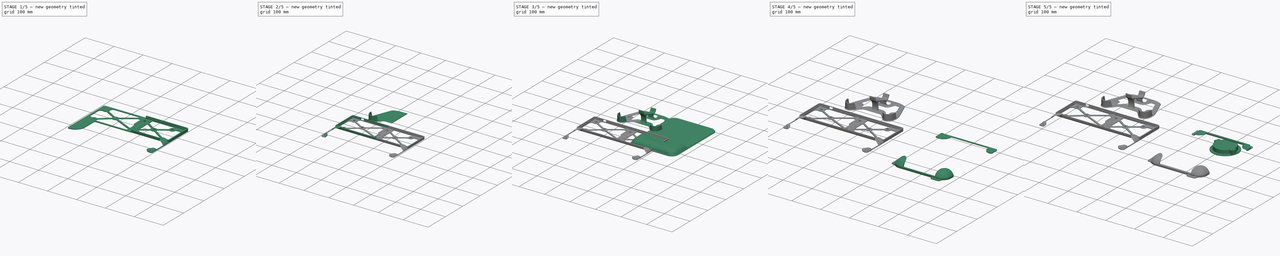
[diagram: build sequence overview — one tinted view per stage of 5, left to right]
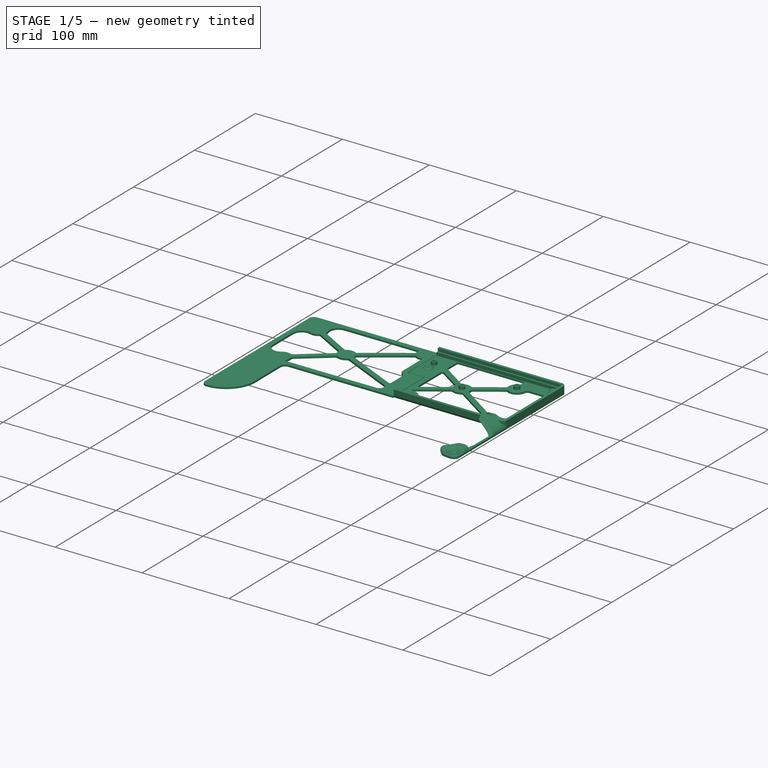
[diagram: stage 1 of 5 — iso view after this stage's code; geometry added in this stage tinted green]
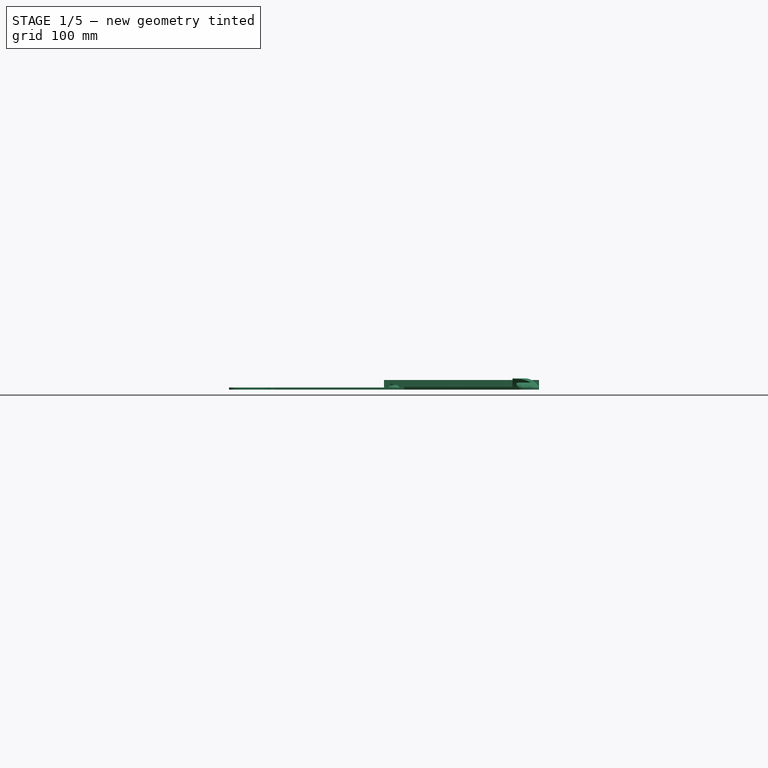
[diagram: stage 1 of 5 — front view after this stage's code; geometry added in this stage tinted green]
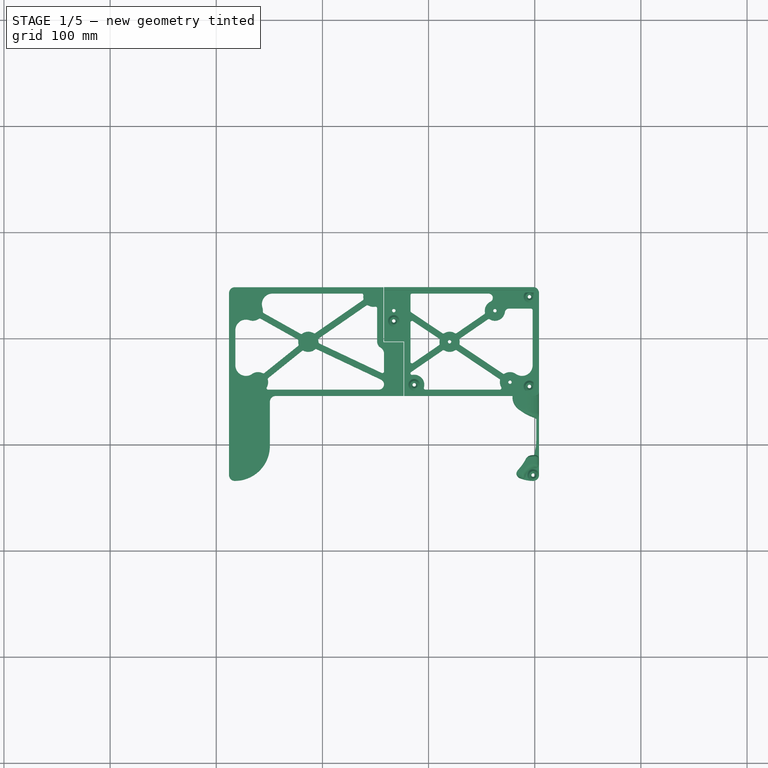
[diagram: stage 1 of 5 — top view after this stage's code; geometry added in this stage tinted green]
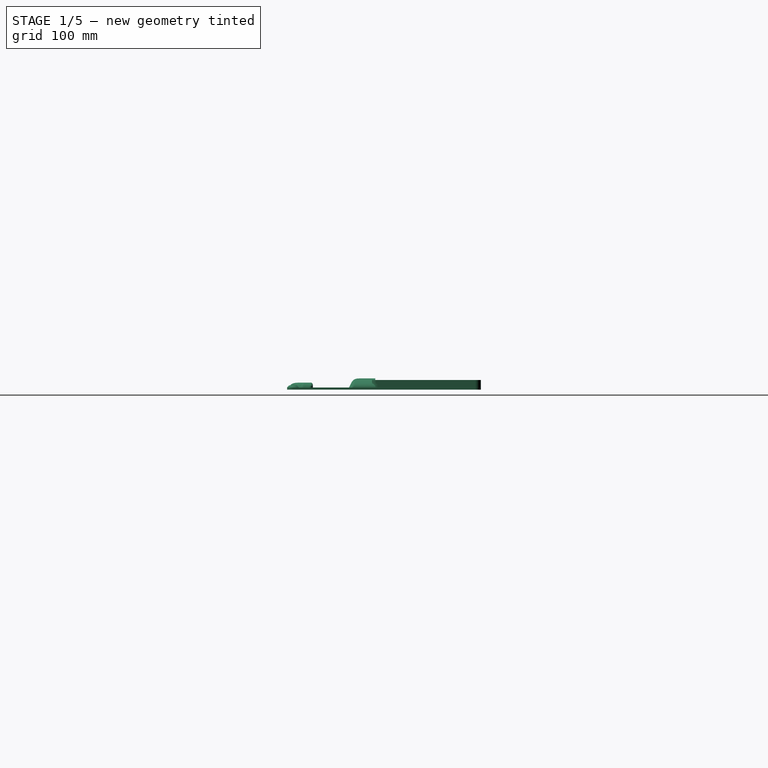
[diagram: stage 1 of 5 — right view after this stage's code; geometry added in this stage tinted green]
FCSTD DOCUMENT  (FreeCAD 0.21R33771 (Git))
Label: gaming-lap-desk
License: All rights reserved
LicenseURL: https://en.wikipedia.org/wiki/All_rights_reserved
objects: Sketcher::SketchObject×68, PartDesign::Pad×19, PartDesign::AdditiveLoft×16, PartDesign::Body×10, PartDesign::Hole×10, PartDesign::Pocket×8, PartDesign::SubShapeBinder×8, PartDesign::LinearPattern×4, Part::FeaturePython×4, Part::Feature×3, PartDesign::Chamfer×3, PartDesign::PolarPattern×2, Part::Cut×2, PartDesign::Plane×2, PartDesign::Fillet×2, PartDesign::Boolean×2, PartDesign::Thickness×1, Spreadsheet::Sheet×1, PartDesign::Line×1, Part::Fillet×1, +4 more types
note: 228 computed .brp shape members not serialized (recipe doc carries the construction recipe); baked Part::Feature solids carry a one-line shape summary decoded from their .brp

FEATURE [PartDesign::Body] Body  label="lap_desk"
  Group = -> [Sketch,Pad,Sketch001,Pocket,Sketch002,Pocket001]
  Origin = -> Origin
  Tip = -> Pocket001
FEATURE [Sketcher::SketchObject] Sketch003
  FullyConstrained = true
  MapMode = 5
  Support = -> [XY_Plane001]
  expr: Constraints[19] = .Constraints.hole_diameter / 2 + 17.2 mm
  expr: Constraints[20] = .Constraints.hole_diameter / 2 + 17.5 mm
  expr: Constraints[21] = .Constraints.hole_diameter / 2 + 69.8 mm
  expr: Constraints[22] = .Constraints.hole_diameter / 2 + 46.5 mm
  expr: Constraints[23] = .Constraints.hole_diameter / 2 + 22.4 mm
  expr: Constraints[24] = .Constraints.hole_diameter / 2 + 131.85 mm
  expr: Constraints[25] = .Constraints.hole_diameter / 2 + 17.2 mm
  expr: Constraints[26] = .Constraints.hole_diameter / 2 + 8.1 mm
  expr: Constraints[27] = .Constraints.hole_diameter / 2 + 8.1 mm
  expr: Constraints[28] = .Constraints.hole_diameter / 2 + 131.85 mm
  expr: Constraints[29] = .Constraints.hole_diameter / 2 + 79.3 mm
  expr: Constraints[30] = .Constraints.hole_diameter / 2 + 46.5 mm
  expr: Constraints[31] = .Constraints.hole_diameter / 2 + 17.2 mm
  expr: Constraints[32] = .Constraints.hole_diameter / 2 + 36.6 mm
  expr: Constraints[33] = .Constraints.hole_diameter / 2 + 8.1 mm
  expr: Constraints[34] = .Constraints.hole_diameter / 2 + 22.4 mm
  sketch-geometry (12):
    g0: LineSegment StartX=-142.5 StartY=0 StartZ=0 EndX=142.5 EndY=0 EndZ=0
    g1: LineSegment StartX=142.5 StartY=0 StartZ=0 EndX=142.5 EndY=-95.5 EndZ=0
    g2: LineSegment StartX=142.5 StartY=-95.5 StartZ=0 EndX=-142.5 EndY=-95.5 EndZ=0
    g3: LineSegment StartX=-142.5 StartY=-95.5 StartZ=0 EndX=-142.5 EndY=0 EndZ=0
    g4: Circle CenterX=-123.575 CenterY=-18.625 CenterZ=0 NormalX=0 NormalY=0 NormalZ=1 AngleXU=0 Radius=1.425
    g5: Circle CenterX=-71.275 CenterY=-47.925 CenterZ=0 NormalX=0 NormalY=0 NormalZ=1 AngleXU=0 Radius=1.425
    g6: Circle CenterX=9.225 CenterY=-18.625 CenterZ=0 NormalX=0 NormalY=0 NormalZ=1 AngleXU=0 Radius=1.425
    g7: Circle CenterX=61.775 CenterY=-47.925 CenterZ=0 NormalX=0 NormalY=0 NormalZ=1 AngleXU=0 Radius=1.425
    g8: Circle CenterX=104.475 CenterY=-18.625 CenterZ=0 NormalX=0 NormalY=0 NormalZ=1 AngleXU=0 Radius=1.425
    g9: Circle CenterX=-118.675 CenterY=-85.975 CenterZ=0 NormalX=0 NormalY=0 NormalZ=1 AngleXU=0 Radius=1.425
    g10: Circle CenterX=9.225 CenterY=-85.975 CenterZ=0 NormalX=0 NormalY=0 NormalZ=1 AngleXU=0 Radius=1.425
    g11: Circle CenterX=118.675 CenterY=-85.975 CenterZ=0 NormalX=0 NormalY=0 NormalZ=1 AngleXU=0 Radius=1.425
  constraints (29):
    c: Coincident(g0,g1)
    c: Coincident(g1,g2)
    c: Coincident(g2,g3)
    c: Coincident(g3,g0)
    c: Horizontal(g0)
    c: Horizontal(g2)
    c: Vertical(g1)
    c: Vertical(g3)
    c: DistanceX(g0,g0) = 285  'length'
    c: DistanceY(g3,g3) = 95.5  'width'
    c: Symmetric(g0,g0,g-1)
    c: Diameter(g4) = 2.85  'hole_diameter'
    c: Equal(g4, g5-g11) x7
    c: DistanceY(g4,g0) = 18.625
    c: DistanceX(g0,g4) = 18.925
    c: DistanceX(g0,g5) = 71.225
    c: DistanceY(g5,g0) = 47.925
    c: DistanceX(g0,g9) = 23.825
    c: DistanceX(g6,g0) = 133.275
    c: DistanceY(g6,g0) = 18.625
    c: DistanceY(g2,g9) = 9.525
    c: DistanceY(g1,g10) = 9.525
    c: DistanceX(g10,g1) = 133.275
    c: DistanceX(g7,g0) = 80.725
    c: DistanceY(g7,g0) = 47.925
    c: DistanceY(g8,g0) = 18.625
    c: DistanceX(g8,g0) = 38.025
    c: DistanceY(g1,g11) = 9.525
    c: DistanceX(g11,g1) = 23.825
FEATURE [PartDesign::Pad] Pad001
  Direction = (0,0,1)
  Length = 1.65
  Length2 = 10
  Profile = -> Sketch003
  ReferenceAxis = -> Sketch003 [N_Axis]
  Type = 0
FEATURE [Sketcher::SketchObject] Sketch006
  FullyConstrained = true
  MapMode = 5
  Support = -> [XY_Plane003]
  sketch-geometry (11):
    g0: LineSegment StartX=-139.25 StartY=0 StartZ=0 EndX=139.25 EndY=0 EndZ=0
    g1: ArcOfCircle CenterX=139.25 CenterY=-4 CenterZ=0 NormalX=0 NormalY=0 NormalZ=1 AngleXU=0 Radius=4 StartAngle=1e-16 EndAngle=1.5708
    g2: LineSegment StartX=143.25 StartY=-4 StartZ=0 EndX=143.25 EndY=-45 EndZ=0
    g3: LineSegment StartX=-143.25 StartY=-45 StartZ=0 EndX=-143.25 EndY=-4 EndZ=0
    g4: ArcOfCircle CenterX=-139.25 CenterY=-4 CenterZ=0 NormalX=0 NormalY=0 NormalZ=1 AngleXU=0 Radius=4 StartAngle=1.5708 EndAngle=3.14159
    g5: LineSegment StartX=-139.25 StartY=0 StartZ=0 EndX=-139.25 EndY=-4 EndZ=0
    g6: LineSegment StartX=-143.25 StartY=-4 StartZ=0 EndX=-139.25 EndY=-4 EndZ=0
    g7: ArcOfCircle CenterX=-8.3e-15 CenterY=351.211 CenterZ=0 NormalX=0 NormalY=0 NormalZ=1 AngleXU=0 Radius=453.211 StartAngle=4.46932 EndAngle=4.95546
    g8: ArcOfCircle CenterX=-98.25 CenterY=-45 CenterZ=0 NormalX=0 NormalY=0 NormalZ=1 AngleXU=0 Radius=45 StartAngle=3.14159 EndAngle=4.46932
    g9: ArcOfCircle CenterX=98.25 CenterY=-45 CenterZ=0 NormalX=0 NormalY=0 NormalZ=1 AngleXU=0 Radius=45 StartAngle=4.95546 EndAngle=6.28319
    g10: GeomPoint X=0 Y=-102 Z=0
  constraints (27):
    c: PointOnObject(g0,g-1)
    c: Tangent(g0,g1) = 1.5708
    c: Tangent(g1,g2) = 1.5708
    c: Tangent(g3,g4) = 1.5708
    c: Coincident(g4,g0)
    c: Vertical(g2)
    c: Vertical(g3)
    c: Coincident(g5,g0)
    c: Coincident(g5,g4)
    c: Coincident(g6,g3)
    c: Coincident(g6,g4)
    c: Vertical(g5)
    c: DistanceX(g3,g1) = 286.5
    c: Symmetric(g0,g0,g-2)
    c: Equal(g4,g1)
    c: Tangent(g3,g8) = 1.5708
    c: Tangent(g7,g8) = -1.5708
    c: Tangent(g7,g9) = -1.5708
    c: Tangent(g2,g9) = 1.5708
    c: Equal(g8,g9)
    c: Radius(g4) = 4
    c: Radius(g8) = 45
    c: PointOnObject(g10,g7)
    c: PointOnObject(g10,g-2)
    c: DistanceY(g10,g-1) = 102
    c: Equal(g3,g2)
    c: DistanceY(g3,g0) = 45
FEATURE [Sketcher::SketchObject] Sketch007
  AttachmentOffset = pos=(0,0,4.9) rot=(0,0,1;0rad)
  FullyConstrained = true
  MapMode = 5
  Placement = pos=(0,0,4.9) rot=(0,0,1;0rad)
  Support = -> [XY_Plane003]
  expr: Constraints[11] = 286.5 mm - 2 * 4.1 mm
  expr: Constraints[24] = 45 mm - 4.1 mm - 3 mm
  expr: Constraints[26] = 102 mm - 4.1 mm - 3 mm
  sketch-geometry (11):
    g0: LineSegment StartX=-135.15 StartY=-3 StartZ=0 EndX=135.15 EndY=-3 EndZ=0
    g1: ArcOfCircle CenterX=135.15 CenterY=-7 CenterZ=0 NormalX=0 NormalY=0 NormalZ=1 AngleXU=0 Radius=4 StartAngle=2e-16 EndAngle=1.5708
    g2: LineSegment StartX=139.15 StartY=-7 StartZ=0 EndX=139.15 EndY=-40.9 EndZ=0
    g3: LineSegment StartX=-139.15 StartY=-40.9 StartZ=0 EndX=-139.15 EndY=-7 EndZ=0
    g4: ArcOfCircle CenterX=-135.15 CenterY=-7 CenterZ=0 NormalX=0 NormalY=0 NormalZ=1 AngleXU=0 Radius=4 StartAngle=1.5708 EndAngle=3.14159
    g5: LineSegment StartX=-135.15 StartY=-3 StartZ=0 EndX=-135.15 EndY=-7 EndZ=0
    g6: LineSegment StartX=-139.15 StartY=-7 StartZ=0 EndX=-135.15 EndY=-7 EndZ=0
    g7: ArcOfCircle CenterX=-7.42e-14 CenterY=322.443 CenterZ=0 NormalX=0 NormalY=0 NormalZ=1 AngleXU=0 Radius=420.343 StartAngle=4.45884 EndAngle=4.96593
    g8: ArcOfCircle CenterX=-94.15 CenterY=-40.9 CenterZ=0 NormalX=0 NormalY=0 NormalZ=1 AngleXU=0 Radius=45 StartAngle=3.14159 EndAngle=4.45884
    g9: ArcOfCircle CenterX=94.15 CenterY=-40.9 CenterZ=0 NormalX=0 NormalY=0 NormalZ=1 AngleXU=0 Radius=45 StartAngle=4.96593 EndAngle=6.28319
    g10: GeomPoint X=0 Y=-97.9 Z=0
  constraints (27):
    c: Tangent(g0,g1) = 1.5708
    c: Tangent(g1,g2) = 1.5708
    c: Tangent(g3,g4) = 1.5708
    c: Coincident(g4,g0)
    c: Vertical(g2)
    c: Vertical(g3)
    c: Coincident(g5,g0)
    c: Coincident(g5,g4)
    c: Coincident(g6,g3)
    c: Coincident(g6,g4)
    c: Vertical(g5)
    c: DistanceX(g3,g1) = 278.3
    c: Symmetric(g0,g0,g-2)
    c: Equal(g4,g1)
    c: Tangent(g3,g8) = 1.5708
    c: Tangent(g7,g8) = -1.5708
    c: Tangent(g7,g9) = -1.5708
    c: Tangent(g2,g9) = 1.5708
    c: Equal(g8,g9)
    c: Radius(g4) = 4
    c: Radius(g8) = 45
    c: PointOnObject(g10,g7)
    c: PointOnObject(g10,g-2)
    c: Equal(g3,g2)
    c: DistanceY(g3,g0) = 37.9
    c: DistanceY(g0,g-1) = 3
    c: DistanceY(g10,g0) = 94.9
FEATURE [Sketcher::SketchObject] Sketch008
  AttachmentOffset = pos=(0,0,9.8) rot=(0,0,1;0rad)
  FullyConstrained = true
  MapMode = 5
  Placement = pos=(0,0,9.8) rot=(0,0,1;0rad)
  Support = -> [XY_Plane003]
  expr: Constraints[11] = 255 mm
  expr: Constraints[24] = 45 mm - 4.1 mm - 3 mm
  expr: Constraints[26] = 80
  sketch-geometry (11):
    g0: LineSegment StartX=-123.5 StartY=-7 StartZ=0 EndX=123.5 EndY=-7 EndZ=0
    g1: ArcOfCircle CenterX=123.5 CenterY=-11 CenterZ=0 NormalX=0 NormalY=0 NormalZ=1 AngleXU=0 Radius=4 StartAngle=0 EndAngle=1.5708
    g2: LineSegment StartX=127.5 StartY=-11 StartZ=0 EndX=127.5 EndY=-44.9 EndZ=0
    g3: LineSegment StartX=-127.5 StartY=-44.9 StartZ=0 EndX=-127.5 EndY=-11 EndZ=0
    g4: ArcOfCircle CenterX=-123.5 CenterY=-11 CenterZ=0 NormalX=0 NormalY=0 NormalZ=1 AngleXU=0 Radius=4 StartAngle=1.5708 EndAngle=3.14159
    g5: LineSegment StartX=-123.5 StartY=-7 StartZ=0 EndX=-123.5 EndY=-11 EndZ=0
    g6: LineSegment StartX=-127.5 StartY=-11 StartZ=0 EndX=-123.5 EndY=-11 EndZ=0
    g7: ArcOfCircle CenterX=-2.11e-14 CenterY=341.87 CenterZ=0 NormalX=0 NormalY=0 NormalZ=1 AngleXU=0 Radius=428.87 StartAngle=4.46545 EndAngle=4.95933
    g8: ArcOfCircle CenterX=-97.5 CenterY=-44.9 CenterZ=0 NormalX=0 NormalY=0 NormalZ=1 AngleXU=0 Radius=30 StartAngle=3.14159 EndAngle=4.46545
    g9: ArcOfCircle CenterX=97.5 CenterY=-44.9 CenterZ=0 NormalX=0 NormalY=0 NormalZ=1 AngleXU=0 Radius=30 StartAngle=4.95933 EndAngle=6.28319
    g10: GeomPoint X=0 Y=-87 Z=0
  constraints (27):
    c: Tangent(g0,g1) = 1.5708
    c: Tangent(g1,g2) = 1.5708
    c: Tangent(g3,g4) = 1.5708
    c: Coincident(g4,g0)
    c: Vertical(g2)
    c: Vertical(g3)
    c: Coincident(g5,g0)
    c: Coincident(g5,g4)
    c: Coincident(g6,g3)
    c: Coincident(g6,g4)
    c: Vertical(g5)
    c: DistanceX(g3,g1) = 255
    c: Symmetric(g0,g0,g-2)
    c: Equal(g4,g1)
    c: Tangent(g3,g8) = 1.5708
    c: Tangent(g7,g8) = -1.5708
    c: Tangent(g7,g9) = -1.5708
    c: Tangent(g2,g9) = 1.5708
    c: Equal(g8,g9)
    c: Radius(g4) = 4
    c: Radius(g8) = 30
    c: PointOnObject(g10,g7)
    c: PointOnObject(g10,g-2)
    c: Equal(g3,g2)
    c: DistanceY(g3,g0) = 37.9
    c: DistanceY(g0,g-1) = 7
    c: DistanceY(g10,g0) = 80
FEATURE [PartDesign::AdditiveLoft] AdditiveLoft
  Closed = false
  Profile = -> Sketch006
  Ruled = false
  Sections = -> [Sketch007,Sketch008]
FEATURE [PartDesign::SubShapeBinder] Binder004
  BindCopyOnChange = 0
  BindMode = 0
  ClaimChildren = false
  Context = -> Body008 [Binder004.]
  Fuse = false
  MakeFace = true
  OffsetFill = false
  OffsetIntersection = false
  OffsetJoinType = 0
  OffsetOpenResult = false
  PartialLoad = false
  Relative = true
  Support = -> [Body001]
  _Version = 2
FEATURE [PartDesign::SubShapeBinder] Binder005
  BindCopyOnChange = 0
  BindMode = 0
  ClaimChildren = false
  Fuse = false
  MakeFace = true
  OffsetFill = false
  OffsetIntersection = false
  OffsetJoinType = 0
  OffsetOpenResult = false
  PartialLoad = false
  Relative = true
  Support = -> [Body003]
  _Version = 2
FEATURE [Sketcher::SketchObject] Sketch046
  ExternalGeometry = -> [Binder004,Binder005]
  FullyConstrained = true
  MapMode = 5
  Support = -> [XY_Plane018]
  expr: Constraints[104] = .Constraints.keyboard_pad_radius
  expr: Constraints[121] = .Constraints.edge_width
  expr: Constraints[131] = .Constraints.edge_width
  expr: Constraints[132] = .Constraints.edge_width
  expr: Constraints[210] = .Constraints.edge_to_hole - 0.5 mm
  sketch-geometry (89):
    g0: LineSegment StartX=-142 StartY=-155 StartZ=0 EndX=-142 EndY=-250.5 EndZ=0
    g1: LineSegment StartX=-123.55 StartY=-203.25 StartZ=0 EndX=-123.55 EndY=-254 EndZ=0
    g2: LineSegment StartX=-123.55 StartY=-254 StartZ=0 EndX=-244 EndY=-254 EndZ=0
    g3: LineSegment StartX=-249.5 StartY=-259.5 StartZ=0 EndX=-249.5 EndY=-301 EndZ=0
    g4: LineSegment StartX=-288 StartY=-328.5 StartZ=0 EndX=-288 EndY=-157 EndZ=0
    g5: LineSegment StartX=-282.5 StartY=-151.5 StartZ=0 EndX=-142.5 EndY=-151.5 EndZ=0
    g6: ArcOfCircle CenterX=-244 CenterY=-259.5 CenterZ=0 NormalX=0 NormalY=0 NormalZ=1 AngleXU=0 Radius=5.5 StartAngle=1.5708 EndAngle=3.14159
    g7: ArcOfCircle CenterX=-282.5 CenterY=-328.5 CenterZ=0 NormalX=0 NormalY=0 NormalZ=1 AngleXU=0 Radius=5.5 StartAngle=3.14159 EndAngle=4.71239
    g8: ArcOfCircle CenterX=-282.5 CenterY=-157 CenterZ=0 NormalX=0 NormalY=0 NormalZ=1 AngleXU=0 Radius=5.5 StartAngle=1.5708 EndAngle=3.14159
    g9: Circle CenterX=-282.5 CenterY=-328.5 CenterZ=0 NormalX=0 NormalY=0 NormalZ=1 AngleXU=0 Radius=5.5
    g10: Circle CenterX=-265.575 CenterY=-173.625 CenterZ=0 NormalX=0 NormalY=0 NormalZ=1 AngleXU=0 Radius=3.225
    g11: Circle CenterX=-260.675 CenterY=-240.975 CenterZ=0 NormalX=0 NormalY=0 NormalZ=1 AngleXU=0 Radius=3.225
    g12: Circle CenterX=-213.275 CenterY=-202.925 CenterZ=0 NormalX=0 NormalY=0 NormalZ=1 AngleXU=0 Radius=3.225
    g13: Circle CenterX=-132.775 CenterY=-240.975 CenterZ=0 NormalX=0 NormalY=0 NormalZ=1 AngleXU=0 Radius=3.225
    g14: GeomPoint X=-142 Y=-202.75 Z=0
    g15: ArcOfCircle CenterX=-265.575 CenterY=-173.625 CenterZ=0 NormalX=0 NormalY=0 NormalZ=1 AngleXU=0 Radius=9.525 StartAngle=4.37708 EndAngle=5.35208
    g16: ArcOfCircle CenterX=-213.275 CenterY=-202.925 CenterZ=0 NormalX=0 NormalY=0 NormalZ=1 AngleXU=0 Radius=9.525 StartAngle=3.05137 EndAngle=3.39756
    g17: ArcOfCircle CenterX=-260.675 CenterY=-240.975 CenterZ=0 NormalX=0 NormalY=0 NormalZ=1 AngleXU=0 Radius=9.525 StartAngle=5.75828 EndAngle=6.53916
    g18: Circle CenterX=-152 CenterY=-160.5 CenterZ=0 NormalX=0 NormalY=0 NormalZ=1 AngleXU=0 Radius=5.5
    g19: Circle CenterX=-132.775 CenterY=-222.75 CenterZ=0 NormalX=0 NormalY=0 NormalZ=1 AngleXU=0 Radius=5.5
    g20: Circle CenterX=-279 CenterY=-160.5 CenterZ=0 NormalX=0 NormalY=0 NormalZ=1 AngleXU=0 Radius=5.5
    g21: Circle CenterX=-279 CenterY=-245 CenterZ=0 NormalX=0 NormalY=0 NormalZ=1 AngleXU=0 Radius=5.5
    g22: LineSegment StartX=-279 StartY=-160.5 StartZ=0 EndX=-279 EndY=-155 EndZ=0
    g23: LineSegment StartX=-279 StartY=-160.5 StartZ=0 EndX=-284.5 EndY=-160.5 EndZ=0
    g24: LineSegment StartX=-279 StartY=-245 StartZ=0 EndX=-279 EndY=-250.5 EndZ=0
    g25: LineSegment StartX=-152 StartY=-160.5 StartZ=0 EndX=-146.5 EndY=-160.5 EndZ=0
    g26: LineSegment StartX=-132.775 StartY=-222.75 StartZ=0 EndX=-132.775 EndY=-217.25 EndZ=0
    g27: LineSegment StartX=-265.575 StartY=-173.625 StartZ=0 EndX=-213.275 EndY=-202.925 EndZ=0
    g28: LineSegment StartX=-260.675 StartY=-240.975 StartZ=0 EndX=-213.275 EndY=-202.925 EndZ=0
    g29: ArcOfCircle CenterX=-247.036 CenterY=-167.5 CenterZ=0 NormalX=0 NormalY=0 NormalZ=1 AngleXU=0 Radius=10 StartAngle=1.5708 EndAngle=3.46068
    g30: LineSegment StartX=-247.036 StartY=-157.5 StartZ=0 EndX=-162.922 EndY=-157.5 EndZ=0
    g31: LineSegment StartX=-255.328 StartY=-175.927 StartZ=0 EndX=-220.589 EndY=-195.388 EndZ=0
    g32: LineSegment StartX=-148.5 StartY=-171.342 StartZ=0 EndX=-148.5 EndY=-202.75 EndZ=0
    g33: ArcOfCircle CenterX=-142 CenterY=-202.75 CenterZ=0 NormalX=0 NormalY=0 NormalZ=1 AngleXU=0 Radius=6.5 StartAngle=3.14159 EndAngle=4.18879
    g34: ArcOfCircle CenterX=-148.5 CenterY=-214.008 CenterZ=0 NormalX=0 NormalY=0 NormalZ=1 AngleXU=0 Radius=6.5 StartAngle=-1.8e-15 EndAngle=1.0472
    g35: LineSegment StartX=-146.939 StartY=-248 StartZ=0 EndX=-251.134 EndY=-248 EndZ=0
    g36: ArcOfCircle CenterX=-251.134 CenterY=-246.5 CenterZ=0 NormalX=0 NormalY=0 NormalZ=1 AngleXU=0 Radius=1.5 StartAngle=2.61668 EndAngle=4.71239
    g37: LineSegment StartX=-202.893 StartY=-204.514 StartZ=0 EndX=-144.141 EndY=-232.284 EndZ=0
    g38: ArcOfCircle CenterX=-143.5 CenterY=-230.928 CenterZ=0 NormalX=0 NormalY=0 NormalZ=1 AngleXU=0 Radius=1.5 StartAngle=4.27084 EndAngle=6.28319
    g39: LineSegment StartX=-205.457 StartY=-209.938 StartZ=0 EndX=-144.828 EndY=-238.596 EndZ=0
    g40: ArcOfCircle CenterX=-146.939 CenterY=-243.061 CenterZ=0 NormalX=0 NormalY=0 NormalZ=1 AngleXU=0 Radius=4.93883 StartAngle=4.71239 EndAngle=7.41244
    g41: LineSegment StartX=-142 StartY=-214.008 StartZ=0 EndX=-142 EndY=-230.928 EndZ=0
    g42: ArcOfCircle CenterX=-152 CenterY=-160.5 CenterZ=0 NormalX=0 NormalY=0 NormalZ=1 AngleXU=0 Radius=9.525 StartAngle=3.00511 EndAngle=3.32674
    g43: LineSegment StartX=-142.5 StartY=-151.5 StartZ=0 EndX=-142.5 EndY=-203.25 EndZ=0
    g44: LineSegment StartX=-213.275 StartY=-202.925 StartZ=0 EndX=-132.775 EndY=-240.975 EndZ=0
    g45: LineSegment StartX=-258.261 StartY=-181.162 StartZ=0 EndX=-223.522 EndY=-200.623 EndZ=0
    g46: LineSegment StartX=-223.002 StartY=-206.886 StartZ=0 EndX=-254.704 EndY=-232.335 EndZ=0
    g47: LineSegment StartX=-219.246 StartY=-211.565 StartZ=0 EndX=-250.948 EndY=-237.014 EndZ=0
    g48: LineSegment StartX=-282 StartY=-192.063 StartZ=0 EndX=-282 EndY=-225.07 EndZ=0
    g49: ArcOfCircle CenterX=-272 CenterY=-225.07 CenterZ=0 NormalX=0 NormalY=0 NormalZ=1 AngleXU=0 Radius=10 StartAngle=3.14159 EndAngle=5.33115
    g50: ArcOfCircle CenterX=-272 CenterY=-192.063 CenterZ=0 NormalX=0 NormalY=0 NormalZ=1 AngleXU=0 Radius=10 StartAngle=1.23548 EndAngle=3.14159
    g51: LineSegment StartX=-206.708 StartY=-194.729 StartZ=0 EndX=-161.983 EndY=-163.763 EndZ=0
    g52: LineSegment StartX=-203.292 StartY=-199.662 StartZ=0 EndX=-158.567 EndY=-168.696 EndZ=0
    g53: LineSegment StartX=-213.275 StartY=-202.925 StartZ=0 EndX=-152 EndY=-160.5 EndZ=0
    g54: GeomPoint X=-204.175 Y=-207.226 Z=0
    g55: ArcOfCircle CenterX=-260.675 CenterY=-240.975 CenterZ=0 NormalX=0 NormalY=0 NormalZ=1 AngleXU=0 Radius=9.525 StartAngle=1.09685 EndAngle=2.18956
    g56: LineSegment StartX=-260.675 StartY=-240.975 StartZ=0 EndX=-260.675 EndY=-250.5 EndZ=0
    g57: ArcOfCircle CenterX=-265.575 CenterY=-173.625 CenterZ=0 NormalX=0 NormalY=0 NormalZ=1 AngleXU=0 Radius=9.525 StartAngle=6.19296 EndAngle=6.60227
    g58: ArcOfCircle CenterX=-152 CenterY=-160.5 CenterZ=0 NormalX=0 NormalY=0 NormalZ=1 AngleXU=0 Radius=9.525 StartAngle=4.16762 EndAngle=4.8948
    g59: ArcOfCircle CenterX=-162.922 CenterY=-159 CenterZ=0 NormalX=0 NormalY=0 NormalZ=1 AngleXU=0 Radius=1.5 StartAngle=6.14671 EndAngle=7.85398
    g60: ArcOfCircle CenterX=-150 CenterY=-171.342 CenterZ=0 NormalX=0 NormalY=0 NormalZ=1 AngleXU=0 Radius=1.5 StartAngle=1e-15 EndAngle=1.75321
    g61: ArcOfCircle CenterX=-213.275 CenterY=-202.925 CenterZ=0 NormalX=0 NormalY=0 NormalZ=1 AngleXU=0 Radius=9.525 StartAngle=4.23844 EndAngle=5.4212
    g62: ArcOfCircle CenterX=-213.275 CenterY=-202.925 CenterZ=0 NormalX=0 NormalY=0 NormalZ=1 AngleXU=0 Radius=9.525 StartAngle=6.26208 EndAngle=6.46833
    g63: ArcOfCircle CenterX=-213.275 CenterY=-202.925 CenterZ=0 NormalX=0 NormalY=0 NormalZ=1 AngleXU=0 Radius=9.525 StartAngle=1.02603 EndAngle=2.21049
    g64: ArcOfCircle CenterX=-219.856 CenterY=-194.08 CenterZ=0 NormalX=0 NormalY=0 NormalZ=1 AngleXU=0 Radius=1.5 StartAngle=4.20173 EndAngle=5.35208
    g65: ArcOfCircle CenterX=-224.255 CenterY=-201.932 CenterZ=0 NormalX=0 NormalY=0 NormalZ=1 AngleXU=0 Radius=1.5 StartAngle=6.19296 EndAngle=7.34332
    g66: ArcOfCircle CenterX=-223.941 CenterY=-205.716 CenterZ=0 NormalX=0 NormalY=0 NormalZ=1 AngleXU=0 Radius=1.5 StartAngle=5.3888 EndAngle=6.53916
    g67: ArcOfCircle CenterX=-218.307 CenterY=-212.735 CenterZ=0 NormalX=0 NormalY=0 NormalZ=1 AngleXU=0 Radius=1.5 StartAngle=1.09685 EndAngle=2.24721
    g68: ArcOfCircle CenterX=-206.098 CenterY=-211.294 CenterZ=0 NormalX=0 NormalY=0 NormalZ=1 AngleXU=0 Radius=1.5 StartAngle=1.12925 EndAngle=2.27961
    g69: ArcOfCircle CenterX=-202.252 CenterY=-203.158 CenterZ=0 NormalX=0 NormalY=0 NormalZ=1 AngleXU=0 Radius=1.5 StartAngle=3.12049 EndAngle=4.27084
    g70: ArcOfCircle CenterX=-207.562 CenterY=-193.496 CenterZ=0 NormalX=0 NormalY=0 NormalZ=1 AngleXU=0 Radius=1.5 StartAngle=4.16762 EndAngle=5.31798
    g71: ArcOfCircle CenterX=-202.438 CenterY=-200.895 CenterZ=0 NormalX=0 NormalY=0 NormalZ=1 AngleXU=0 Radius=1.5 StartAngle=2.17638 EndAngle=3.32674
    g72: LineSegment StartX=-202.893 StartY=-204.514 StartZ=0 EndX=-205.457 EndY=-209.938 EndZ=0
    g73: ArcOfCircle CenterX=-258.994 CenterY=-182.47 CenterZ=0 NormalX=0 NormalY=0 NormalZ=1 AngleXU=0 Radius=1.5 StartAngle=1.06013 EndAngle=2.21049
    g74: ArcOfCircle CenterX=-254.595 CenterY=-174.618 CenterZ=0 NormalX=0 NormalY=0 NormalZ=1 AngleXU=0 Radius=1.5 StartAngle=3.05137 EndAngle=4.20173
    g75: ArcOfCircle CenterX=-162.837 CenterY=-162.53 CenterZ=0 NormalX=0 NormalY=0 NormalZ=1 AngleXU=0 Radius=1.5 StartAngle=5.31798 EndAngle=6.46833
    g76: ArcOfCircle CenterX=-157.713 CenterY=-169.929 CenterZ=0 NormalX=0 NormalY=0 NormalZ=1 AngleXU=0 Radius=1.5 StartAngle=1.02603 EndAngle=2.17638
    g77: ArcOfCircle CenterX=-250.009 CenterY=-238.184 CenterZ=0 NormalX=0 NormalY=0 NormalZ=1 AngleXU=0 Radius=1.5 StartAngle=2.24721 EndAngle=3.39756
    g78: ArcOfCircle CenterX=-255.643 CenterY=-231.165 CenterZ=0 NormalX=0 NormalY=0 NormalZ=1 AngleXU=0 Radius=1.5 StartAngle=4.23844 EndAngle=5.3888
    g79: LineSegment StartX=-203.292 StartY=-199.662 StartZ=0 EndX=-206.708 EndY=-194.729 EndZ=0
    g80: LineSegment StartX=-220.589 StartY=-195.388 StartZ=0 EndX=-223.522 EndY=-200.623 EndZ=0
    g81: LineSegment StartX=-223.002 StartY=-206.886 StartZ=0 EndX=-219.246 EndY=-211.565 EndZ=0
    g82: GeomPoint X=-222.056 Y=-198.006 Z=0
    g83: GeomPoint X=-221.124 Y=-209.226 Z=0
    g84: GeomPoint X=-205 Y=-197.196 Z=0
    g85: LineSegment StartX=-146.939 StartY=-243.061 StartZ=0 EndX=-142 EndY=-243.061 EndZ=0
    g86: LineSegment StartX=-142.5 StartY=-203.25 StartZ=0 EndX=-123.55 EndY=-203.25 EndZ=0
    g87: LineSegment StartX=-282.5 StartY=-328.5 StartZ=0 EndX=-282.5 EndY=-334 EndZ=0
    g88: ArcOfCircle CenterX=-282.5 CenterY=-301 CenterZ=0 NormalX=0 NormalY=0 NormalZ=1 AngleXU=0 Radius=33 StartAngle=4.71239 EndAngle=6.28319
  constraints (212):
    c: PointOnObject(g0,g-5)
    c: Vertical(g0)
    c: Symmetric(g-4,g-3,g0)
    c: Vertical(g1)
    c: Coincident(g1,g2)
    c: Horizontal(g2)
    c: Vertical(g3)
    c: Vertical(g4)
    c: Horizontal(g5)
    c: Tangent(g2,g6) = -1.5708
    c: Tangent(g3,g6) = -1.5708
    c: Tangent(g4,g8) = 1.5708
    c: Tangent(g5,g8) = 1.5708
    c: Tangent(g7,g4) = 1.5708
    c: Coincident(g9,g7)
    c: Radius(g9) = 5.5
    c: Equal(g7,g8)
    c: DistanceY(g-4,g5) = 3.5
    c: DistanceX(g4,g-4) = 3.5
    c: DistanceX(g4,g-10) = 2.75
    c: Coincident(g10,g-6)
    c: Coincident(g11,g-8)
    c: Coincident(g12,g-7)
    c: Coincident(g13,g-9)
    c: Diameter(g10) = 6.45
    c: Equal(g10,g12)
    c: Equal(g10,g11)
    c: Equal(g10,g13)
    c: Equal(g7,g6)
    c: DistanceY(g1,g0) = 3.5
    c: Symmetric(g0,g0,g14)
    c: Coincident(g15,g10)
    c: Coincident(g16,g12)
    c: Coincident(g17,g11)
    c: Equal(g9,g21)
    c: Equal(g9,g20)
    c: Equal(g9,g18)
    c: Equal(g9,g19)
    c: Horizontal(g20,g18)
    c: Vertical(g20,g21)
    c: Coincident(g22,g20)
    c: PointOnObject(g22,g20)
    c: Vertical(g22)
    c: Coincident(g23,g20)
    c: PointOnObject(g23,g20)
    c: Horizontal(g23)
    c: PointOnObject(g22,g-3)
    c: PointOnObject(g23,g-4)
    c: Coincident(g24,g21)
    c: PointOnObject(g24,g21)
    c: Vertical(g24)
    c: PointOnObject(g24,g-5)
    c: Coincident(g25,g18)
    c: PointOnObject(g25,g18)
    c: Horizontal(g25)
    c: DistanceX(g25,g5) = 4
    c: Coincident(g26,g19)
    c: PointOnObject(g26,g19)
    c: Vertical(g26)
    c: DistanceY(g26,g1) = 14
    c: Coincident(g27,g15)
    c: Coincident(g27,g16)
    c: Coincident(g28,g17)
    c: Coincident(g28,g16)
    c: Horizontal(g30)
    c: Vertical(g32)
    c: Tangent(g32,g33) = -1.5708
    c: Tangent(g33,g34) = 1.5708
    c: PointOnObject(g34,g0)
    c: Horizontal(g35)
    c: Tangent(g35,g36) = 1.5708
    c: Tangent(g37,g38) = -1.5708
    c: Tangent(g39,g40) = 1.5708
    c: Vertical(g41)
    c: Tangent(g41,g34) = 1.5708
    c: Tangent(g41,g38) = 1.5708
    c: Coincident(g43,g5)
    c: Vertical(g43)
    c: Coincident(g44,g16)
    c: Vertical(g48)
    c: Tangent(g48,g49) = -1.5708
    c: Tangent(g50,g48) = -1.5708
    c: Coincident(g53,g16)
    c: Coincident(g53,g42)
    c: Coincident(g42,g18)
    c: Coincident(g44,g13)
    c: Vertical(g19,g13)
    c: Parallel(g27,g31)
    c: Parallel(g27,g45)
    c: Parallel(g28,g46)
    c: Parallel(g28,g47)
    c: Parallel(g53,g51)
    c: Parallel(g53,g52)
    c: Parallel(g44,g37)
    c: Parallel(g44,g39)
    c: Equal(g15,g17)
    c: Equal(g15,g16)
    c: Equal(g15,g42)
    c: Equal(g17,g55)
    c: Coincident(g17,g55)
    c: Coincident(g56,g17)
    c: PointOnObject(g56,g-5)
    c: Vertical(g56)
    c: Distance(g56) = 9.525  'keyboard_pad_radius'
    c: Radius(g17) = 9.525
    c: Tangent(g55,g49) = 1.5708
    c: Tangent(g17,g36) = 1.5708
    c: Equal(g15,g57)
    c: Coincident(g15,g57)
    c: Equal(g42,g58)
    c: Coincident(g42,g58)
    c: Tangent(g29,g57) = 1.5708
    c: Tangent(g29,g30) = 1.5708
    c: Tangent(g15,g50) = 1.5708
    c: Tangent(g30,g59) = 1.5708
    c: Tangent(g42,g59) = 1.5708
    c: Tangent(g58,g60) = 1.5708
    c: Tangent(g32,g60) = 1.5708
    c: Equal(g50,g29)
    c: Equal(g59,g60)
    c: DistanceY(g30,g5) = 6  'edge_width'
    c: DistanceX(g4,g48) = 6
    c: Equal(g50,g49)
    c: Equal(g16,g61)
    c: Coincident(g16,g61)
    c: Equal(g61,g62)
    c: Coincident(g61,g62)
    c: Equal(g62,g63)
    c: Coincident(g62,g63)
    c: PointOnObject(g54,g44)
    c: Tangent(g40,g35) = 1.5708
    c: DistanceY(g1,g35) = 6
    c: DistanceX(g32,g5) = 6
    c: Equal(g33,g34)
    c: Tangent(g31,g64) = -1.5708
    c: Tangent(g63,g64) = 1.5708
    c: Tangent(g45,g65) = 1.5708
    c: Tangent(g16,g65) = 1.5708
    c: Tangent(g16,g66) = 1.5708
    c: Tangent(g46,g66) = 1.5708
    c: Tangent(g47,g67) = -1.5708
    c: Tangent(g61,g67) = 1.5708
    c: Tangent(g61,g68) = 1.5708
    c: Tangent(g39,g68) = 1.5708
    c: Tangent(g37,g69) = -1.5708
    c: Tangent(g62,g69) = 1.5708
    c: Tangent(g51,g70) = -1.5708
    c: Tangent(g63,g70) = 1.5708
    c: Equal(g64, g65-g70) x6
    c: Tangent(g62,g71) = 1.5708
    c: Tangent(g52,g71) = 1.5708
    c: Equal(g64,g71)
    c: Coincident(g72,g37)
    c: Coincident(g72,g39)
    c: Symmetric(g37,g39,g54)
    c: Tangent(g15,g73) = 1.5708
    c: Tangent(g45,g73) = 1.5708
    c: Tangent(g57,g74) = 1.5708
    c: Tangent(g31,g74) = -1.5708
    c: Tangent(g42,g75) = 1.5708
    c: Tangent(g51,g75) = -1.5708
    c: Tangent(g58,g76) = 1.5708
    c: Tangent(g52,g76) = 1.5708
    c: Tangent(g17,g77) = 1.5708
    c: Tangent(g47,g77) = -1.5708
    c: Tangent(g55,g78) = 1.5708
    c: Tangent(g46,g78) = 1.5708
    c: Equal(g74, g75-g78) x4
    c: Equal(g74,g73)
    c: Radius(g74) = 1.5
    c: Equal(g74,g38)
    c: Coincident(g79,g52)
    c: Coincident(g79,g51)
    c: Coincident(g80,g31)
    c: Coincident(g80,g45)
    c: Coincident(g81,g46)
    c: Coincident(g81,g47)
    c: Equal(g74,g64)
    c: Symmetric(g31,g45,g82)
    c: PointOnObject(g82,g27)
    c: PointOnObject(g83,g28)
    c: PointOnObject(g84,g53)
    c: Symmetric(g46,g47,g83)
    c: Symmetric(g52,g51,g84)
    c: Equal(g80,g81)
    c: Equal(g80,g72)
    c: Equal(g80,g79)
    c: Distance(g80) = 6
    c: Equal(g75,g59)
    c: Coincident(g85,g40)
    c: PointOnObject(g85,g40)
    c: Horizontal(g85)
    c: PointOnObject(g85,g0)
    c: Equal(g77,g36)
    c: Radius(g49) = 10
    c: Coincident(g33,g14)
    c: Coincident(g86,g43)
    c: Coincident(g86,g1)
    c: Horizontal(g86)
    c: DistanceY(g43,g33) = 0.5
    c: DistanceX(g43,g33) = 0.5
    c: DistanceX(g5,g-11) = 9.725  'edge_to_hole'
    c: DistanceX(g13,g1) = 9.225
    c: Coincident(g87,g7)
    c: PointOnObject(g87,g7)
    c: Vertical(g87)
    c: PointOnObject(g87,g9)
    c: Tangent(g88,g3) = 1.5708
    c: Tangent(g88,g7) = -1.5708
    c: Vertical(g7,g7)
    c: DistanceX(g-5,g3) = 35
    c: DistanceY(g7,g2) = 80
FEATURE [PartDesign::Pad] Pad009
  Direction = (0,0,1)
  Length = 2
  Length2 = 10
  Profile = -> Sketch046
  ReferenceAxis = -> Sketch046 [N_Axis]
  Type = 0
FEATURE [PartDesign::Body] Body008  label="keyboard_holder_left"
  Group = -> [Binder004,Binder005,Sketch046,Pad009,Sketch047,Pad010,Hole006,Sketch048,Pad011,Chamfer,Sketch049,Pad012,Sketch050,Hole007,Pad013,Sketch051,Sketch052,Sketch053,Sketch054,AdditiveLoft013,Sketch058,Pocket007,Sketch059,Pocket008,Sketch060,Sketch061,Sketch062,AdditiveLoft014,Chamfer001,Boolean]
  Origin = -> Origin018
  Tip = -> Boolean
FEATURE [PartDesign::SubShapeBinder] Binder006
  BindCopyOnChange = 0
  BindMode = 0
  ClaimChildren = false
  Context = -> Body009 [Binder006.]
  Fuse = false
  MakeFace = true
  OffsetFill = false
  OffsetIntersection = false
  OffsetJoinType = 0
  OffsetOpenResult = false
  PartialLoad = false
  Relative = true
  Support = -> [Body001]
  _Version = 2
FEATURE [PartDesign::SubShapeBinder] Binder007
  BindCopyOnChange = 0
  BindMode = 0
  ClaimChildren = false
  Context = -> Body009 [Binder007.]
  Fuse = false
  MakeFace = true
  OffsetFill = false
  OffsetIntersection = false
  OffsetJoinType = 0
  OffsetOpenResult = false
  PartialLoad = false
  Relative = true
  Support = -> [Body003]
  _Version = 2
FEATURE [Sketcher::SketchObject] Sketch063
  ExternalGeometry = -> [Binder006,Binder007]
  FullyConstrained = true
  MapMode = 5
  Support = -> [XY_Plane019]
  sketch-geometry (82):
    g0: LineSegment StartX=-142 StartY=-151.5 StartZ=0 EndX=-1.5 EndY=-151.5 EndZ=0
    g1: ArcOfCircle CenterX=-1.5 CenterY=-157 CenterZ=0 NormalX=0 NormalY=0 NormalZ=1 AngleXU=0 Radius=5.5 StartAngle=2.4e-15 EndAngle=1.5708
    g2: LineSegment StartX=4 StartY=-157 StartZ=0 EndX=4 EndY=-328.5 EndZ=0
    g3: ArcOfCircle CenterX=-1.5 CenterY=-328.5 CenterZ=0 NormalX=0 NormalY=0 NormalZ=1 AngleXU=0 Radius=5.5 StartAngle=4.71239 EndAngle=6.28319
    g4: ArcOfCircle CenterX=-1.5 CenterY=-301 CenterZ=0 NormalX=0 NormalY=0 NormalZ=1 AngleXU=0 Radius=33 StartAngle=3.14159 EndAngle=4.71239
    g5: LineSegment StartX=-34.5 StartY=-301 StartZ=0 EndX=-34.5 EndY=-259.5 EndZ=0
    g6: ArcOfCircle CenterX=-40 CenterY=-259.5 CenterZ=0 NormalX=0 NormalY=0 NormalZ=1 AngleXU=0 Radius=5.5 StartAngle=-1.8e-15 EndAngle=1.5708
    g7: LineSegment StartX=-40 StartY=-254 StartZ=0 EndX=-123.05 EndY=-254 EndZ=0
    g8: LineSegment StartX=-123.05 StartY=-254 StartZ=0 EndX=-123.05 EndY=-202.75 EndZ=0
    g9: LineSegment StartX=-123.05 StartY=-202.75 StartZ=0 EndX=-142 EndY=-202.75 EndZ=0
    g10: LineSegment StartX=-142 StartY=-202.75 StartZ=0 EndX=-142 EndY=-151.5 EndZ=0
    g11: LineSegment StartX=-43.5175 StartY=-157.5 StartZ=0 EndX=-115.55 EndY=-157.5 EndZ=0
    g12: Circle CenterX=-5 CenterY=-160.5 CenterZ=0 NormalX=0 NormalY=0 NormalZ=1 AngleXU=0 Radius=5.5
    g13: Circle CenterX=-132.775 CenterY=-183.25 CenterZ=0 NormalX=0 NormalY=0 NormalZ=1 AngleXU=0 Radius=5.5
    g14: Circle CenterX=-113.55 CenterY=-243.464 CenterZ=0 NormalX=0 NormalY=0 NormalZ=1 AngleXU=0 Radius=5.5
    g15: Circle CenterX=-5 CenterY=-245 CenterZ=0 NormalX=0 NormalY=0 NormalZ=1 AngleXU=0 Radius=5.5
    g16: Circle CenterX=-1.5 CenterY=-328.5 CenterZ=0 NormalX=0 NormalY=0 NormalZ=1 AngleXU=0 Radius=5.5
    g17: LineSegment StartX=-116.384 StartY=-175.136 StartZ=0 EndX=-86.9239 EndY=-194.836 EndZ=0
    g18: ArcOfCircle CenterX=-86.0901 CenterY=-193.589 CenterZ=0 NormalX=0 NormalY=0 NormalZ=1 AngleXU=0 Radius=1.5 StartAngle=4.12297 EndAngle=5.27332
    g19: ArcOfCircle CenterX=-80.225 CenterY=-202.925 CenterZ=0 NormalX=0 NormalY=0 NormalZ=1 AngleXU=0 Radius=9.525 StartAngle=1.02183 EndAngle=2.13173
    g20: ArcOfCircle CenterX=-74.4721 CenterY=-193.52 CenterZ=0 NormalX=0 NormalY=0 NormalZ=1 AngleXU=0 Radius=1.5 StartAngle=4.16343 EndAngle=5.31378
    g21: LineSegment StartX=-73.6234 StartY=-194.757 StartZ=0 EndX=-47.5213 EndY=-176.846 EndZ=0
    g22: ArcOfCircle CenterX=-48.37 CenterY=-175.609 CenterZ=0 NormalX=0 NormalY=0 NormalZ=1 AngleXU=0 Radius=1.5 StartAngle=5.31378 EndAngle=6.46414
    g23: LineSegment StartX=-114.716 StartY=-183.469 StartZ=0 EndX=-90.2592 EndY=-199.824 EndZ=0
    g24: ArcOfCircle CenterX=-91.093 CenterY=-201.071 CenterZ=0 NormalX=0 NormalY=0 NormalZ=1 AngleXU=0 Radius=1.5 StartAngle=6.11421 EndAngle=7.26456
    g25: ArcOfCircle CenterX=-80.225 CenterY=-202.925 CenterZ=0 NormalX=0 NormalY=0 NormalZ=1 AngleXU=0 Radius=9.525 StartAngle=2.97261 EndAngle=3.32254
    g26: ArcOfCircle CenterX=-91.07 CenterY=-204.909 CenterZ=0 NormalX=0 NormalY=0 NormalZ=1 AngleXU=0 Radius=1.5 StartAngle=5.31378 EndAngle=6.46414
    g27: LineSegment StartX=-117.05 StartY=-221.707 StartZ=0 EndX=-117.05 EndY=-184.716 EndZ=0
    g28: ArcOfCircle CenterX=-115.55 CenterY=-184.716 CenterZ=0 NormalX=0 NormalY=0 NormalZ=1 AngleXU=0 Radius=1.5 StartAngle=0.981376 EndAngle=3.14159
    g29: LineSegment StartX=-116.399 StartY=-231.385 StartZ=0 EndX=-86.8266 EndY=-211.093 EndZ=0
    g30: ArcOfCircle CenterX=-85.9779 CenterY=-212.33 CenterZ=0 NormalX=0 NormalY=0 NormalZ=1 AngleXU=0 Radius=1.5 StartAngle=1.02183 EndAngle=2.17219
    g31: ArcOfCircle CenterX=-80.225 CenterY=-202.925 CenterZ=0 NormalX=0 NormalY=0 NormalZ=1 AngleXU=0 Radius=9.525 StartAngle=4.16343 EndAngle=5.27332
    g32: LineSegment StartX=-73.5261 StartY=-211.014 StartZ=0 EndX=-33.3592 EndY=-237.874 EndZ=0
    g33: LineSegment StartX=-32.8657 StartY=-248 StartZ=0 EndX=-102.951 EndY=-248 EndZ=0
    g34: LineSegment StartX=-70.2287 StartY=-199.704 StartZ=0 EndX=-44.1266 EndY=-181.793 EndZ=0
    g35: ArcOfCircle CenterX=-43.2779 CenterY=-183.03 CenterZ=0 NormalX=0 NormalY=0 NormalZ=1 AngleXU=0 Radius=1.5 StartAngle=1.02183 EndAngle=2.17219
    g36: ArcOfCircle CenterX=-37.525 CenterY=-173.625 CenterZ=0 NormalX=0 NormalY=0 NormalZ=1 AngleXU=0 Radius=9.525 StartAngle=4.16343 EndAngle=6.13487
    g37: LineSegment StartX=-2 StartY=-173.124 StartZ=0 EndX=-2 EndY=-225.07 EndZ=0
    g38: ArcOfCircle CenterX=-23.325 CenterY=-240.975 CenterZ=0 NormalX=0 NormalY=0 NormalZ=1 AngleXU=0 Radius=9.525 StartAngle=0.952036 EndAngle=2.13173
    g39: ArcOfCircle CenterX=-29.1901 CenterY=-231.639 CenterZ=0 NormalX=0 NormalY=0 NormalZ=1 AngleXU=0 Radius=1.5 StartAngle=4.12297 EndAngle=5.27332
    g40: LineSegment StartX=-30.0239 StartY=-232.886 StartZ=0 EndX=-70.1908 EndY=-206.026 EndZ=0
    g41: LineSegment StartX=-37.525 StartY=-173.625 StartZ=0 EndX=-80.225 EndY=-202.925 EndZ=0
    g42: LineSegment StartX=-80.225 StartY=-202.925 StartZ=0 EndX=-23.325 EndY=-240.975 EndZ=0
    g43: LineSegment StartX=-80.225 StartY=-202.925 StartZ=0 EndX=-123.05 EndY=-232.311 EndZ=0
    g44: LineSegment StartX=-80.225 StartY=-202.925 StartZ=0 EndX=-142 EndY=-161.615 EndZ=0
    g45: LineSegment StartX=-90.2213 StartY=-206.146 StartZ=0 EndX=-114.701 EndY=-222.944 EndZ=0
    g46: ArcOfCircle CenterX=-115.55 CenterY=-221.707 CenterZ=0 NormalX=0 NormalY=0 NormalZ=1 AngleXU=0 Radius=1.5 StartAngle=3.14159 EndAngle=5.31378
    g47: ArcOfCircle CenterX=-115.55 CenterY=-232.622 CenterZ=0 NormalX=0 NormalY=0 NormalZ=1 AngleXU=0 Radius=1.5 StartAngle=2.17219 EndAngle=4.8948
    g48: ArcOfCircle CenterX=-113.55 CenterY=-243.464 CenterZ=0 NormalX=0 NormalY=0 NormalZ=1 AngleXU=0 Radius=9.525 StartAngle=6.00421 EndAngle=8.0364
    g49: ArcOfCircle CenterX=-102.951 CenterY=-246.5 CenterZ=0 NormalX=0 NormalY=0 NormalZ=1 AngleXU=0 Radius=1.5 StartAngle=2.86261 EndAngle=4.71239
    g50: LineSegment StartX=-142 StartY=-155 StartZ=0 EndX=-142 EndY=-250.5 EndZ=0
    g51: GeomPoint X=-142 Y=-202.75 Z=0
    g52: LineSegment StartX=-1.5 StartY=-328.5 StartZ=0 EndX=-1.5 EndY=-334 EndZ=0
    g53: GeomPoint X=-88.5915 Y=-197.33 Z=0
    g54: GeomPoint X=-88.5239 Y=-208.62 Z=0
    g55: GeomPoint X=-71.8585 Y=-208.52 Z=0
    g56: GeomPoint X=-71.9261 Y=-197.23 Z=0
    g57: ArcOfCircle CenterX=-74.3599 CenterY=-212.261 CenterZ=0 NormalX=0 NormalY=0 NormalZ=1 AngleXU=0 Radius=1.5 StartAngle=0.981376 EndAngle=2.13173
    g58: LineSegment StartX=-86.9239 StartY=-194.836 StartZ=0 EndX=-90.2592 EndY=-199.824 EndZ=0
    g59: LineSegment StartX=-90.2213 StartY=-206.146 StartZ=0 EndX=-86.8266 EndY=-211.093 EndZ=0
    g60: LineSegment StartX=-73.5261 StartY=-211.014 StartZ=0 EndX=-70.1908 EndY=-206.026 EndZ=0
    g61: LineSegment StartX=-70.2287 StartY=-199.704 StartZ=0 EndX=-73.6234 EndY=-194.757 EndZ=0
    g62: ArcOfCircle CenterX=-69.38 CenterY=-200.941 CenterZ=0 NormalX=0 NormalY=0 NormalZ=1 AngleXU=0 Radius=1.5 StartAngle=2.17219 EndAngle=3.32254
    g63: ArcOfCircle CenterX=-80.225 CenterY=-202.925 CenterZ=0 NormalX=0 NormalY=0 NormalZ=1 AngleXU=0 Radius=9.525 StartAngle=6.11421 EndAngle=6.46414
    g64: ArcOfCircle CenterX=-69.357 CenterY=-204.779 CenterZ=0 NormalX=0 NormalY=0 NormalZ=1 AngleXU=0 Radius=1.5 StartAngle=2.97261 EndAngle=4.12297
    g65: LineSegment StartX=-113.55 StartY=-243.464 StartZ=0 EndX=-119.05 EndY=-243.464 EndZ=0
    g66: LineSegment StartX=-115.55 StartY=-232.622 StartZ=0 EndX=-117.05 EndY=-232.622 EndZ=0
    g67: ArcOfCircle CenterX=-115.55 CenterY=-173.889 CenterZ=0 NormalX=0 NormalY=0 NormalZ=1 AngleXU=0 Radius=1.5 StartAngle=3.14159 EndAngle=4.12297
    g68: LineSegment StartX=-117.05 StartY=-173.889 StartZ=0 EndX=-117.05 EndY=-159 EndZ=0
    g69: ArcOfCircle CenterX=-115.55 CenterY=-159 CenterZ=0 NormalX=0 NormalY=0 NormalZ=1 AngleXU=0 Radius=1.5 StartAngle=1.5708 EndAngle=3.14159
    g70: ArcOfCircle CenterX=-12 CenterY=-225.07 CenterZ=0 NormalX=0 NormalY=0 NormalZ=1 AngleXU=0 Radius=10 StartAngle=4.09363 EndAngle=6.28319
    g71: ArcOfCircle CenterX=-24.1485 CenterY=-175.624 CenterZ=0 NormalX=0 NormalY=0 NormalZ=1 AngleXU=0 Radius=4 StartAngle=1.5708 EndAngle=2.99328
    g72: LineSegment StartX=-24.1485 StartY=-171.624 StartZ=0 EndX=-3.5 EndY=-171.624 EndZ=0
    g73: ArcOfCircle CenterX=-3.5 CenterY=-173.124 CenterZ=0 NormalX=0 NormalY=0 NormalZ=1 AngleXU=0 Radius=1.5 StartAngle=4.3e-15 EndAngle=1.5708
    g74: ArcOfCircle CenterX=-43.5175 CenterY=-161.5 CenterZ=0 NormalX=0 NormalY=0 NormalZ=1 AngleXU=0 Radius=4 StartAngle=5.17141 EndAngle=7.85398
    g75: ArcOfCircle CenterX=-37.525 CenterY=-173.625 CenterZ=0 NormalX=0 NormalY=0 NormalZ=1 AngleXU=0 Radius=9.525 StartAngle=2.02981 EndAngle=3.32254
    g76: ArcOfCircle CenterX=-34.193 CenterY=-239.121 CenterZ=0 NormalX=0 NormalY=0 NormalZ=1 AngleXU=0 Radius=1.5 StartAngle=6.11421 EndAngle=7.26456
    g77: ArcOfCircle CenterX=-32.8657 CenterY=-246.5 CenterZ=0 NormalX=0 NormalY=0 NormalZ=1 AngleXU=0 Radius=1.5 StartAngle=4.71239 EndAngle=6.80809
    g78: ArcOfCircle CenterX=-23.325 CenterY=-240.975 CenterZ=0 NormalX=0 NormalY=0 NormalZ=1 AngleXU=0 Radius=9.525 StartAngle=2.97261 EndAngle=3.6665
    g79: LineSegment StartX=-5 StartY=-245 StartZ=0 EndX=-8.68617 EndY=-234.505 EndZ=0
    g80: LineSegment StartX=-5 StartY=-160.5 StartZ=0 EndX=-5 EndY=-171.624 EndZ=0
    g81: LineSegment StartX=-132.775 StartY=-183.25 StartZ=0 EndX=-132.775 EndY=-188.75 EndZ=0
  constraints (201):
    c: Horizontal(g0)
    c: Tangent(g0,g1) = 1.5708
    c: Vertical(g2)
    c: Tangent(g2,g3) = 1.5708
    c: Tangent(g3,g4) = -1.5708
    c: Tangent(g4,g5) = 1.5708
    c: Tangent(g5,g6) = -1.5708
    c: Horizontal(g7)
    c: Coincident(g7,g8)
    c: Vertical(g8)
    c: Coincident(g8,g9)
    c: Horizontal(g9)
    c: Coincident(g9,g10)
    c: Coincident(g10,g0)
    c: Vertical(g10)
    c: Vertical(g5)
    c: Horizontal(g11)
    c: Coincident(g16,g3)
    c: Equal(g13,g14)
    c: Equal(g13,g12)
    c: Equal(g13,g15)
    c: Equal(g13,g16)
    c: Radius(g13) = 5.5
    c: Tangent(g12,g-3)
    c: Tangent(g12,g-4)
    c: Tangent(g17,g18) = -1.5708
    c: Tangent(g19,g20) = 1.5708
    c: Tangent(g20,g21) = -1.5708
    c: Tangent(g21,g22) = -1.5708
    c: Tangent(g18,g19) = 1.5708
    c: Coincident(g19,g-9)
    c: Tangent(g23,g24) = 1.5708
    c: Tangent(g25,g26) = 1.5708
    c: Vertical(g27)
    c: Tangent(g27,g28) = 1.5708
    c: Coincident(g25,g19)
    c: Tangent(g25,g24) = 1.5708
    c: Tangent(g28,g23) = 1.5708
    c: Tangent(g29,g30) = 1.5708
    c: Tangent(g30,g31) = 1.5708
    c: Coincident(g31,g19)
    c: Tangent(g34,g35) = 1.5708
    c: Tangent(g35,g36) = 1.5708
    c: Tangent(g38,g39) = 1.5708
    c: Coincident(g38,g-11)
    c: DistanceX(g-4,g1) = 3.5
    c: DistanceY(g-4,g0) = 3.5
    c: Tangent(g1,g2) = 1.5708
    c: Vertical(g37)
    c: Tangent(g15,g-5)
    c: Tangent(g39,g40) = 1.5708
    c: Coincident(g41,g19)
    c: Coincident(g42,g19)
    c: Coincident(g43,g19)
    c: Parallel(g44,g42)
    c: Parallel(g43,g41)
    c: Coincident(g44,g19)
    c: PointOnObject(g44,g10)
    c: PointOnObject(g43,g8)
    c: Tangent(g45,g46) = 1.5708
    c: Tangent(g46,g27) = 1.5708
    c: Tangent(g26,g45) = 1.5708
    c: Tangent(g29,g47) = 1.5708
    c: Tangent(g48,g49) = 1.5708
    c: Coincident(g14,g48)
    c: Tangent(g47,g48) = 1.5708
    c: Tangent(g49,g33) = 1.5708
    c: Horizontal(g33)
    c: PointOnObject(g50,g-5)
    c: Vertical(g50)
    c: Symmetric(g-3,g-4,g50)
    c: Symmetric(g50,g50,g51)
    c: Coincident(g9,g51)
    c: DistanceX(g-12,g7) = 9.725
    c: DistanceY(g6,g-5) = 3.5
    c: Tangent(g6,g7) = -1.5708
    c: DistanceX(g5,g-5) = 35
    c: Coincident(g52,g3)
    c: Coincident(g52,g3)
    c: Vertical(g52)
    c: PointOnObject(g3,g16)
    c: Equal(g3,g6)
    c: DistanceY(g3,g6) = 80
    c: Equal(g3,g1)
    c: Equal(g18,g24)
    c: Equal(g18,g26)
    c: Equal(g18,g30)
    c: Equal(g18,g20)
    c: Equal(g19,g25)
    c: Equal(g19,g31)
    c: PointOnObject(g53,g44)
    c: PointOnObject(g54,g43)
    c: PointOnObject(g55,g42)
    c: PointOnObject(g56,g41)
    c: Symmetric(g17,g23,g53)
    c: Parallel(g43,g45)
    c: Parallel(g43,g29)
    c: Parallel(g44,g23)
    c: Parallel(g44,g17)
    c: Parallel(g41,g21)
    c: Parallel(g41,g34)
    c: Parallel(g42,g40)
    c: Parallel(g42,g32)
    c: Tangent(g57,g31) = 1.5708
    c: Tangent(g57,g32) = 1.5708
    c: Equal(g18,g57)
    c: Symmetric(g26,g29,g54)
    c: Symmetric(g32,g40,g55)
    c: Symmetric(g34,g20,g56)
    c: Coincident(g58,g17)
    c: Coincident(g58,g23)
    c: Coincident(g59,g26)
    c: Coincident(g59,g29)
    c: Coincident(g60,g32)
    c: Coincident(g60,g40)
    c: Coincident(g61,g34)
    c: Coincident(g61,g20)
    c: Equal(g58,g59)
    c: Equal(g58,g60)
    c: Equal(g58,g61)
    c: Distance(g58) = 6
    c: Radius(g18) = 1.5
    c: Radius(g19) = 9.525
    c: Tangent(g34,g62) = 1.5708
    c: Tangent(g62,g63) = 1.5708
    c: Tangent(g63,g64) = 1.5708
    c: Tangent(g64,g40) = 1.5708
    c: Equal(g19,g63)
    c: Coincident(g19,g63)
    c: Equal(g18,g28)
    c: DistanceX(g8,g27) = 6
    c: Equal(g18,g46)
    c: Equal(g18,g47)
    c: Coincident(g65,g48)
    c: PointOnObject(g65,g14)
    c: Horizontal(g65)
    c: DistanceX(g7,g65) = 4
    c: Coincident(g66,g47)
    c: PointOnObject(g66,g47)
    c: Horizontal(g66)
    c: Vertical(g27,g66)
    c: Equal(g19,g48)
    c: DistanceY(g6,g33) = 6
    c: DistanceY(g11,g0) = 6
    c: Tangent(g17,g67) = -1.5708
    c: Tangent(g67,g68) = 1.5708
    c: Tangent(g68,g69) = 1.5708
    c: Tangent(g69,g11) = -1.5708
    c: Vertical(g68)
    c: Vertical(g27,g67)
    c: Coincident(g42,g38)
    c: Tangent(g70,g37) = 1.5708
    c: Tangent(g15,g-4)
    c: Tangent(g36,g71) = 1.5708
    c: Tangent(g71,g72) = 1.5708
    c: Tangent(g72,g73) = 1.5708
    c: Tangent(g37,g73) = 1.5708
    c: Horizontal(g72)
    c: Equal(g18,g67)
    c: Equal(g18,g69)
    c: Tangent(g11,g74) = -1.5708
    c: Tangent(g74,g75) = 1.5708
    c: Coincident(g75,g36)
    c: Tangent(g75,g22) = 1.5708
    c: Coincident(g36,g41)
    c: Coincident(g36,g-10)
    c: Equal(g75,g36)
    c: Equal(g75,g19)
    c: Equal(g19,g38)
    c: Equal(g18,g39)
    c: Tangent(g70,g38) = 1.5708
    c: DistanceX(g37,g1) = 6
    c: Tangent(g33,g77) = 1.5708
    c: Tangent(g76,g32) = 1.5708
    c: Tangent(g78,g76) = 1.5708
    c: Tangent(g78,g77) = 1.5708
    c: Coincident(g78,g38)
    c: Equal(g38,g78)
    c: Equal(g47,g49)
    c: Equal(g18,g76)
    c: Equal(g76,g77)
    c: Equal(g18,g73)
    c: Radius(g74) = 4
    c: Equal(g22,g35)
    c: Equal(g18,g22)
    c: Radius(g70) = 10
    c: Equal(g18,g64)
    c: Equal(g18,g62)
    c: Equal(g74,g71)
    c: Coincident(g79,g15)
    c: PointOnObject(g79,g70)
    c: Perpendicular(g70,g79)
    c: Coincident(g80,g12)
    c: PointOnObject(g80,g72)
    c: Vertical(g80)
    c: Equal(g80,g79)
    c: Vertical(g-8,g13)
    c: Coincident(g81,g13)
    c: PointOnObject(g81,g13)
    c: Vertical(g81)
    c: DistanceY(g8,g81) = 14
FEATURE [PartDesign::Pad] Pad014
  Direction = (0,0,1)
  Length = 2
  Length2 = 10
  Profile = -> Sketch063
  ReferenceAxis = -> Sketch063 [N_Axis]
  Type = 0
FEATURE [Sketcher::SketchObject] Sketch064
  AttachmentOffset = pos=(0,0,2) rot=(0,0,1;0rad)
  ExternalGeometry = -> [Binder006]
  FullyConstrained = true
  MapMode = 5
  Placement = pos=(0,0,2) rot=(0,0,1;0rad)
  Support = -> [XY_Plane019]
  sketch-geometry (4):
    g0: Circle CenterX=-132.775 CenterY=-173.625 CenterZ=0 NormalX=0 NormalY=0 NormalZ=1 AngleXU=0 Radius=3.225
    g1: Circle CenterX=-80.225 CenterY=-202.925 CenterZ=0 NormalX=0 NormalY=0 NormalZ=1 AngleXU=0 Radius=3.225
    g2: Circle CenterX=-37.525 CenterY=-173.625 CenterZ=0 NormalX=0 NormalY=0 NormalZ=1 AngleXU=0 Radius=3.225
    g3: Circle CenterX=-23.325 CenterY=-240.975 CenterZ=0 NormalX=0 NormalY=0 NormalZ=1 AngleXU=0 Radius=3.225
  constraints (8):
    c: Coincident(g0,g-3)
    c: Coincident(g1,g-4)
    c: Coincident(g2,g-5)
    c: Coincident(g3,g-6)
    c: Equal(g0,g1)
    c: Equal(g0,g3)
    c: Equal(g0,g2)
    c: Diameter(g0) = 6.45
FEATURE [PartDesign::Pad] Pad015
  BaseFeature = -> Pad014
  Direction = (0,0,1)
  Length = 3.5
  Length2 = 10
  Profile = -> Sketch064
  ReferenceAxis = -> Sketch064 [N_Axis]
  Type = 0
FEATURE [PartDesign::Hole] Hole008
  BaseFeature = -> Pad015
  CustomThreadClearance = 0
  Depth = 472.233
  DepthType = 1
  Diameter = 3.25
  DrillForDepth = false
  DrillPoint = 1
  DrillPointAngle = 118
  HoleCutCountersinkAngle = 90
  HoleCutCustomValues = false
  HoleCutDepth = 0
  HoleCutDiameter = 6.1
  HoleCutType = 0
  ModelThread = false
  Profile = -> Pad015 [Face66,Face64,Face67,Face65]
  Tapered = false
  TaperedAngle = 90
  ThreadClass = 0
  ThreadDepth = 472.233
  ThreadDepthType = 0
  ThreadDirection = 0
  ThreadFit = 0
  ThreadSize = 0
  ThreadType = 0
  Threaded = false
  UseCustomThreadClearance = false
FEATURE [Sketcher::SketchObject] Sketch065
  AttachmentOffset = pos=(0,0,2) rot=(0,0,1;0rad)
  ExternalGeometry = -> [Sketch063,Binder006]
  FullyConstrained = true
  MapMode = 5
  Placement = pos=(0,0,2) rot=(0,0,1;0rad)
  Support = -> [XY_Plane019]
  sketch-geometry (8):
    g0: Circle CenterX=-5 CenterY=-160.5 CenterZ=0 NormalX=0 NormalY=0 NormalZ=1 AngleXU=0 Radius=5.5
    g1: Circle CenterX=-132.775 CenterY=-183.25 CenterZ=0 NormalX=0 NormalY=0 NormalZ=1 AngleXU=0 Radius=5.5
    g2: Circle CenterX=-5 CenterY=-245 CenterZ=0 NormalX=0 NormalY=0 NormalZ=1 AngleXU=0 Radius=5.5
    g3: Circle CenterX=-113.55 CenterY=-243.464 CenterZ=0 NormalX=0 NormalY=0 NormalZ=1 AngleXU=0 Radius=5.5
    g4: Circle CenterX=-1.5 CenterY=-328.5 CenterZ=0 NormalX=0 NormalY=0 NormalZ=1 AngleXU=0 Radius=5.5
    g5: LineSegment StartX=-1.5 StartY=-328.5 StartZ=0 EndX=-1.5 EndY=-334 EndZ=0
    g6: LineSegment StartX=-132.775 StartY=-183.25 StartZ=0 EndX=-132.775 EndY=-188.75 EndZ=0
    g7: LineSegment StartX=-113.55 StartY=-243.464 StartZ=0 EndX=-119.05 EndY=-243.464 EndZ=0
  constraints (22):
    c: Equal(g1,g3)
    c: Equal(g1,g0)
    c: Equal(g1,g2)
    c: Equal(g1,g4)
    c: Radius(g1) = 5.5
    c: Tangent(g0,g-4)
    c: Tangent(g0,g-5)
    c: Tangent(g2,g-6)
    c: Tangent(g2,g-5)
    c: Vertical(g-7,g1)
    c: Coincident(g5,g4)
    c: PointOnObject(g5,g4)
    c: Vertical(g5)
    c: Coincident(g5,g-3)
    c: Coincident(g6,g1)
    c: PointOnObject(g6,g1)
    c: Vertical(g6)
    c: DistanceY(g-8,g6) = 14
    c: Coincident(g7,g3)
    c: PointOnObject(g7,g3)
    c: Horizontal(g7)
    c: Coincident(g3,g-10)
FEATURE [PartDesign::Pad] Pad016
  BaseFeature = -> Hole008
  Direction = (0,0,1)
  Length = 2
  Length2 = 10
  Profile = -> Sketch065
  ReferenceAxis = -> Sketch065 [N_Axis]
  Type = 0
FEATURE [Sketcher::SketchObject] Sketch066
  AttachmentOffset = pos=(0,0,2) rot=(0,0,1;0rad)
  ExternalGeometry = -> [Sketch063,Binder006]
  FullyConstrained = true
  MapMode = 5
  Placement = pos=(0,0,2) rot=(0,0,1;0rad)
  Support = -> [XY_Plane019]
  sketch-geometry (12):
    g0: LineSegment StartX=-142 StartY=-151.5 StartZ=0 EndX=-142 EndY=-156.5 EndZ=0
    g1: LineSegment StartX=-142 StartY=-156.5 StartZ=0 EndX=-1.5 EndY=-156.5 EndZ=0
    g2: ArcOfCircle CenterX=-1.5 CenterY=-157 CenterZ=0 NormalX=0 NormalY=0 NormalZ=1 AngleXU=0 Radius=0.5 StartAngle=-1.78e-14 EndAngle=1.5708
    g3: LineSegment StartX=-1 StartY=-157 StartZ=0 EndX=-1 EndY=-248.5 EndZ=0
    g4: ArcOfCircle CenterX=-1.5 CenterY=-248.5 CenterZ=0 NormalX=0 NormalY=0 NormalZ=1 AngleXU=0 Radius=0.5 StartAngle=4.71239 EndAngle=6.28319
    g5: LineSegment StartX=-1.5 StartY=-249 StartZ=0 EndX=-123.05 EndY=-249 EndZ=0
    g6: LineSegment StartX=-123.05 StartY=-249 StartZ=0 EndX=-123.05 EndY=-254 EndZ=0
    g7: LineSegment StartX=-123.05 StartY=-254 StartZ=0 EndX=-1.5 EndY=-254 EndZ=0
    g8: ArcOfCircle CenterX=-1.5 CenterY=-248.5 CenterZ=0 NormalX=0 NormalY=0 NormalZ=1 AngleXU=0 Radius=5.5 StartAngle=4.71239 EndAngle=6.28319
    g9: LineSegment StartX=4 StartY=-248.5 StartZ=0 EndX=4 EndY=-157 EndZ=0
    g10: ArcOfCircle CenterX=-1.5 CenterY=-157 CenterZ=0 NormalX=0 NormalY=0 NormalZ=1 AngleXU=0 Radius=5.5 StartAngle=1.2e-15 EndAngle=1.5708
    g11: LineSegment StartX=-1.5 StartY=-151.5 StartZ=0 EndX=-142 EndY=-151.5 EndZ=0
  constraints (26):
    c: Coincident(g-3,g0)
    c: Vertical(g0)
    c: Coincident(g0,g1)
    c: Horizontal(g1)
    c: Tangent(g1,g2) = 1.5708
    c: Tangent(g2,g3) = 1.5708
    c: Tangent(g3,g4) = 1.5708
    c: Tangent(g4,g5) = 1.5708
    c: Coincident(g5,g6)
    c: Coincident(g6,g-6)
    c: Vertical(g6)
    c: Coincident(g6,g7)
    c: Horizontal(g7)
    c: Tangent(g7,g8) = -1.5708
    c: Coincident(g9,g-5)
    c: Tangent(g9,g10) = -1.5708
    c: Coincident(g10,g-4)
    c: Tangent(g10,g11) = -1.5708
    c: Coincident(g11,g0)
    c: DistanceY(g1,g-8) = 1.5
    c: Coincident(g2,g10)
    c: Horizontal(g5)
    c: Tangent(g8,g9) = -1.5708
    c: Vertical(g3)
    c: Coincident(g4,g8)
    c: Equal(g8,g10)
FEATURE [PartDesign::Chamfer] Chamfer002
  Angle = 45
  Base = -> Pad016 [Edge210,Edge204,Edge196,Edge202,Edge194]
  BaseFeature = -> Pad016
  ChamferType = 0
  FlipDirection = false
  Size = 1.9
  Size2 = 1
  SupportTransform = false
  UseAllEdges = false
FEATURE [PartDesign::Hole] Hole009
  BaseFeature = -> Chamfer002
  CustomThreadClearance = 0
  Depth = 25
  DepthType = 0
  Diameter = 3.3
  DrillForDepth = false
  DrillPoint = 1
  DrillPointAngle = 118
  HoleCutCountersinkAngle = 90
  HoleCutCustomValues = false
  HoleCutDepth = 0
  HoleCutDiameter = 6.8
  HoleCutType = 2
  ModelThread = false
  Profile = -> Chamfer002 [Face86,Face85,Face83,Face84,Face5]
  Tapered = false
  TaperedAngle = 90
  ThreadClass = 0
  ThreadDepth = 25
  ThreadDepthType = 0
  ThreadDirection = 0
  ThreadFit = 0
  ThreadSize = 3
  ThreadType = 3
  Threaded = false
  UseCustomThreadClearance = false
FEATURE [PartDesign::Pad] Pad017
  BaseFeature = -> Hole009
  Direction = (0,0,1)
  Length = 3.5
  Length2 = 10
  Profile = -> Sketch066
  ReferenceAxis = -> Sketch066 [N_Axis]
  Type = 0
FEATURE [Sketcher::SketchObject] Sketch067
  AttachmentOffset = pos=(0,0,5.5) rot=(0,0,1;0rad)
  ExternalGeometry = -> [Sketch063,Binder006]
  FullyConstrained = true
  MapMode = 5
  Placement = pos=(0,0,5.5) rot=(0,0,1;0rad)
  Support = -> [XY_Plane019]
  sketch-geometry (12):
    g0: LineSegment StartX=-142 StartY=-151.5 StartZ=0 EndX=-1.5 EndY=-151.5 EndZ=0
    g1: ArcOfCircle CenterX=-1.5 CenterY=-157 CenterZ=0 NormalX=0 NormalY=0 NormalZ=1 AngleXU=0 Radius=5.5 StartAngle=2e-16 EndAngle=1.5708
    g2: LineSegment StartX=4 StartY=-157 StartZ=0 EndX=4 EndY=-250 EndZ=0
    g3: ArcOfCircle CenterX=3.7e-15 CenterY=-250 CenterZ=0 NormalX=0 NormalY=0 NormalZ=1 AngleXU=0 Radius=4 StartAngle=4.71239 EndAngle=6.28319
    g4: LineSegment StartX=0 StartY=-254 StartZ=0 EndX=-123.05 EndY=-254 EndZ=0
    g5: LineSegment StartX=-123.05 StartY=-254 StartZ=0 EndX=-123.05 EndY=-251 EndZ=0
    g6: LineSegment StartX=-123.05 StartY=-251 StartZ=0 EndX=7.11e-14 EndY=-251 EndZ=0
    g7: ArcOfCircle CenterX=3.7e-15 CenterY=-250 CenterZ=0 NormalX=0 NormalY=0 NormalZ=1 AngleXU=0 Radius=1 StartAngle=4.71239 EndAngle=6.28319
    g8: LineSegment StartX=1 StartY=-250 StartZ=0 EndX=1 EndY=-155.5 EndZ=0
    g9: ArcOfCircle CenterX=3.9e-15 CenterY=-155.5 CenterZ=0 NormalX=0 NormalY=0 NormalZ=1 AngleXU=0 Radius=1 StartAngle=-1.8e-15 EndAngle=1.5708
    g10: LineSegment StartX=3.9e-15 StartY=-154.5 StartZ=0 EndX=-142 EndY=-154.5 EndZ=0
    g11: LineSegment StartX=-142 StartY=-154.5 StartZ=0 EndX=-142 EndY=-151.5 EndZ=0
  constraints (27):
    c: Coincident(g-3,g0)
    c: Coincident(g0,g-4)
    c: Tangent(g0,g1) = 1.5708
    c: Coincident(g1,g-5)
    c: Tangent(g1,g2) = 1.5708
    c: Tangent(g2,g3) = 1.5708
    c: PointOnObject(g3,g-2)
    c: Tangent(g3,g4) = 1.5708
    c: Coincident(g4,g5)
    c: Vertical(g5)
    c: Coincident(g5,g6)
    c: Horizontal(g6)
    c: Tangent(g6,g7) = -1.5708
    c: Tangent(g7,g8) = -1.5708
    c: Tangent(g8,g9) = -1.5708
    c: Tangent(g9,g10) = -1.5708
    c: Coincident(g10,g11)
    c: Coincident(g11,g0)
    c: Vertical(g11)
    c: Horizontal(g10)
    c: Vertical(g8)
    c: Horizontal(g4)
    c: Equal(g9,g7)
    c: Coincident(g4,g-6)
    c: DistanceY(g-9,g9) = 0.5
    c: DistanceX(g-9,g8) = 0.5
    c: Coincident(g3,g7)
FEATURE [PartDesign::Pad] Pad018
  BaseFeature = -> Pad017
  Direction = (0,0,1)
  Length = 3.5
  Length2 = 10
  Profile = -> Sketch067
  ReferenceAxis = -> Sketch067 [N_Axis]
  Type = 0
FEATURE [Sketcher::SketchObject] Sketch068
  AttachmentOffset = pos=(0,0,2) rot=(0,0,1;0rad)
  ExternalGeometry = -> [Sketch067]
  FullyConstrained = true
  MapMode = 5
  Placement = pos=(0,0,2) rot=(0,0,1;0rad)
  Support = -> [XY_Plane019]
  sketch-geometry (5):
    g0: LineSegment StartX=-21 StartY=-251 StartZ=0 EndX=-21 EndY=-255 EndZ=0
    g1: ArcOfCircle CenterX=-1.16e-14 CenterY=-255 CenterZ=0 NormalX=0 NormalY=0 NormalZ=1 AngleXU=0 Radius=21 StartAngle=3.14159 EndAngle=4.71239
    g2: ArcOfCircle CenterX=-1.55e-14 CenterY=-272 CenterZ=0 NormalX=0 NormalY=0 NormalZ=1 AngleXU=0 Radius=4 StartAngle=4.71239 EndAngle=6.28319
    g3: LineSegment StartX=4 StartY=-272 StartZ=0 EndX=4 EndY=-251 EndZ=0
    g4: LineSegment StartX=4 StartY=-251 StartZ=0 EndX=-21 EndY=-251 EndZ=0
  constraints (14):
    c: PointOnObject(g0,g-4)
    c: Vertical(g0)
    c: Tangent(g0,g1) = -1.5708
    c: Tangent(g1,g2) = -1.5708
    c: Vertical(g3)
    c: Coincident(g4,g3)
    c: Coincident(g4,g0)
    c: Horizontal(g4)
    c: Vertical(g3,g-3)
    c: Vertical(g2,g1)
    c: DistanceX(g2,g2) = 4
    c: Tangent(g3,g2) = -1.5708
    c: DistanceY(g1,g3) = 25
    c: DistanceX(g0,g3) = 25
FEATURE [Sketcher::SketchObject] Sketch069
  AttachmentOffset = pos=(0,0,5.5) rot=(0,0,1;0rad)
  ExternalGeometry = -> [Sketch068]
  FullyConstrained = true
  MapMode = 5
  Placement = pos=(0,0,5.5) rot=(0,0,1;0rad)
  Support = -> [XY_Plane019]
  sketch-geometry (5):
    g0: LineSegment StartX=-21 StartY=-251 StartZ=0 EndX=-21 EndY=-255 EndZ=0
    g1: ArcOfCircle CenterX=-2 CenterY=-255 CenterZ=0 NormalX=0 NormalY=0 NormalZ=1 AngleXU=0 Radius=19 StartAngle=3.14159 EndAngle=4.71239
    g2: ArcOfCircle CenterX=-2 CenterY=-270 CenterZ=0 NormalX=0 NormalY=0 NormalZ=1 AngleXU=0 Radius=4 StartAngle=4.71239 EndAngle=6.28319
    g3: LineSegment StartX=2 StartY=-270 StartZ=0 EndX=2 EndY=-251 EndZ=0
    g4: LineSegment StartX=-21 StartY=-251 StartZ=0 EndX=2 EndY=-251 EndZ=0
  constraints (12):
    c: Tangent(g0,g1) = -1.5708
    c: Tangent(g1,g2) = -1.5708
    c: Tangent(g2,g3) = -1.5708
    c: Vertical(g3)
    c: Coincident(g-3,g0)
    c: Coincident(g4,g0)
    c: Coincident(g4,g3)
    c: Horizontal(g4)
    c: Vertical(g2,g1)
    c: DistanceY(g-4,g1) = 2
    c: DistanceX(g2,g-4) = 2
    c: Coincident(g0,g-5)
FEATURE [Sketcher::SketchObject] Sketch070
  AttachmentOffset = pos=(0,0,8.5) rot=(0,0,1;0rad)
  ExternalGeometry = -> [Sketch069]
  FullyConstrained = true
  MapMode = 5
  Placement = pos=(0,0,8.5) rot=(0,0,1;0rad)
  Support = -> [XY_Plane019]
  sketch-geometry (5):
    g0: LineSegment StartX=-21 StartY=-251 StartZ=0 EndX=-21 EndY=-255 EndZ=0
    g1: ArcOfCircle CenterX=-4 CenterY=-255 CenterZ=0 NormalX=0 NormalY=0 NormalZ=1 AngleXU=0 Radius=17 StartAngle=3.14159 EndAngle=4.71239
    g2: ArcOfCircle CenterX=-4 CenterY=-270 CenterZ=0 NormalX=0 NormalY=0 NormalZ=1 AngleXU=0 Radius=2 StartAngle=4.71239 EndAngle=6.28319
    g3: LineSegment StartX=-2 StartY=-270 StartZ=0 EndX=-2 EndY=-251 EndZ=0
    g4: LineSegment StartX=-2 StartY=-251 StartZ=0 EndX=-21 EndY=-251 EndZ=0
  constraints (12):
    c: Coincident(g-3,g0)
    c: Coincident(g0,g-3)
    c: Tangent(g0,g1) = -1.5708
    c: Tangent(g1,g2) = -1.5708
    c: Tangent(g2,g3) = -1.5708
    c: Coincident(g3,g4)
    c: Coincident(g4,g0)
    c: Horizontal(g4)
    c: Vertical(g3)
    c: DistanceX(g2,g-5) = 4
    c: DistanceY(g-5,g1) = 2
    c: Vertical(g2,g1)
FEATURE [Sketcher::SketchObject] Sketch071
  AttachmentOffset = pos=(0,0,10.5) rot=(0,0,1;0rad)
  ExternalGeometry = -> [Sketch070]
  FullyConstrained = true
  MapMode = 5
  Placement = pos=(0,0,10.5) rot=(0,0,1;0rad)
  Support = -> [XY_Plane019]
  sketch-geometry (5):
    g0: LineSegment StartX=-21 StartY=-255 StartZ=0 EndX=-21 EndY=-251 EndZ=0
    g1: LineSegment StartX=-21 StartY=-251 StartZ=0 EndX=-8 EndY=-251 EndZ=0
    g2: LineSegment StartX=-8 StartY=-251 StartZ=0 EndX=-8 EndY=-264 EndZ=0
    g3: ArcOfCircle CenterX=-10 CenterY=-264 CenterZ=0 NormalX=0 NormalY=0 NormalZ=1 AngleXU=0 Radius=2 StartAngle=4.71239 EndAngle=6.28319
    g4: ArcOfCircle CenterX=-10 CenterY=-255 CenterZ=0 NormalX=0 NormalY=0 NormalZ=1 AngleXU=0 Radius=11 StartAngle=3.14159 EndAngle=4.71239
  constraints (12):
    c: Coincident(g-3,g0)
    c: Coincident(g0,g-3)
    c: Coincident(g0,g1)
    c: Horizontal(g1)
    c: Coincident(g1,g2)
    c: Vertical(g2)
    c: Tangent(g2,g3) = 1.5708
    c: Tangent(g3,g4) = -1.5708
    c: Tangent(g4,g0) = 1.5708
    c: Vertical(g3,g3)
    c: DistanceX(g1,g-4) = 6
    c: DistanceY(g-5,g3) = 6
FEATURE [PartDesign::AdditiveLoft] AdditiveLoft015
  BaseFeature = -> Pad018
  Closed = false
  Profile = -> Sketch068
  Ruled = false
  Sections = -> [Sketch069,Sketch070,Sketch071]
FEATURE [Sketcher::SketchObject] Sketch072
  AttachmentOffset = pos=(0,0,2) rot=(0,0,1;0rad)
  ExternalGeometry = -> [Sketch063]
  FullyConstrained = true
  MapMode = 5
  Placement = pos=(0,0,2) rot=(0,0,1;0rad)
  Support = -> [XY_Plane019]
  sketch-geometry (11):
    g0: LineSegment StartX=4 StartY=-313.385 StartZ=0 EndX=4 EndY=-318.429 EndZ=0
    g1: ArcOfCircle CenterX=0.5 CenterY=-318.429 CenterZ=0 NormalX=0 NormalY=0 NormalZ=1 AngleXU=0 Radius=3.5 StartAngle=4.80521 EndAngle=6.28319
    g2: ArcOfCircle CenterX=1.84398 CenterY=-332.867 CenterZ=0 NormalX=0 NormalY=0 NormalZ=1 AngleXU=0 Radius=11 StartAngle=1.66362 EndAngle=2.84051
    g3: ArcOfCircle CenterX=-12.0038 CenterY=-328.567 CenterZ=0 NormalX=0 NormalY=0 NormalZ=1 AngleXU=0 Radius=3.5 StartAngle=4.34834 EndAngle=5.9821
    g4: ArcOfCircle CenterX=-1.5 CenterY=-301 CenterZ=0 NormalX=0 NormalY=0 NormalZ=1 AngleXU=0 Radius=33 StartAngle=4.17526 EndAngle=4.34834
    g5: ArcOfCircle CenterX=-16.5943 CenterY=-326.346 CenterZ=0 NormalX=0 NormalY=0 NormalZ=1 AngleXU=0 Radius=3.5 StartAngle=2.99984 EndAngle=4.17526
    g6: ArcOfCircle CenterX=-1.5 CenterY=-328.5 CenterZ=0 NormalX=0 NormalY=0 NormalZ=1 AngleXU=0 Radius=18.7472 StartAngle=1.43925 EndAngle=2.99984
    g7: ArcOfCircle CenterX=0.5 CenterY=-313.385 CenterZ=0 NormalX=0 NormalY=0 NormalZ=1 AngleXU=0 Radius=3.5 StartAngle=5.5e-15 EndAngle=1.43925
    g8: LineSegment StartX=-20.0592 StartY=-325.851 StartZ=0 EndX=-8.6612 EndY=-329.605 EndZ=0
    g9: LineSegment StartX=0.959101 StartY=-309.915 StartZ=0 EndX=0.824409 EndY=-321.914 EndZ=0
    g10: Circle CenterX=-1.5 CenterY=-328.5 CenterZ=0 NormalX=0 NormalY=0 NormalZ=1 AngleXU=0 Radius=5.5
  constraints (28):
    c: PointOnObject(g0,g-4)
    c: PointOnObject(g0,g-4)
    c: Tangent(g0,g1) = 1.5708
    c: Tangent(g1,g2) = 1.5708
    c: Tangent(g2,g3) = 1.5708
    c: PointOnObject(g3,g-3)
    c: Tangent(g3,g4) = -1.5708
    c: PointOnObject(g4,g-3)
    c: Tangent(g4,g5) = -1.5708
    c: Tangent(g5,g6) = -1.5708
    c: Tangent(g6,g7) = -1.5708
    c: Tangent(g7,g0) = 1.5708
    c: Equal(g-3,g4)
    c: Coincident(g8,g5)
    c: Coincident(g8,g2)
    c: Coincident(g9,g6)
    c: Coincident(g9,g1)
    c: Equal(g8,g9)
    c: Distance(g9) = 12
    c: Equal(g5,g3)
    c: Equal(g7,g1)
    c: Equal(g7,g5)
    c: Radius(g7) = 3.5
    c: PointOnObject(g2,g-5)
    c: Coincident(g6,g-5)
    c: Coincident(g10,g6)
    c: PointOnObject(g-5,g10)
    c: Tangent(g10,g2)
FEATURE [Sketcher::SketchObject] Sketch073
  AttachmentOffset = pos=(0,0,4) rot=(0,0,1;0rad)
  ExternalGeometry = -> [Sketch063,Sketch072]
  FullyConstrained = true
  MapMode = 5
  Placement = pos=(0,0,4) rot=(0,0,1;0rad)
  Support = -> [XY_Plane019]
  sketch-geometry (11):
    g0: LineSegment StartX=3 StartY=-312.376 StartZ=0 EndX=3 EndY=-318.429 EndZ=0
    g1: ArcOfCircle CenterX=0.5 CenterY=-318.429 CenterZ=0 NormalX=0 NormalY=0 NormalZ=1 AngleXU=0 Radius=2.5 StartAngle=4.80521 EndAngle=6.28319
    g2: ArcOfCircle CenterX=1.84398 CenterY=-332.867 CenterZ=0 NormalX=0 NormalY=0 NormalZ=1 AngleXU=0 Radius=12 StartAngle=1.66362 EndAngle=2.84051
    g3: ArcOfCircle CenterX=-12.0038 CenterY=-328.567 CenterZ=0 NormalX=0 NormalY=0 NormalZ=1 AngleXU=0 Radius=2.5 StartAngle=4.39425 EndAngle=5.9821
    g4: ArcOfCircle CenterX=-2.4634 CenterY=-299.597 CenterZ=0 NormalX=0 NormalY=0 NormalZ=1 AngleXU=0 Radius=33 StartAngle=4.19428 EndAngle=4.39425
    g5: ArcOfCircle CenterX=-17.5681 CenterY=-326.094 CenterZ=0 NormalX=0 NormalY=0 NormalZ=1 AngleXU=0 Radius=2.5 StartAngle=2.99298 EndAngle=4.19428
    g6: ArcOfCircle CenterX=-1.5 CenterY=-328.5 CenterZ=0 NormalX=0 NormalY=0 NormalZ=1 AngleXU=0 Radius=18.7472 StartAngle=1.44739 EndAngle=2.99298
    g7: ArcOfCircle CenterX=0.5 CenterY=-312.376 CenterZ=0 NormalX=0 NormalY=0 NormalZ=1 AngleXU=0 Radius=2.5 StartAngle=-8.9e-15 EndAngle=1.44739
    g8: LineSegment StartX=-20.0406 StartY=-325.724 StartZ=0 EndX=-9.61622 EndY=-329.308 EndZ=0
    g9: LineSegment StartX=0.807745 StartY=-309.895 StartZ=0 EndX=0.73172 EndY=-320.918 EndZ=0
    g10: Circle CenterX=-1.5 CenterY=-328.5 CenterZ=0 NormalX=0 NormalY=0 NormalZ=1 AngleXU=0 Radius=5.5
  constraints (25):
    c: Tangent(g0,g1) = 1.5708
    c: Tangent(g2,g3) = 1.5708
    c: Tangent(g3,g4) = -1.5708
    c: Tangent(g4,g5) = -1.5708
    c: Tangent(g5,g6) = -1.5708
    c: Tangent(g6,g7) = -1.5708
    c: Tangent(g7,g0) = 1.5708
    c: Equal(g-3,g4)
    c: Coincident(g8,g5)
    c: Coincident(g8,g2)
    c: Coincident(g9,g6)
    c: Coincident(g9,g1)
    c: Equal(g8,g9)
    c: Equal(g5,g3)
    c: Equal(g7,g1)
    c: Radius(g7) = 2.5
    c: Coincident(g6,g-5)
    c: Coincident(g10,g6)
    c: PointOnObject(g-5,g10)
    c: Tangent(g2,g1) = 1.5708
    c: PointOnObject(g5,g-6)
    c: Vertical(g0)
    c: Coincident(g3,g-7)
    c: Coincident(g1,g-8)
    c: Coincident(g2,g-9)
FEATURE [Sketcher::SketchObject] Sketch074
  AttachmentOffset = pos=(0,0,6.5) rot=(0,0,1;0rad)
  ExternalGeometry = -> [Sketch063,Sketch072]
  FullyConstrained = true
  MapMode = 5
  Placement = pos=(0,0,6.5) rot=(0,0,1;0rad)
  Support = -> [XY_Plane019]
  sketch-geometry (13):
    g0: LineSegment StartX=-3.48794 StartY=-312.788 StartZ=0 EndX=-3.48794 EndY=-316.857 EndZ=0
    g1: ArcOfCircle CenterX=-4.48794 CenterY=-316.857 CenterZ=0 NormalX=0 NormalY=0 NormalZ=1 AngleXU=0 Radius=1 StartAngle=5.08901 EndAngle=6.28319
    g2: ArcOfCircle CenterX=-12.2998 CenterY=-321.723 CenterZ=0 NormalX=0 NormalY=0 NormalZ=1 AngleXU=0 Radius=1.79 StartAngle=4.44953 EndAngle=5.61587
    g3: ArcOfCircle CenterX=-4.19016 CenterY=-291.585 CenterZ=0 NormalX=0 NormalY=0 NormalZ=1 AngleXU=0 Radius=33 StartAngle=4.34389 EndAngle=4.44953
    g4: ArcOfCircle CenterX=-15.7169 CenterY=-321.437 CenterZ=0 NormalX=0 NormalY=0 NormalZ=1 AngleXU=0 Radius=1 StartAngle=2.63788 EndAngle=4.34389
    g5: ArcOfCircle CenterX=-4.48794 CenterY=-312.788 CenterZ=0 NormalX=0 NormalY=0 NormalZ=1 AngleXU=0 Radius=1 StartAngle=-2.66e-14 EndAngle=1.81633
    g6: LineSegment StartX=-16.5927 StartY=-320.954 StartZ=0 EndX=-10.8937 EndY=-322.831 EndZ=0
    g7: LineSegment StartX=-4.73102 StartY=-311.818 StartZ=0 EndX=-4.12016 EndY=-317.787 EndZ=0
    g8: LineSegment StartX=-20.0592 StartY=-325.851 StartZ=0 EndX=-8.6612 EndY=-329.605 EndZ=0
    g9: ArcOfCircle CenterX=-0.173985 CenterY=-330.003 CenterZ=0 NormalX=0 NormalY=0 NormalZ=1 AngleXU=0 Radius=18.7472 StartAngle=1.81633 EndAngle=2.63788
    g10: ArcOfCircle CenterX=1.84398 CenterY=-332.867 CenterZ=0 NormalX=0 NormalY=0 NormalZ=1 AngleXU=0 Radius=16.2164 StartAngle=1.94742 EndAngle=2.47428
    g11: LineSegment StartX=1.84398 StartY=-332.867 StartZ=0 EndX=-12.8982 EndY=-313.616 EndZ=0
    g12: GeomPoint X=-11.6822 Y=-315.204 Z=0
  constraints (33):
    c: Tangent(g0,g1) = 1.5708
    c: Coincident(g6,g2) = 1.5708
    c: Tangent(g2,g3) = -1.5708
    c: Tangent(g3,g4) = -1.5708
    c: Coincident(g7,g5) = -1.5708
    c: Tangent(g5,g0) = 1.5708
    c: Coincident(g6,g4)
    c: Coincident(g7,g1)
    c: Equal(g6,g7)
    c: Equal(g5,g1)
    c: Radius(g5) = 1
    c: Vertical(g0)
    c: Distance(g7,g-5) = 6
    c: Distance(g7) = 6
    c: Distance(g-5,g4) = 6
    c: Equal(g5,g4)
    c: Coincident(g8,g-5)
    c: Coincident(g8,g-8)
    c: Parallel(g6,g8)
    c: Radius(g2) = 1.79
    c: Equal(g3,g-9)
    c: Tangent(g9,g4) = -1.5708
    c: Tangent(g10,g2) = 1.5708
    c: Tangent(g9,g5) = -1.5708
    c: Tangent(g10,g1) = 1.5708
    c: Coincident(g10,g-8)
    c: Coincident(g11,g10)
    c: PointOnObject(g11,g-5)
    c: PointOnObject(g-5,g11)
    c: PointOnObject(g12,g9)
    c: PointOnObject(g12,g11)
    c: Distance(g11,g12) = 2
    c: Equal(g9,g-5)
FEATURE [PartDesign::AdditiveLoft] AdditiveLoft016
  BaseFeature = -> AdditiveLoft015
  Closed = false
  Profile = -> Sketch072
  Ruled = false
  Sections = -> [Sketch073,Sketch074]
FEATURE [Part::FeaturePython] Clone003  label="keyboard_rest002"  # Draft clone (typed FeaturePython)
  AttacherType = Attacher::AttachEngine3D
  Fuse = false
  Objects = -> [Body003]
  Placement = pos=(-142,-252.5,0) rot=(0,0,1;0rad)
  Scale = (1.01,1.01,1.01)
FEATURE [PartDesign::Boolean] Boolean001
  BaseFeature = -> AdditiveLoft016
  Group = -> [Clone003]
  Type = 1
FEATURE [PartDesign::Body] Body009  label="keyboard_holder_right"
  Group = -> [Binder006,Binder007,Sketch063,Pad014,Sketch064,Pad015,Hole008,Sketch065,Pad016,Chamfer002,Hole009,Sketch066,Pad017,Sketch067,Pad018,Sketch068,Sketch069,Sketch070,Sketch071,AdditiveLoft015,Sketch072,Sketch073,Sketch074,AdditiveLoft016,Boolean001]
  Origin = -> Origin019
  Tip = -> Boolean001
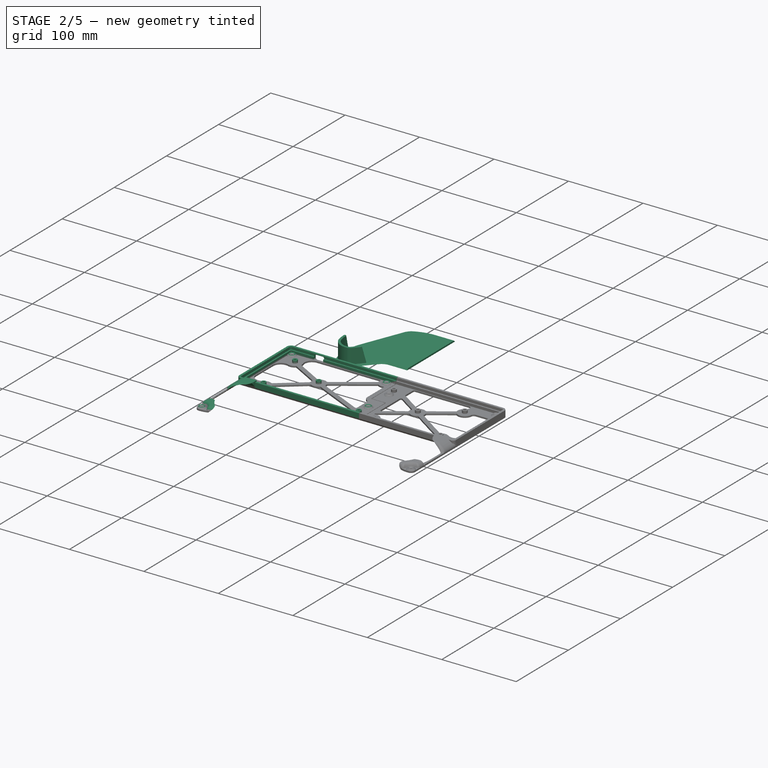
[diagram: stage 2 of 5 — iso view after this stage's code; geometry added in this stage tinted green]
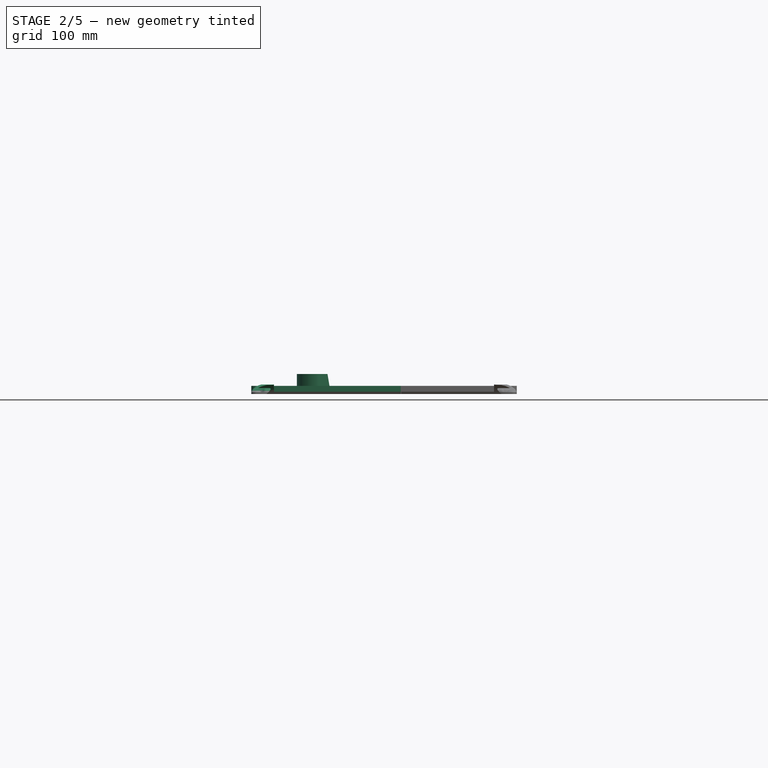
[diagram: stage 2 of 5 — front view after this stage's code; geometry added in this stage tinted green]
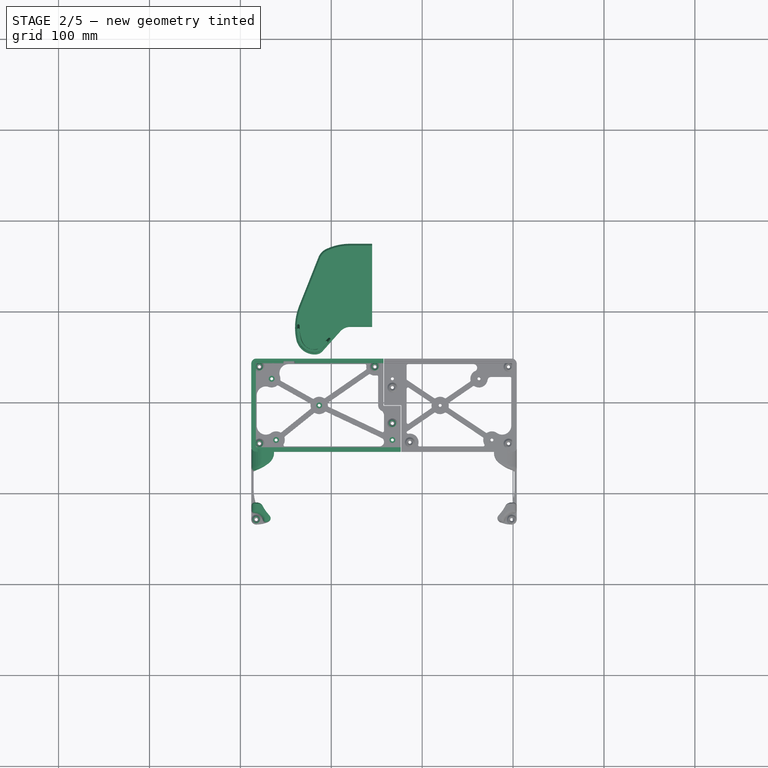
[diagram: stage 2 of 5 — top view after this stage's code; geometry added in this stage tinted green]
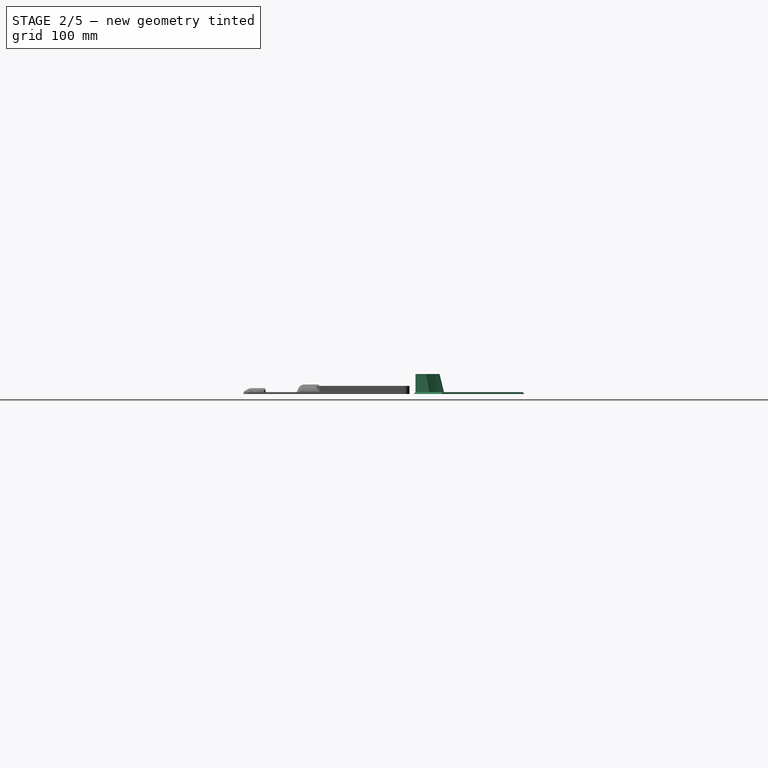
[diagram: stage 2 of 5 — right view after this stage's code; geometry added in this stage tinted green]
FEATURE [Part::Feature] Part__Feature  label="Top Face Case"
  shape: bbox 154.9 x 56.45 x 112 mm, 117 faces (baked)
FEATURE [Part::Feature] Part__Feature001  label="Battery Case"
  shape: bbox 105.9 x 30.43 x 77.68 mm, 13 faces (baked)
FEATURE [Part::Feature] Part__Feature002  label="Bottom Face Case"
  shape: bbox 158.3 x 48.34 x 107.8 mm, 96 faces (baked)
FEATURE [App::Part] Controller_Model_v32  label="Controller Model v32"
  Group = -> [Part__Feature,Part__Feature001,Part__Feature002]
  Origin = -> Origin016
  Placement = pos=(-155,-87,36) rot=(1,0,0;1.5708rad)
FEATURE [PartDesign::SubShapeBinder] Binder003
  BindCopyOnChange = 0
  BindMode = 0
  ClaimChildren = false
  Context = -> Body007 [Binder003.]
  Fuse = false
  MakeFace = true
  OffsetFill = false
  OffsetIntersection = false
  OffsetJoinType = 0
  OffsetOpenResult = false
  PartialLoad = false
  Relative = true
  Support = -> [Controller_Model_v32]
  _Version = 2
FEATURE [PartDesign::Plane] DatumPlane001
  AttachmentOffset = pos=(0,0,0) rot=(0,1,0;1.5708rad)
  Length = 153.308
  MapMode = 7
  Placement = pos=(-155,-84.0173,29.2842) rot=(-0.702461,0.114442,0.702461;3.36949rad)
  ResizeMode = 0
  Support = -> [Binder003]
  Width = 216.099
FEATURE [Sketcher::SketchObject] Sketch032
  ExternalGeometry = -> [DatumPlane001,Binder003]
  FullyConstrained = false
  MapMode = 5
  Support = -> [XY_Plane017]
  expr: Constraints[14] = .Constraints.border + 3 mm
  expr: Constraints[19] = .Constraints.border + 2 mm
  expr: Constraints[23] = .Constraints.border
  expr: Constraints[29] = .Constraints.border
  expr: Constraints[34] = .Constraints.border
  expr: Constraints[42] = .Constraints.border
  expr: Constraints[49] = .Constraints.border
  expr: Constraints[50] = .Constraints.border
  sketch-geometry (20):
    g0: LineSegment StartX=-155 StartY=-25.0447 StartZ=0 EndX=-179.7 EndY=-25.0447 EndZ=0
    g1: ArcOfCircle CenterX=-179.7 CenterY=-85.7602 CenterZ=0 NormalX=0 NormalY=0 NormalZ=1 AngleXU=0 Radius=60.7156 StartAngle=1.5708 EndAngle=2.01012
    g2: LineSegment StartX=-214.026 StartY=-39.8434 StartZ=0 EndX=-235.25 EndY=-93.1797 EndZ=0
    g3: ArcOfCircle CenterX=-174.754 CenterY=-117.254 CenterZ=0 NormalX=0 NormalY=0 NormalZ=1 AngleXU=0 Radius=65.1103 StartAngle=2.76286 EndAngle=3.34479
    g4: ArcOfCircle CenterX=-179.219 CenterY=-131.106 CenterZ=0 NormalX=0 NormalY=0 NormalZ=1 AngleXU=0 Radius=14.511 StartAngle=1.5708 EndAngle=2.41244
    g5: LineSegment StartX=-179.219 StartY=-116.595 StartZ=0 EndX=-155 EndY=-116.595 EndZ=0
    g6: ArcOfCircle CenterX=-198.346 CenterY=-46.0828 CenterZ=0 NormalX=0 NormalY=0 NormalZ=1 AngleXU=0 Radius=16.8751 StartAngle=2.01012 EndAngle=2.76286
    g7: LineSegment StartX=-239.864 StartY=-117.254 StartZ=0 EndX=-230.864 EndY=-117.254 EndZ=0
    g8: ArcOfCircle CenterX=-218.277 CenterY=-126.221 CenterZ=0 NormalX=0 NormalY=0 NormalZ=1 AngleXU=0 Radius=20.6733 StartAngle=3.34479 EndAngle=4.80931
    g9: ArcOfCircle CenterX=-217.252 CenterY=-136.759 CenterZ=0 NormalX=0 NormalY=0 NormalZ=1 AngleXU=0 Radius=10.0854 StartAngle=4.80931 EndAngle=5.55403
    g10: GeomPoint X=-155 Y=-84.0173 Z=0
    g11: GeomPoint X=-155 Y=-108.595 Z=0
    g12: LineSegment StartX=-190.04 StartY=-121.438 StartZ=0 EndX=-194.515 EndY=-117.44 EndZ=0
    g13: LineSegment StartX=-190.04 StartY=-121.438 StartZ=0 EndX=-209.731 EndY=-143.478 EndZ=0
    g14: LineSegment StartX=-201.672 StartY=-134.458 StartZ=0 EndX=-206.147 EndY=-130.46 EndZ=0
    g15: LineSegment StartX=-190.04 StartY=-121.438 StartZ=0 EndX=-194.515 EndY=-117.44 EndZ=0
    g16: LineSegment StartX=-218.277 StartY=-146.894 StartZ=0 EndX=-218.277 EndY=-140.894 EndZ=0
    g17: LineSegment StartX=-224.766 StartY=-66.8333 StartZ=0 EndX=-219.191 EndY=-69.0517 EndZ=0
    g18: LineSegment StartX=-224.766 StartY=-66.8333 StartZ=0 EndX=-219.191 EndY=-69.0517 EndZ=0
    g19: LineSegment StartX=-155 StartY=-25.0447 StartZ=0 EndX=-155 EndY=-116.595 EndZ=0
  constraints (56):
    c: Horizontal(g0)
    c: Tangent(g0,g1) = -1.5708
    c: Tangent(g2,g3) = -1.5708
    c: Horizontal(g5)
    c: PointOnObject(g0,g-3)
    c: PointOnObject(g5,g-3)
    c: DistanceY(g-6,g0) = 6  'border'
    c: Tangent(g2,g6) = -1.5708
    c: Tangent(g1,g6) = -1.5708
    c: Tangent(g4,g5) = 1.5708
    c: PointOnObject(g7,g3)
    c: PointOnObject(g7,g-4)
    c: Perpendicular(g3,g7)
    c: Horizontal(g7,g3)
    c: Distance(g7) = 9
    c: Tangent(g3,g8) = -1.5708
    c: Tangent(g8,g9) = -1.5708
    c: PointOnObject(g11,g-5)
    c: PointOnObject(g11,g-3)
    c: DistanceY(g5,g11) = 8
    c: PointOnObject(g12,g4)
    c: PointOnObject(g12,g-5)
    c: Perpendicular(g4,g12)
    c: Distance(g12) = 6
    c: Tangent(g9,g13) = 1.5708
    c: Tangent(g13,g4) = -1.5708
    c: PointOnObject(g14,g13)
    c: PointOnObject(g14,g-5)
    c: Perpendicular(g14,g13)
    c: Distance(g14) = 6
    c: DistanceY(g-4,g7) = 22.5
    c: Coincident(g15,g4)
    c: PointOnObject(g15,g-5)
    c: Perpendicular(g13,g15)
    c: Distance(g15) = 6
    c: DistanceY(g-5,g12) = 22.52
    c: DistanceY(g-5,g14) = 9.5
    c: PointOnObject(g16,g8)
    c: PointOnObject(g16,g-4)
    c: Vertical(g16)
    c: DistanceX(g16,g-4) = 1.45
    c: Perpendicular(g8,g16)
    c: Distance(g16) = 6
    c: PointOnObject(g17,g2)
    c: PointOnObject(g17,g-4)
    c: PointOnObject(g18,g2)
    c: PointOnObject(g18,g-4)
    c: Perpendicular(g18,g2)
    c: Perpendicular(g17,g2)
    c: Distance(g17) = 6
    c: Distance(g18) = 6
    c: Distance(g0) = 24.7
    c: Coincident(g19,g0)
    c: Coincident(g19,g5)
    c: DistanceX(g7,g5) = 84.8644
    c: DistanceX(g7,g5) = 75.8644
FEATURE [Sketcher::SketchObject] Sketch033
  AttachmentOffset = pos=(0,0,2) rot=(0,0,1;0rad)
  ExternalGeometry = -> [DatumPlane001,Binder003]
  FullyConstrained = false
  MapMode = 5
  Placement = pos=(0,0,2) rot=(0,0,1;0rad)
  Support = -> [XY_Plane017]
  expr: Constraints[14] = .Constraints.border + 3 mm
  expr: Constraints[19] = .Constraints.border + 2 mm
  expr: Constraints[23] = .Constraints.border
  expr: Constraints[29] = .Constraints.border
  expr: Constraints[34] = .Constraints.border
  expr: Constraints[42] = .Constraints.border
  expr: Constraints[49] = .Constraints.border
  expr: Constraints[50] = .Constraints.border
  sketch-geometry (20):
    g0: LineSegment StartX=-155 StartY=-27.0447 StartZ=0 EndX=-179.7 EndY=-27.0447 EndZ=0
    g1: ArcOfCircle CenterX=-179.7 CenterY=-85.7776 CenterZ=0 NormalX=0 NormalY=0 NormalZ=1 AngleXU=0 Radius=58.7329 StartAngle=1.5708 EndAngle=2.01064
    g2: LineSegment StartX=-212.233 StartY=-40.6395 StartZ=0 EndX=-233.408 EndY=-93.9591 EndZ=0
    g3: ArcOfCircle CenterX=-174.752 CenterY=-117.254 CenterZ=0 NormalX=0 NormalY=0 NormalZ=1 AngleXU=0 Radius=63.1122 StartAngle=2.76356 EndAngle=3.34478
    g4: ArcOfCircle CenterX=-179.219 CenterY=-131.106 CenterZ=0 NormalX=0 NormalY=0 NormalZ=1 AngleXU=0 Radius=16.511 StartAngle=1.5708 EndAngle=2.41244
    g5: LineSegment StartX=-179.219 StartY=-114.595 StartZ=0 EndX=-155 EndY=-114.595 EndZ=0
    g6: ArcOfCircle CenterX=-198.346 CenterY=-46.1544 CenterZ=0 NormalX=0 NormalY=0 NormalZ=1 AngleXU=0 Radius=14.9416 StartAngle=2.01064 EndAngle=2.76356
    g7: LineSegment StartX=-237.864 StartY=-117.254 StartZ=0 EndX=-230.864 EndY=-117.254 EndZ=0
    g8: ArcOfCircle CenterX=-218.277 CenterY=-126.221 CenterZ=0 NormalX=0 NormalY=0 NormalZ=1 AngleXU=0 Radius=18.6733 StartAngle=3.34478 EndAngle=4.80931
    g9: ArcOfCircle CenterX=-217.252 CenterY=-136.759 CenterZ=0 NormalX=0 NormalY=0 NormalZ=1 AngleXU=0 Radius=8.08535 StartAngle=4.80931 EndAngle=5.55403
    g10: GeomPoint X=-155 Y=-84.0173 Z=0
    g11: GeomPoint X=-155 Y=-108.595 Z=0
    g12: LineSegment StartX=-191.532 StartY=-120.105 StartZ=0 EndX=-194.515 EndY=-117.44 EndZ=0
    g13: LineSegment StartX=-191.532 StartY=-120.105 StartZ=0 EndX=-211.223 EndY=-142.146 EndZ=0
    g14: LineSegment StartX=-203.164 StartY=-133.125 StartZ=0 EndX=-206.147 EndY=-130.46 EndZ=0
    g15: LineSegment StartX=-191.532 StartY=-120.105 StartZ=0 EndX=-194.515 EndY=-117.44 EndZ=0
    g16: LineSegment StartX=-218.277 StartY=-144.894 StartZ=0 EndX=-218.277 EndY=-140.894 EndZ=0
    g17: LineSegment StartX=-222.766 StartY=-67.1619 StartZ=0 EndX=-219.048 EndY=-68.6383 EndZ=0
    g18: LineSegment StartX=-222.766 StartY=-67.1619 StartZ=0 EndX=-219.048 EndY=-68.6383 EndZ=0
    g19: LineSegment StartX=-155 StartY=-27.0447 StartZ=0 EndX=-155 EndY=-114.595 EndZ=0
  constraints (54):
    c: Horizontal(g0)
    c: Tangent(g0,g1) = -1.5708
    c: Tangent(g2,g3) = -1.5708
    c: Horizontal(g5)
    c: PointOnObject(g0,g-3)
    c: PointOnObject(g5,g-3)
    c: DistanceY(g-6,g0) = 4  'border'
    c: Tangent(g2,g6) = -1.5708
    c: Tangent(g1,g6) = -1.5708
    c: Tangent(g4,g5) = 1.5708
    c: PointOnObject(g7,g3)
    c: PointOnObject(g7,g-4)
    c: Perpendicular(g3,g7)
    c: Horizontal(g7,g3)
    c: Distance(g7) = 7
    c: Tangent(g3,g8) = -1.5708
    c: Tangent(g8,g9) = -1.5708
    c: PointOnObject(g11,g-5)
    c: PointOnObject(g11,g-3)
    c: DistanceY(g5,g11) = 6
    c: PointOnObject(g12,g4)
    c: PointOnObject(g12,g-5)
    c: Perpendicular(g4,g12)
    c: Distance(g12) = 4
    c: Tangent(g9,g13) = 1.5708
    c: Tangent(g13,g4) = -1.5708
    c: PointOnObject(g14,g13)
    c: PointOnObject(g14,g-5)
    c: Perpendicular(g14,g13)
    c: Distance(g14) = 4
    c: DistanceY(g-4,g7) = 22.5
    c: Coincident(g15,g4)
    c: PointOnObject(g15,g-5)
    c: Perpendicular(g13,g15)
    c: Distance(g15) = 4
    c: DistanceY(g-5,g12) = 22.52
    c: DistanceY(g-5,g14) = 9.5
    c: PointOnObject(g16,g8)
    c: PointOnObject(g16,g-4)
    c: Vertical(g16)
    c: DistanceX(g16,g-4) = 1.45
    c: Perpendicular(g8,g16)
    c: Distance(g16) = 4
    c: PointOnObject(g17,g2)
    c: PointOnObject(g17,g-4)
    c: PointOnObject(g18,g2)
    c: PointOnObject(g18,g-4)
    c: Perpendicular(g18,g2)
    c: Perpendicular(g17,g2)
    c: Distance(g17) = 4
    c: Distance(g18) = 4
    c: Distance(g0) = 24.7
    c: Coincident(g19,g0)
    c: Coincident(g19,g5)
FEATURE [PartDesign::AdditiveLoft] AdditiveLoft009
  Closed = false
  Profile = -> Sketch032
  Ruled = true
  Sections = -> [Sketch033]
FEATURE [Sketcher::SketchObject] Sketch034
  AttachmentOffset = pos=(0,0,2) rot=(0,0,1;0rad)
  ExternalGeometry = -> [AdditiveLoft009,DatumPlane001]
  FullyConstrained = false
  MapMode = 5
  Placement = pos=(0,0,2) rot=(0,0,1;0rad)
  Support = -> [XY_Plane017]
  expr: Constraints[19] = .Constraints.wall_width
  expr: Constraints[37] = .Constraints.wall_width
  expr: Constraints[38] = .Constraints.wall_width
  sketch-geometry (15):
    g0: ArcOfCircle CenterX=-174.752 CenterY=-117.254 CenterZ=0 NormalX=0 NormalY=0 NormalZ=1 AngleXU=0 Radius=63.1122 StartAngle=3.10654 EndAngle=3.34478
    g1: ArcOfCircle CenterX=-218.277 CenterY=-126.221 CenterZ=0 NormalX=0 NormalY=0 NormalZ=1 AngleXU=0 Radius=18.6733 StartAngle=3.34478 EndAngle=4.80931
    g2: ArcOfCircle CenterX=-217.252 CenterY=-136.759 CenterZ=0 NormalX=0 NormalY=0 NormalZ=1 AngleXU=0 Radius=8.08535 StartAngle=4.80931 EndAngle=5.55403
    g3: LineSegment StartX=-211.223 StartY=-142.146 StartZ=0 EndX=-201.229 EndY=-130.96 EndZ=0
    g4: ArcOfCircle CenterX=-202.348 CenterY=-129.961 CenterZ=0 NormalX=0 NormalY=0 NormalZ=1 AngleXU=0 Radius=1.5 StartAngle=5.55403 EndAngle=8.69562
    g5: ArcOfCircle CenterX=-236.327 CenterY=-115.095 CenterZ=0 NormalX=0 NormalY=0 NormalZ=1 AngleXU=0 Radius=1.5 StartAngle=6.24813 EndAngle=9.38973
    g6: LineSegment StartX=-203.466 StartY=-128.961 StartZ=0 EndX=-213.086 EndY=-139.729 EndZ=0
    g7: ArcOfCircle CenterX=-214.387 CenterY=-138.566 CenterZ=0 NormalX=0 NormalY=0 NormalZ=1 AngleXU=0 Radius=1.74443 StartAngle=5.20133 EndAngle=5.55403
    g8: ArcOfCircle CenterX=-219.555 CenterY=-128.852 CenterZ=0 NormalX=0 NormalY=0 NormalZ=1 AngleXU=0 Radius=12.7486 StartAngle=3.55399 EndAngle=5.20133
    g9: ArcOfCircle CenterX=-191.687 CenterY=-116.66 CenterZ=0 NormalX=0 NormalY=0 NormalZ=1 AngleXU=0 Radius=43.1667 StartAngle=3.10654 EndAngle=3.55399
    g10: LineSegment StartX=-203.64 StartY=-129.156 StartZ=0 EndX=-201.403 EndY=-131.154 EndZ=0
    g11: LineSegment StartX=-212.911 StartY=-139.497 StartZ=0 EndX=-210.413 EndY=-141.072 EndZ=0
    g12: LineSegment StartX=-225.127 StartY=-140.318 StartZ=0 EndX=-226.439 EndY=-143.016 EndZ=0
    g13: LineSegment StartX=-234.827 StartY=-115.147 StartZ=0 EndX=-237.826 EndY=-115.042 EndZ=0
    g14: GeomPoint X=-155 Y=-115.147 Z=0
  constraints (43):
    c: PointOnObject(g0,g-4)
    c: Coincident(g0,g-5)
    c: Tangent(g0,g-4)
    c: Coincident(g1,g0)
    c: Coincident(g1,g-6)
    c: Coincident(g2,g1)
    c: Coincident(g2,g-7)
    c: Tangent(g2,g3) = -1.5708
    c: Tangent(g3,g4) = -1.5708
    c: Tangent(g5,g0) = -1.5708
    c: PointOnObject(g3,g-7)
    c: Equal(g5,g4)
    c: Tangent(g6,g7) = 1.5708
    c: Tangent(g7,g8) = -1.5708
    c: Tangent(g4,g6) = -1.5708
    c: Distance(g0,g5) = 3  'wall_width'
    c: PointOnObject(g10,g6)
    c: PointOnObject(g10,g3)
    c: Perpendicular(g6,g10)
    c: Distance(g10) = 3
    c: Tangent(g9,g5) = 1.5708
    c: Tangent(g9,g8) = -1.5708
    c: Distance(g2,g3) = 15
    c: Distance(g0,g0) = 15
    c: PointOnObject(g11,g7)
    c: PointOnObject(g11,g2)
    c: Perpendicular(g7,g11)
    c: Perpendicular(g2,g11)
    c: PointOnObject(g12,g8)
    c: PointOnObject(g12,g1)
    c: Perpendicular(g8,g12)
    c: Perpendicular(g1,g12)
    c: PointOnObject(g12,g-5)
    c: PointOnObject(g13,g9)
    c: PointOnObject(g13,g0)
    c: Perpendicular(g9,g13)
    c: Perpendicular(g0,g13)
    c: Distance(g13) = 3
    c: Distance(g12) = 3
    c: DistanceX(g-8,g-8) = -1.85366e-10
    c: PointOnObject(g14,g-8)
    c: Horizontal(g5,g14)
    c: DistanceX(g5,g14) = 79.8275
FEATURE [Sketcher::SketchObject] Sketch035
  AttachmentOffset = pos=(0,0,22) rot=(0,0,1;0rad)
  ExternalGeometry = -> [AdditiveLoft009]
  FullyConstrained = false
  MapMode = 5
  Placement = pos=(0,0,22) rot=(0,0,1;0rad)
  Support = -> [XY_Plane017]
  expr: Constraints[19] = .Constraints.wall_width
  expr: Constraints[37] = .Constraints.wall_width
  expr: Constraints[38] = .Constraints.wall_width
  sketch-geometry (14):
    g0: ArcOfCircle CenterX=-174.752 CenterY=-117.254 CenterZ=0 NormalX=0 NormalY=0 NormalZ=1 AngleXU=0 Radius=63.1122 StartAngle=3.18616 EndAngle=3.34478
    g1: ArcOfCircle CenterX=-218.277 CenterY=-126.221 CenterZ=0 NormalX=0 NormalY=0 NormalZ=1 AngleXU=0 Radius=18.6733 StartAngle=3.34478 EndAngle=4.80931
    g2: ArcOfCircle CenterX=-217.252 CenterY=-136.759 CenterZ=0 NormalX=0 NormalY=0 NormalZ=1 AngleXU=0 Radius=8.08535 StartAngle=4.80931 EndAngle=5.55403
    g3: LineSegment StartX=-211.223 StartY=-142.146 StartZ=0 EndX=-204.56 EndY=-134.689 EndZ=0
    g4: ArcOfCircle CenterX=-205.679 CenterY=-133.689 CenterZ=0 NormalX=0 NormalY=0 NormalZ=1 AngleXU=0 Radius=1.5 StartAngle=5.55403 EndAngle=8.69562
    g5: ArcOfCircle CenterX=-236.303 CenterY=-119.999 CenterZ=0 NormalX=0 NormalY=0 NormalZ=1 AngleXU=0 Radius=1.5 StartAngle=0.0445707 EndAngle=3.18616
    g6: LineSegment StartX=-206.798 StartY=-132.69 StartZ=0 EndX=-213.46 EndY=-140.147 EndZ=0
    g7: ArcOfCircle CenterX=-217.252 CenterY=-136.759 CenterZ=0 NormalX=0 NormalY=0 NormalZ=1 AngleXU=0 Radius=5.08535 StartAngle=4.80931 EndAngle=5.55403
    g8: ArcOfCircle CenterX=-218.277 CenterY=-126.221 CenterZ=0 NormalX=0 NormalY=0 NormalZ=1 AngleXU=0 Radius=15.6733 StartAngle=3.34478 EndAngle=4.80931
    g9: ArcOfCircle CenterX=-174.752 CenterY=-117.254 CenterZ=0 NormalX=0 NormalY=0 NormalZ=1 AngleXU=0 Radius=60.1122 StartAngle=3.18616 EndAngle=3.34478
    g10: LineSegment StartX=-210.171 StartY=-136.466 StartZ=0 EndX=-207.934 EndY=-138.464 EndZ=0
    g11: LineSegment StartX=-215.717 StartY=-141.607 StartZ=0 EndX=-214.811 EndY=-144.467 EndZ=0
    g12: LineSegment StartX=-226.993 StartY=-139.247 StartZ=0 EndX=-228.661 EndY=-141.741 EndZ=0
    g13: LineSegment StartX=-233.772 StartY=-128.661 StartZ=0 EndX=-236.718 EndY=-129.23 EndZ=0
  constraints (39):
    c: PointOnObject(g0,g-4)
    c: Coincident(g0,g-5)
    c: Tangent(g0,g-4)
    c: Coincident(g1,g0)
    c: Coincident(g1,g-6)
    c: Coincident(g2,g1)
    c: Coincident(g2,g-7)
    c: Tangent(g2,g3) = -1.5708
    c: Tangent(g3,g4) = -1.5708
    c: Tangent(g5,g0) = -1.5708
    c: PointOnObject(g3,g-7)
    c: Equal(g5,g4)
    c: Tangent(g6,g7) = 1.5708
    c: Tangent(g7,g8) = -1.5708
    c: Tangent(g4,g6) = -1.5708
    c: Distance(g0,g5) = 3  'wall_width'
    c: PointOnObject(g10,g6)
    c: PointOnObject(g10,g3)
    c: Perpendicular(g6,g10)
    c: Distance(g10) = 3
    c: Tangent(g9,g5) = 1.5708
    c: Tangent(g9,g8) = -1.5708
    c: Distance(g2,g3) = 10
    c: Distance(g0,g0) = 10
    c: PointOnObject(g11,g7)
    c: PointOnObject(g11,g2)
    c: Perpendicular(g7,g11)
    c: Perpendicular(g2,g11)
    c: PointOnObject(g12,g8)
    c: PointOnObject(g12,g1)
    c: Perpendicular(g8,g12)
    c: Perpendicular(g1,g12)
    c: PointOnObject(g12,g-5)
    c: PointOnObject(g13,g9)
    c: PointOnObject(g13,g0)
    c: Perpendicular(g9,g13)
    c: Perpendicular(g0,g13)
    c: Distance(g13) = 3
    c: Distance(g12) = 3
FEATURE [PartDesign::AdditiveLoft] AdditiveLoft010
  BaseFeature = -> AdditiveLoft009
  Closed = false
  Profile = -> Sketch034
  Ruled = true
  Sections = -> [Sketch035]
FEATURE [Sketcher::SketchObject] Sketch047
  AttachmentOffset = pos=(0,0,2) rot=(0,0,1;0rad)
  ExternalGeometry = -> [Binder004]
  FullyConstrained = true
  MapMode = 5
  Placement = pos=(0,0,2) rot=(0,0,1;0rad)
  Support = -> [XY_Plane018]
  sketch-geometry (4):
    g0: Circle CenterX=-265.575 CenterY=-173.625 CenterZ=0 NormalX=0 NormalY=0 NormalZ=1 AngleXU=0 Radius=3.225
    g1: Circle CenterX=-260.675 CenterY=-240.975 CenterZ=0 NormalX=0 NormalY=0 NormalZ=1 AngleXU=0 Radius=3.225
    g2: Circle CenterX=-213.275 CenterY=-202.925 CenterZ=0 NormalX=0 NormalY=0 NormalZ=1 AngleXU=0 Radius=3.225
    g3: Circle CenterX=-132.775 CenterY=-240.975 CenterZ=0 NormalX=0 NormalY=0 NormalZ=1 AngleXU=0 Radius=3.225
  constraints (8):
    c: Coincident(g0,g-3)
    c: Coincident(g1,g-4)
    c: Coincident(g2,g-5)
    c: Coincident(g3,g-6)
    c: Equal(g0,g2)
    c: Equal(g0,g3)
    c: Equal(g0,g1)
    c: Diameter(g0) = 6.45
FEATURE [PartDesign::Pad] Pad010
  BaseFeature = -> Pad009
  Direction = (0,0,1)
  Length = 3.5
  Length2 = 10
  Profile = -> Sketch047
  ReferenceAxis = -> Sketch047 [N_Axis]
  Type = 0
FEATURE [PartDesign::Hole] Hole006
  BaseFeature = -> Pad010
  CustomThreadClearance = 0
  Depth = 4.5
  DepthType = 0
  Diameter = 3.25
  DrillForDepth = false
  DrillPoint = 0
  DrillPointAngle = 118
  HoleCutCountersinkAngle = 90
  HoleCutCustomValues = false
  HoleCutDepth = 0
  HoleCutDiameter = 6.1
  HoleCutType = 0
  ModelThread = false
  Profile = -> Pad010 [Face67,Face64,Face65,Face66]
  Tapered = false
  TaperedAngle = 90
  ThreadClass = 0
  ThreadDepth = 4.5
  ThreadDepthType = 0
  ThreadDirection = 0
  ThreadFit = 0
  ThreadSize = 0
  ThreadType = 0
  Threaded = false
  UseCustomThreadClearance = false
FEATURE [Sketcher::SketchObject] Sketch048
  AttachmentOffset = pos=(0,0,2) rot=(0,0,1;0rad)
  ExternalGeometry = -> [Binder004,Sketch046]
  FullyConstrained = true
  MapMode = 5
  Placement = pos=(0,0,2) rot=(0,0,1;0rad)
  Support = -> [XY_Plane018]
  expr: Constraints[0] = Sketch046.Constraints[15]
  sketch-geometry (11):
    g0: Circle CenterX=-282.5 CenterY=-328.5 CenterZ=0 NormalX=0 NormalY=0 NormalZ=1 AngleXU=0 Radius=5.5
    g1: Circle CenterX=-152 CenterY=-160.5 CenterZ=0 NormalX=0 NormalY=0 NormalZ=1 AngleXU=0 Radius=5.5
    g2: Circle CenterX=-132.775 CenterY=-222.75 CenterZ=0 NormalX=0 NormalY=0 NormalZ=1 AngleXU=0 Radius=5.5
    g3: Circle CenterX=-279 CenterY=-160.5 CenterZ=0 NormalX=0 NormalY=0 NormalZ=1 AngleXU=0 Radius=5.5
    g4: Circle CenterX=-279 CenterY=-245 CenterZ=0 NormalX=0 NormalY=0 NormalZ=1 AngleXU=0 Radius=5.5
    g5: LineSegment StartX=-279 StartY=-160.5 StartZ=0 EndX=-279 EndY=-155 EndZ=0
    g6: LineSegment StartX=-279 StartY=-160.5 StartZ=0 EndX=-284.5 EndY=-160.5 EndZ=0
    g7: LineSegment StartX=-279 StartY=-245 StartZ=0 EndX=-279 EndY=-250.5 EndZ=0
    g8: LineSegment StartX=-152 StartY=-160.5 StartZ=0 EndX=-146.5 EndY=-160.5 EndZ=0
    g9: LineSegment StartX=-132.775 StartY=-222.75 StartZ=0 EndX=-132.775 EndY=-217.25 EndZ=0
    g10: LineSegment StartX=-282.5 StartY=-328.5 StartZ=0 EndX=-282.5 EndY=-334 EndZ=0
  constraints (32):
    c: Radius(g0) = 5.5
    c: Equal(g0,g4)
    c: Equal(g0,g3)
    c: Equal(g0,g1)
    c: Equal(g0,g2)
    c: Horizontal(g3,g1)
    c: Vertical(g3,g4)
    c: Coincident(g5,g3)
    c: PointOnObject(g5,g3)
    c: Vertical(g5)
    c: Coincident(g6,g3)
    c: PointOnObject(g6,g3)
    c: Horizontal(g6)
    c: PointOnObject(g6,g-4)
    c: PointOnObject(g5,g-3)
    c: Coincident(g7,g4)
    c: PointOnObject(g7,g4)
    c: Vertical(g7)
    c: PointOnObject(g7,g-8)
    c: Coincident(g8,g1)
    c: PointOnObject(g8,g1)
    c: Horizontal(g8)
    c: DistanceX(g8,g-9) = 4
    c: Vertical(g2,g-7)
    c: Coincident(g9,g2)
    c: PointOnObject(g9,g2)
    c: Vertical(g9)
    c: DistanceY(g9,g-6) = 14
    c: Coincident(g10,g0)
    c: PointOnObject(g10,g0)
    c: Vertical(g10)
    c: Coincident(g10,g-5)
FEATURE [PartDesign::Pad] Pad011
  BaseFeature = -> Hole006
  Direction = (0,0,1)
  Length = 2
  Length2 = 10
  Profile = -> Sketch048
  ReferenceAxis = -> Sketch048 [N_Axis]
  Type = 0
FEATURE [PartDesign::Chamfer] Chamfer
  Angle = 45
  Base = -> Pad011 [Edge203,Edge191,Edge189,Edge199,Edge205]
  BaseFeature = -> Pad011
  ChamferType = 0
  FlipDirection = false
  Size = 1.9
  Size2 = 1
  SupportTransform = false
  UseAllEdges = false
FEATURE [Sketcher::SketchObject] Sketch049
  AttachmentOffset = pos=(0,0,2) rot=(0,0,1;0rad)
  ExternalGeometry = -> [Sketch046,Binder004]
  FullyConstrained = true
  MapMode = 5
  Placement = pos=(0,0,2) rot=(0,0,1;0rad)
  Support = -> [XY_Plane018]
  sketch-geometry (12):
    g0: LineSegment StartX=-142.5 StartY=-151.5 StartZ=0 EndX=-282.5 EndY=-151.5 EndZ=0
    g1: ArcOfCircle CenterX=-282.5 CenterY=-157 CenterZ=0 NormalX=0 NormalY=0 NormalZ=1 AngleXU=0 Radius=5.5 StartAngle=1.5708 EndAngle=3.14159
    g2: LineSegment StartX=-288 StartY=-157 StartZ=0 EndX=-288 EndY=-248.5 EndZ=0
    g3: ArcOfCircle CenterX=-282.5 CenterY=-248.5 CenterZ=0 NormalX=0 NormalY=0 NormalZ=1 AngleXU=0 Radius=5.5 StartAngle=3.14159 EndAngle=4.71239
    g4: LineSegment StartX=-282.5 StartY=-254 StartZ=0 EndX=-123.55 EndY=-254 EndZ=0
    g5: LineSegment StartX=-123.55 StartY=-254 StartZ=0 EndX=-123.55 EndY=-249 EndZ=0
    g6: LineSegment StartX=-123.55 StartY=-249 StartZ=0 EndX=-282.5 EndY=-249 EndZ=0
    g7: ArcOfCircle CenterX=-282.5 CenterY=-248.5 CenterZ=0 NormalX=0 NormalY=0 NormalZ=1 AngleXU=0 Radius=0.5 StartAngle=3.14159 EndAngle=4.71239
    g8: LineSegment StartX=-283 StartY=-248.5 StartZ=0 EndX=-283 EndY=-157 EndZ=0
    g9: ArcOfCircle CenterX=-282.5 CenterY=-157 CenterZ=0 NormalX=0 NormalY=0 NormalZ=1 AngleXU=0 Radius=0.5 StartAngle=1.5708 EndAngle=3.14159
    g10: LineSegment StartX=-282.5 StartY=-156.5 StartZ=0 EndX=-142.5 EndY=-156.5 EndZ=0
    g11: LineSegment StartX=-142.5 StartY=-156.5 StartZ=0 EndX=-142.5 EndY=-151.5 EndZ=0
  constraints (26):
    c: Coincident(g-5,g0)
    c: Coincident(g0,g-4)
    c: Tangent(g0,g1) = -1.5708
    c: Coincident(g1,g-3)
    c: Tangent(g1,g2) = -1.5708
    c: Tangent(g2,g3) = -1.5708
    c: Coincident(g4,g-8)
    c: Horizontal(g4)
    c: Coincident(g4,g5)
    c: PointOnObject(g5,g-7)
    c: Coincident(g5,g6)
    c: Horizontal(g6)
    c: Tangent(g6,g7) = 1.5708
    c: Vertical(g8)
    c: Tangent(g8,g9) = 1.5708
    c: PointOnObject(g10,g-5)
    c: Horizontal(g10)
    c: Coincident(g10,g11)
    c: Coincident(g11,g0)
    c: Tangent(g7,g8) = 1.5708
    c: Tangent(g9,g10) = 1.5708
    c: DistanceY(g9,g-10) = 1.5  'ledge'
    c: Equal(g1,g3)
    c: Tangent(g3,g4) = -1.5708
    c: Coincident(g7,g3)
    c: Coincident(g9,g1)
FEATURE [PartDesign::Pad] Pad012
  BaseFeature = -> Chamfer
  Direction = (0,0,1)
  Length = 3.5
  Length2 = 10
  Profile = -> Sketch049
  ReferenceAxis = -> Sketch049 [N_Axis]
  Type = 0
FEATURE [Sketcher::SketchObject] Sketch050
  AttachmentOffset = pos=(0,0,5.5) rot=(0,0,1;0rad)
  ExternalGeometry = -> [Sketch049,Binder004]
  FullyConstrained = true
  MapMode = 5
  Placement = pos=(0,0,5.5) rot=(0,0,1;0rad)
  Support = -> [XY_Plane018]
  expr: Constraints[23] = .Constraints.gap
  sketch-geometry (12):
    g0: LineSegment StartX=-142.5 StartY=-151.5 StartZ=0 EndX=-142.5 EndY=-154.5 EndZ=0
    g1: LineSegment StartX=-142.5 StartY=-151.5 StartZ=0 EndX=-282.5 EndY=-151.5 EndZ=0
    g2: ArcOfCircle CenterX=-282.5 CenterY=-157 CenterZ=0 NormalX=0 NormalY=0 NormalZ=1 AngleXU=0 Radius=5.5 StartAngle=1.5708 EndAngle=3.14159
    g3: LineSegment StartX=-288 StartY=-157 StartZ=0 EndX=-288 EndY=-248.5 EndZ=0
    g4: ArcOfCircle CenterX=-282.5 CenterY=-248.5 CenterZ=0 NormalX=0 NormalY=0 NormalZ=1 AngleXU=0 Radius=5.5 StartAngle=3.14159 EndAngle=4.71239
    g5: LineSegment StartX=-282.5 StartY=-254 StartZ=0 EndX=-123.55 EndY=-254 EndZ=0
    g6: LineSegment StartX=-123.55 StartY=-254 StartZ=0 EndX=-123.55 EndY=-251 EndZ=0
    g7: LineSegment StartX=-123.55 StartY=-251 StartZ=0 EndX=-282.5 EndY=-251 EndZ=0
    g8: ArcOfCircle CenterX=-282.5 CenterY=-248.5 CenterZ=0 NormalX=0 NormalY=0 NormalZ=1 AngleXU=0 Radius=2.5 StartAngle=3.14159 EndAngle=4.71239
    g9: LineSegment StartX=-285 StartY=-248.5 StartZ=0 EndX=-285 EndY=-157 EndZ=0
    g10: ArcOfCircle CenterX=-282.5 CenterY=-157 CenterZ=0 NormalX=0 NormalY=0 NormalZ=1 AngleXU=0 Radius=2.5 StartAngle=1.5708 EndAngle=3.14159
    g11: LineSegment StartX=-282.5 StartY=-154.5 StartZ=0 EndX=-142.5 EndY=-154.5 EndZ=0
  constraints (26):
    c: Vertical(g0)
    c: Tangent(g1,g2) = -1.5708
    c: Tangent(g2,g3) = -1.5708
    c: Tangent(g3,g4) = -1.5708
    c: Tangent(g4,g5) = -1.5708
    c: Coincident(g5,g6)
    c: Vertical(g6)
    c: Coincident(g6,g7)
    c: Horizontal(g7)
    c: Tangent(g7,g8) = 1.5708
    c: Vertical(g9)
    c: Tangent(g9,g10) = 1.5708
    c: Horizontal(g11)
    c: Tangent(g10,g11) = 1.5708
    c: Tangent(g8,g9) = 1.5708
    c: Coincident(g10,g2)
    c: Coincident(g8,g4)
    c: Horizontal(g1)
    c: Coincident(g1,g0)
    c: Coincident(g0,g-12)
    c: Coincident(g11,g0)
    c: Coincident(g2,g-11)
    c: DistanceY(g-13,g10) = 0.5  'gap'
    c: DistanceX(g9,g-13) = 0.5
    c: Coincident(g4,g-9)
    c: Coincident(g5,g-9)
FEATURE [Part::FeaturePython] Clone002  label="keyboard_rest001"  # Draft clone (typed FeaturePython)
  AttacherType = Attacher::AttachEngine3D
  Fuse = false
  Objects = -> [Body003]
  Placement = pos=(-142,-252.5,0) rot=(0,0,1;0rad)
  Scale = (1.01,1.01,1.01)
FEATURE [Sketcher::SketchObject] Sketch058
  AttachmentOffset = pos=(500,0,0) rot=(0,0,1;0rad)
  ExternalGeometry = -> [Binder004]
  FullyConstrained = true
  MapMode = 5
  Placement = pos=(-500,-151.5,0) rot=(0,0.707107,0.707107;3.14159rad)
  Support = -> [Pad009]
  sketch-geometry (12):
    g0: ArcOfCircle CenterX=-258.1 CenterY=5.9 CenterZ=0 NormalX=0 NormalY=0 NormalZ=1 AngleXU=0 Radius=2 StartAngle=1.5708 EndAngle=3.14159
    g1: LineSegment StartX=-258.1 StartY=7.9 StartZ=0 EndX=-249.1 EndY=7.9 EndZ=0
    g2: ArcOfCircle CenterX=-249.1 CenterY=5.9 CenterZ=0 NormalX=0 NormalY=0 NormalZ=1 AngleXU=0 Radius=2 StartAngle=1.954e-13 EndAngle=1.5708
    g3: LineSegment StartX=-247.1 StartY=5.9 StartZ=0 EndX=-247.1 EndY=2.9 EndZ=0
    g4: ArcOfCircle CenterX=-249.1 CenterY=2.9 CenterZ=0 NormalX=0 NormalY=0 NormalZ=1 AngleXU=0 Radius=2 StartAngle=4.71239 EndAngle=6.28319
    g5: LineSegment StartX=-249.1 StartY=0.9 StartZ=0 EndX=-258.1 EndY=0.9 EndZ=0
    g6: ArcOfCircle CenterX=-258.1 CenterY=2.9 CenterZ=0 NormalX=0 NormalY=0 NormalZ=1 AngleXU=0 Radius=2 StartAngle=3.14159 EndAngle=4.71239
    g7: LineSegment StartX=-260.1 StartY=2.9 StartZ=0 EndX=-260.1 EndY=5.9 EndZ=0
    g8: GeomPoint X=-260.1 Y=7.9 Z=0
    g9: GeomPoint X=-247.1 Y=0.9 Z=0
    g10: GeomPoint X=-253.6 Y=4.4 Z=0
    g11: LineSegment StartX=-253.6 StartY=6 StartZ=0 EndX=-253.6 EndY=4.4 EndZ=0
  constraints (28):
    c: Tangent(g0,g1) = 1.5708
    c: Tangent(g1,g2) = 1.5708
    c: Tangent(g2,g3) = 1.5708
    c: Tangent(g3,g4) = 1.5708
    c: Tangent(g4,g5) = 1.5708
    c: Tangent(g5,g6) = 1.5708
    c: Tangent(g6,g7) = 1.5708
    c: Tangent(g7,g0) = 1.5708
    c: Horizontal(g1)
    c: Horizontal(g5)
    c: Vertical(g3)
    c: Vertical(g7)
    c: Equal(g0,g2)
    c: Equal(g2,g4)
    c: Equal(g4,g6)
    c: PointOnObject(g8,g1)
    c: PointOnObject(g8,g7)
    c: PointOnObject(g9,g3)
    c: PointOnObject(g9,g5)
    c: DistanceY(g4,g1) = 7
    c: DistanceX(g0,g2) = 13
    c: Symmetric(g0,g4,g10)
    c: Radius(g0) = 2
    c: Coincident(g11,g10)
    c: Vertical(g11)
    c: Distance(g11) = 1.6
    c: PointOnObject(g11,g-3)
    c: DistanceX(g11,g-3) = 38.1
FEATURE [PartDesign::Hole] Hole007
  BaseFeature = -> Pad012
  CustomThreadClearance = 0
  Depth = 25
  DepthType = 0
  Diameter = 3.3
  DrillForDepth = false
  DrillPoint = 1
  DrillPointAngle = 118
  HoleCutCountersinkAngle = 90
  HoleCutCustomValues = false
  HoleCutDepth = 0
  HoleCutDiameter = 6.8
  HoleCutType = 2
  ModelThread = false
  Profile = -> Chamfer [Face87,Face88,Face85,Face81,Face5]
  Tapered = false
  TaperedAngle = 90
  ThreadClass = 0
  ThreadDepth = 25
  ThreadDepthType = 0
  ThreadDirection = 0
  ThreadFit = 0
  ThreadSize = 3
  ThreadType = 3
  Threaded = false
  UseCustomThreadClearance = false
FEATURE [PartDesign::Pad] Pad013
  BaseFeature = -> Hole007
  Direction = (0,0,1)
  Length = 3.5
  Length2 = 10
  Profile = -> Sketch050
  ReferenceAxis = -> Sketch050 [N_Axis]
  Type = 0
FEATURE [Sketcher::SketchObject] Sketch051
  AttachmentOffset = pos=(0,0,2) rot=(0,0,1;0rad)
  ExternalGeometry = -> [Sketch046,Sketch050,Pad013]
  FullyConstrained = true
  MapMode = 5
  Placement = pos=(0,0,2) rot=(0,0,1;0rad)
  Support = -> [XY_Plane018]
  sketch-geometry (5):
    g0: LineSegment StartX=-263 StartY=-251 StartZ=0 EndX=-263 EndY=-255 EndZ=0
    g1: ArcOfCircle CenterX=-284 CenterY=-255 CenterZ=0 NormalX=0 NormalY=0 NormalZ=1 AngleXU=0 Radius=21 StartAngle=4.71239 EndAngle=6.28319
    g2: ArcOfCircle CenterX=-284 CenterY=-272 CenterZ=0 NormalX=0 NormalY=0 NormalZ=1 AngleXU=0 Radius=4 StartAngle=3.14159 EndAngle=4.71239
    g3: LineSegment StartX=-288 StartY=-272 StartZ=0 EndX=-288 EndY=-251 EndZ=0
    g4: LineSegment StartX=-263 StartY=-251 StartZ=0 EndX=-288 EndY=-251 EndZ=0
  constraints (14):
    c: Vertical(g0)
    c: Tangent(g0,g1) = 1.5708
    c: Tangent(g1,g2) = -1.5708
    c: Tangent(g2,g3) = 1.5708
    c: DistanceX(g3,g0) = 25
    c: Vertical(g1,g2)
    c: DistanceX(g2,g2) = 4
    c: Vertical(g3,g2)
    c: DistanceY(g1,g3) = 25
    c: Coincident(g0,g4)
    c: Horizontal(g4)
    c: Coincident(g4,g3)
    c: Vertical(g-9,g3)
    c: Horizontal(g-10,g3)
FEATURE [Sketcher::SketchObject] Sketch052
  AttachmentOffset = pos=(0,0,5.5) rot=(0,0,1;0rad)
  ExternalGeometry = -> [Sketch046,Sketch050,Sketch051]
  FullyConstrained = true
  MapMode = 5
  Placement = pos=(0,0,5.5) rot=(0,0,1;0rad)
  Support = -> [XY_Plane018]
  sketch-geometry (5):
    g0: LineSegment StartX=-286 StartY=-251 StartZ=0 EndX=-286 EndY=-270 EndZ=0
    g1: ArcOfCircle CenterX=-282 CenterY=-270 CenterZ=0 NormalX=0 NormalY=0 NormalZ=1 AngleXU=0 Radius=4 StartAngle=3.14159 EndAngle=4.71239
    g2: ArcOfCircle CenterX=-282 CenterY=-255 CenterZ=0 NormalX=0 NormalY=0 NormalZ=1 AngleXU=0 Radius=19 StartAngle=4.71239 EndAngle=6.28319
    g3: LineSegment StartX=-286 StartY=-251 StartZ=0 EndX=-263 EndY=-251 EndZ=0
    g4: LineSegment StartX=-263 StartY=-255 StartZ=0 EndX=-263 EndY=-251 EndZ=0
  constraints (12):
    c: Tangent(g0,g1) = -1.5708
    c: Tangent(g1,g2) = -1.5708
    c: Vertical(g0)
    c: DistanceX(g-9,g0) = 2
    c: DistanceY(g-9,g1) = 2
    c: Vertical(g1,g1)
    c: Coincident(g3,g0)
    c: Horizontal(g3)
    c: Tangent(g4,g2) = -1.5708
    c: Coincident(g3,g-10)
    c: Coincident(g4,g3)
    c: Coincident(g2,g-8)
FEATURE [Sketcher::SketchObject] Sketch053
  AttachmentOffset = pos=(0,0,8.5) rot=(0,0,1;0rad)
  ExternalGeometry = -> [Sketch046,Sketch050,Sketch051,Sketch052]
  FullyConstrained = true
  MapMode = 5
  Placement = pos=(0,0,8.5) rot=(0,0,1;0rad)
  Support = -> [XY_Plane018]
  sketch-geometry (5):
    g0: ArcOfCircle CenterX=-280 CenterY=-255 CenterZ=0 NormalX=0 NormalY=0 NormalZ=1 AngleXU=0 Radius=17 StartAngle=4.71239 EndAngle=6.28319
    g1: ArcOfCircle CenterX=-280 CenterY=-270 CenterZ=0 NormalX=0 NormalY=0 NormalZ=1 AngleXU=0 Radius=2 StartAngle=3.14159 EndAngle=4.71239
    g2: LineSegment StartX=-282 StartY=-270 StartZ=0 EndX=-282 EndY=-251 EndZ=0
    g3: LineSegment StartX=-282 StartY=-251 StartZ=0 EndX=-263 EndY=-251 EndZ=0
    g4: LineSegment StartX=-263 StartY=-251 StartZ=0 EndX=-263 EndY=-255 EndZ=0
  constraints (12):
    c: Tangent(g0,g1) = -1.5708
    c: Tangent(g1,g2) = 1.5708
    c: Vertical(g0,g1)
    c: Vertical(g2)
    c: DistanceX(g-10,g2) = 4
    c: Coincident(g3,g2)
    c: Coincident(g3,g-9)
    c: Horizontal(g3)
    c: Coincident(g4,g3)
    c: Coincident(g0,g-9)
    c: Tangent(g4,g0) = 1.5708
    c: DistanceY(g-10,g0) = 2
FEATURE [Sketcher::SketchObject] Sketch054
  AttachmentOffset = pos=(0,0,10.5) rot=(0,0,1;0rad)
  ExternalGeometry = -> [Sketch053]
  FullyConstrained = true
  MapMode = 5
  Placement = pos=(0,0,10.5) rot=(0,0,1;0rad)
  Support = -> [XY_Plane018]
  sketch-geometry (5):
    g0: ArcOfCircle CenterX=-274 CenterY=-255 CenterZ=0 NormalX=0 NormalY=0 NormalZ=1 AngleXU=0 Radius=11 StartAngle=4.71239 EndAngle=6.28319
    g1: LineSegment StartX=-263 StartY=-251 StartZ=0 EndX=-276 EndY=-251 EndZ=0
    g2: LineSegment StartX=-276 StartY=-251 StartZ=0 EndX=-276 EndY=-264 EndZ=0
    g3: LineSegment StartX=-263 StartY=-251 StartZ=0 EndX=-263 EndY=-255 EndZ=0
    g4: ArcOfCircle CenterX=-274 CenterY=-264 CenterZ=0 NormalX=0 NormalY=0 NormalZ=1 AngleXU=0 Radius=2 StartAngle=3.14159 EndAngle=4.71239
  constraints (12):
    c: Coincident(g-5,g0) = 1.5708
    c: Coincident(g2,g1)
    c: PointOnObject(g1,g-7)
    c: Vertical(g2)
    c: Coincident(g3,g1)
    c: Tangent(g4,g2) = -1.5708
    c: Tangent(g4,g0) = -1.5708
    c: Tangent(g3,g0) = 1.5708
    c: DistanceY(g-4,g0) = 6
    c: DistanceX(g-7,g1) = 6
    c: Vertical(g4,g0)
    c: Coincident(g1,g-7)
FEATURE [PartDesign::AdditiveLoft] AdditiveLoft013
  BaseFeature = -> Pad013
  Closed = false
  Profile = -> Sketch051
  Ruled = false
  Sections = -> [Sketch052,Sketch053,Sketch054]
FEATURE [PartDesign::Pocket] Pocket007
  BaseFeature = -> AdditiveLoft013
  Direction = (0,-1,2e-16)
  Length = 5
  Length2 = 5
  Profile = -> Sketch058
  ReferenceAxis = -> Sketch058 [N_Axis]
  Type = 0
FEATURE [Sketcher::SketchObject] Sketch059
  ExternalGeometry = -> [Sketch047,Pocket007]
  FullyConstrained = true
  MapMode = 5
  Support = -> [XY_Plane018]
  sketch-geometry (4):
    g0: Circle CenterX=-265.575 CenterY=-173.625 CenterZ=0 NormalX=0 NormalY=0 NormalZ=1 AngleXU=0 Radius=1.625
    g1: Circle CenterX=-260.675 CenterY=-240.975 CenterZ=0 NormalX=0 NormalY=0 NormalZ=1 AngleXU=0 Radius=1.625
    g2: Circle CenterX=-213.275 CenterY=-202.925 CenterZ=0 NormalX=0 NormalY=0 NormalZ=1 AngleXU=0 Radius=1.625
    g3: Circle CenterX=-132.775 CenterY=-240.975 CenterZ=0 NormalX=0 NormalY=0 NormalZ=1 AngleXU=0 Radius=1.625
  constraints (8):
    c: Coincident(g0,g-7)
    c: Coincident(g1,g-5)
    c: Coincident(g2,g-4)
    c: Coincident(g3,g-6)
    c: Equal(g0,g-7)
    c: Equal(g0,g1)
    c: Equal(g0,g2)
    c: Equal(g0,g3)
FEATURE [PartDesign::Pocket] Pocket008
  BaseFeature = -> Pocket007
  Direction = (0,0,-1)
  Length = 5
  Length2 = 5
  Profile = -> Sketch059
  ReferenceAxis = -> Sketch059 [N_Axis]
  Reversed = true
  Type = 0
FEATURE [Sketcher::SketchObject] Sketch060
  AttachmentOffset = pos=(0,0,2) rot=(0,0,1;0rad)
  ExternalGeometry = -> [Sketch046,Pad012]
  FullyConstrained = true
  MapMode = 5
  Placement = pos=(0,0,2) rot=(0,0,1;0rad)
  Support = -> [XY_Plane018]
  sketch-geometry (10):
    g0: LineSegment StartX=-288 StartY=-318.429 StartZ=0 EndX=-288 EndY=-313.385 EndZ=0
    g1: ArcOfCircle CenterX=-284.5 CenterY=-313.385 CenterZ=0 NormalX=0 NormalY=0 NormalZ=1 AngleXU=0 Radius=3.5 StartAngle=1.70235 EndAngle=3.14159
    g2: ArcOfCircle CenterX=-267.406 CenterY=-326.346 CenterZ=0 NormalX=0 NormalY=0 NormalZ=1 AngleXU=0 Radius=3.5 StartAngle=5.24952 EndAngle=6.42494
    g3: ArcOfCircle CenterX=-282.5 CenterY=-301 CenterZ=0 NormalX=0 NormalY=0 NormalZ=1 AngleXU=0 Radius=33 StartAngle=5.07644 EndAngle=5.24952
    g4: ArcOfCircle CenterX=-271.996 CenterY=-328.567 CenterZ=0 NormalX=0 NormalY=0 NormalZ=1 AngleXU=0 Radius=3.5 StartAngle=3.44267 EndAngle=5.07644
    g5: ArcOfCircle CenterX=-285.844 CenterY=-332.867 CenterZ=0 NormalX=0 NormalY=0 NormalZ=1 AngleXU=0 Radius=11 StartAngle=0.30108 EndAngle=1.47797
    g6: ArcOfCircle CenterX=-284.5 CenterY=-318.429 CenterZ=0 NormalX=0 NormalY=0 NormalZ=1 AngleXU=0 Radius=3.5 StartAngle=3.14159 EndAngle=4.61957
    g7: ArcOfCircle CenterX=-282.5 CenterY=-328.5 CenterZ=0 NormalX=0 NormalY=0 NormalZ=1 AngleXU=0 Radius=18.7472 StartAngle=0.141755 EndAngle=1.70235
    g8: LineSegment StartX=-284.959 StartY=-309.915 StartZ=0 EndX=-284.824 EndY=-321.914 EndZ=0
    g9: LineSegment StartX=-263.941 StartY=-325.851 StartZ=0 EndX=-275.339 EndY=-329.605 EndZ=0
  constraints (26):
    c: Tangent(g0,g1) = 1.5708
    c: Vertical(g-3,g0)
    c: Vertical(g0)
    c: Tangent(g2,g3) = -1.5708
    c: Tangent(g3,g4) = -1.5708
    c: Tangent(g4,g5) = 1.5708
    c: Tangent(g5,g6) = 1.5708
    c: Tangent(g6,g0) = 1.5708
    c: Tangent(g7,g1) = -1.5708
    c: Tangent(g7,g2) = -1.5708
    c: Equal(g1,g2)
    c: Coincident(g8,g1)
    c: Coincident(g8,g5)
    c: Coincident(g9,g2)
    c: Coincident(g9,g4)
    c: Equal(g8,g9)
    c: Distance(g8) = 12
    c: Tangent(g-4,g5)
    c: Equal(g1,g6)
    c: Equal(g2,g4)
    c: Coincident(g7,g-4)
    c: Radius(g1) = 3.5
    c: PointOnObject(g5,g-3)
    c: PointOnObject(g2,g-5)
    c: PointOnObject(g3,g-5)
    c: Equal(g3,g-5)
FEATURE [Sketcher::SketchObject] Sketch061
  AttachmentOffset = pos=(0,0,4) rot=(0,0,1;0rad)
  ExternalGeometry = -> [Sketch060]
  FullyConstrained = true
  MapMode = 5
  Placement = pos=(0,0,4) rot=(0,0,1;0rad)
  Support = -> [XY_Plane018]
  sketch-geometry (10):
    g0: LineSegment StartX=-287 StartY=-318.429 StartZ=0 EndX=-287 EndY=-312.376 EndZ=0
    g1: ArcOfCircle CenterX=-284.5 CenterY=-312.376 CenterZ=0 NormalX=0 NormalY=0 NormalZ=1 AngleXU=0 Radius=2.5 StartAngle=1.69421 EndAngle=3.14159
    g2: ArcOfCircle CenterX=-266.432 CenterY=-326.094 CenterZ=0 NormalX=0 NormalY=0 NormalZ=1 AngleXU=0 Radius=2.5 StartAngle=5.2305 EndAngle=6.4318
    g3: ArcOfCircle CenterX=-281.537 CenterY=-299.597 CenterZ=0 NormalX=0 NormalY=0 NormalZ=1 AngleXU=0 Radius=33 StartAngle=5.03053 EndAngle=5.2305
    g4: ArcOfCircle CenterX=-271.996 CenterY=-328.567 CenterZ=0 NormalX=0 NormalY=0 NormalZ=1 AngleXU=0 Radius=2.5 StartAngle=3.44267 EndAngle=5.03053
    g5: ArcOfCircle CenterX=-285.844 CenterY=-332.867 CenterZ=0 NormalX=0 NormalY=0 NormalZ=1 AngleXU=0 Radius=12 StartAngle=0.30108 EndAngle=1.47797
    g6: ArcOfCircle CenterX=-284.5 CenterY=-318.429 CenterZ=0 NormalX=0 NormalY=0 NormalZ=1 AngleXU=0 Radius=2.5 StartAngle=3.14159 EndAngle=4.61957
    g7: ArcOfCircle CenterX=-282.5 CenterY=-328.5 CenterZ=0 NormalX=0 NormalY=0 NormalZ=1 AngleXU=0 Radius=18.7472 StartAngle=0.148615 EndAngle=1.69421
    g8: LineSegment StartX=-284.808 StartY=-309.895 StartZ=0 EndX=-284.732 EndY=-320.918 EndZ=0
    g9: LineSegment StartX=-263.959 StartY=-325.724 StartZ=0 EndX=-274.384 EndY=-329.308 EndZ=0
  constraints (24):
    c: Tangent(g0,g1) = 1.5708
    c: Vertical(g0)
    c: Tangent(g2,g3) = -1.5708
    c: Tangent(g3,g4) = -1.5708
    c: Tangent(g4,g5) = 1.5708
    c: Tangent(g5,g6) = 1.5708
    c: Tangent(g7,g1) = -1.5708
    c: Tangent(g7,g2) = -1.5708
    c: Coincident(g8,g1)
    c: Coincident(g8,g5)
    c: Coincident(g9,g2)
    c: Coincident(g9,g4)
    c: Equal(g8,g9)
    c: Equal(g1,g6)
    c: Radius(g1) = 2.5
    c: Tangent(g0,g6) = 1.5708
    c: PointOnObject(g1,g-3)
    c: Equal(g7,g-3)
    c: PointOnObject(g2,g-3)
    c: Coincident(g5,g-6)
    c: Equal(g2,g4)
    c: Coincident(g6,g-9)
    c: Coincident(g4,g-7)
    c: Equal(g3,g-4)
FEATURE [Sketcher::SketchObject] Sketch062
  AttachmentOffset = pos=(0,0,6.5) rot=(0,0,1;0rad)
  ExternalGeometry = -> [Sketch060]
  FullyConstrained = true
  MapMode = 5
  Placement = pos=(0,0,6.5) rot=(0,0,1;0rad)
  Support = -> [XY_Plane018]
  sketch-geometry (13):
    g0: LineSegment StartX=-280.512 StartY=-316.857 StartZ=0 EndX=-280.512 EndY=-312.788 EndZ=0
    g1: ArcOfCircle CenterX=-279.512 CenterY=-312.788 CenterZ=0 NormalX=0 NormalY=0 NormalZ=1 AngleXU=0 Radius=1 StartAngle=1.32526 EndAngle=3.14159
    g2: ArcOfCircle CenterX=-268.283 CenterY=-321.437 CenterZ=0 NormalX=0 NormalY=0 NormalZ=1 AngleXU=0 Radius=1 StartAngle=5.08088 EndAngle=6.7869
    g3: ArcOfCircle CenterX=-279.81 CenterY=-291.585 CenterZ=0 NormalX=0 NormalY=0 NormalZ=1 AngleXU=0 Radius=33 StartAngle=4.97525 EndAngle=5.08088
    g4: ArcOfCircle CenterX=-285.844 CenterY=-332.867 CenterZ=0 NormalX=0 NormalY=0 NormalZ=1 AngleXU=0 Radius=16.2164 StartAngle=0.667317 EndAngle=1.19417
    g5: ArcOfCircle CenterX=-283.826 CenterY=-330.003 CenterZ=0 NormalX=0 NormalY=0 NormalZ=1 AngleXU=0 Radius=18.7472 StartAngle=0.503713 EndAngle=1.32526
    g6: LineSegment StartX=-279.269 StartY=-311.818 StartZ=0 EndX=-279.88 EndY=-317.787 EndZ=0
    g7: LineSegment StartX=-267.407 StartY=-320.954 StartZ=0 EndX=-273.106 EndY=-322.831 EndZ=0
    g8: ArcOfCircle CenterX=-279.512 CenterY=-316.857 CenterZ=0 NormalX=0 NormalY=0 NormalZ=1 AngleXU=0 Radius=1 StartAngle=3.14159 EndAngle=4.33576
    g9: ArcOfCircle CenterX=-271.7 CenterY=-321.723 CenterZ=0 NormalX=0 NormalY=0 NormalZ=1 AngleXU=0 Radius=1.79 StartAngle=3.80891 EndAngle=4.97525
    g10: GeomPoint X=-272.318 Y=-315.204 Z=0
    g11: LineSegment StartX=-285.844 StartY=-332.867 StartZ=0 EndX=-271.102 EndY=-313.616 EndZ=0
    g12: LineSegment StartX=-275.339 StartY=-329.605 StartZ=0 EndX=-263.941 EndY=-325.851 EndZ=0
  constraints (33):
    c: Tangent(g0,g1) = 1.5708
    c: Vertical(g0)
    c: Tangent(g2,g3) = -1.5708
    c: Coincident(g7,g4) = 1.5708
    c: Tangent(g5,g1) = -1.5708
    c: Tangent(g5,g2) = -1.5708
    c: Coincident(g6,g1)
    c: Coincident(g6,g4)
    c: Coincident(g7,g2)
    c: Equal(g6,g7)
    c: Radius(g1) = 1
    c: Coincident(g4,g-6)
    c: Equal(g3,g-4)
    c: Tangent(g9,g3) = -1.5708
    c: Tangent(g9,g4) = 1.5708
    c: Tangent(g8,g0) = 1.5708
    c: Tangent(g8,g4) = 1.5708
    c: Equal(g1,g8)
    c: Distance(g6) = 6
    c: Distance(g-10,g1) = 6
    c: Distance(g2,g-8) = 6
    c: Equal(g1,g2)
    c: Equal(g5,g-3)
    c: PointOnObject(g10,g5)
    c: Coincident(g11,g4)
    c: PointOnObject(g11,g-3)
    c: PointOnObject(g-3,g11)
    c: PointOnObject(g10,g11)
    c: Distance(g10,g11) = 2
    c: Coincident(g12,g-7)
    c: Coincident(g12,g-8)
    c: Parallel(g7,g12)
    c: Radius(g9) = 1.79
FEATURE [PartDesign::AdditiveLoft] AdditiveLoft014
  BaseFeature = -> Pocket008
  Closed = false
  Profile = -> Sketch060
  Ruled = false
  Sections = -> [Sketch061,Sketch062]
FEATURE [PartDesign::Chamfer] Chamfer001
  Angle = 45
  Base = -> AdditiveLoft014 [Edge378]
  BaseFeature = -> AdditiveLoft014
  ChamferType = 0
  FlipDirection = false
  Size = 0.5
  Size2 = 1
  SupportTransform = false
  UseAllEdges = false
FEATURE [PartDesign::Boolean] Boolean
  BaseFeature = -> Chamfer001
  Group = -> [Clone002]
  Type = 1
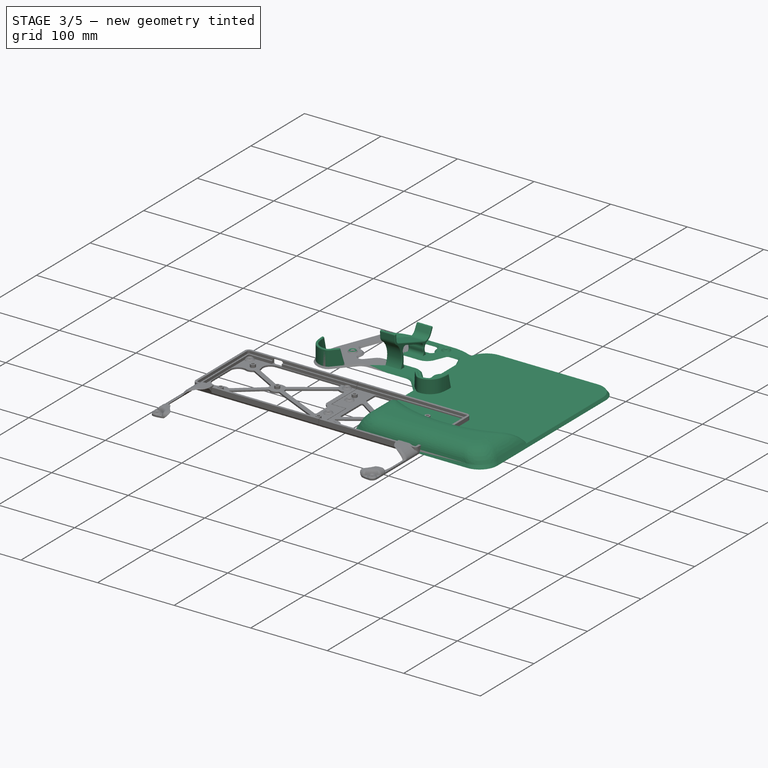
[diagram: stage 3 of 5 — iso view after this stage's code; geometry added in this stage tinted green]
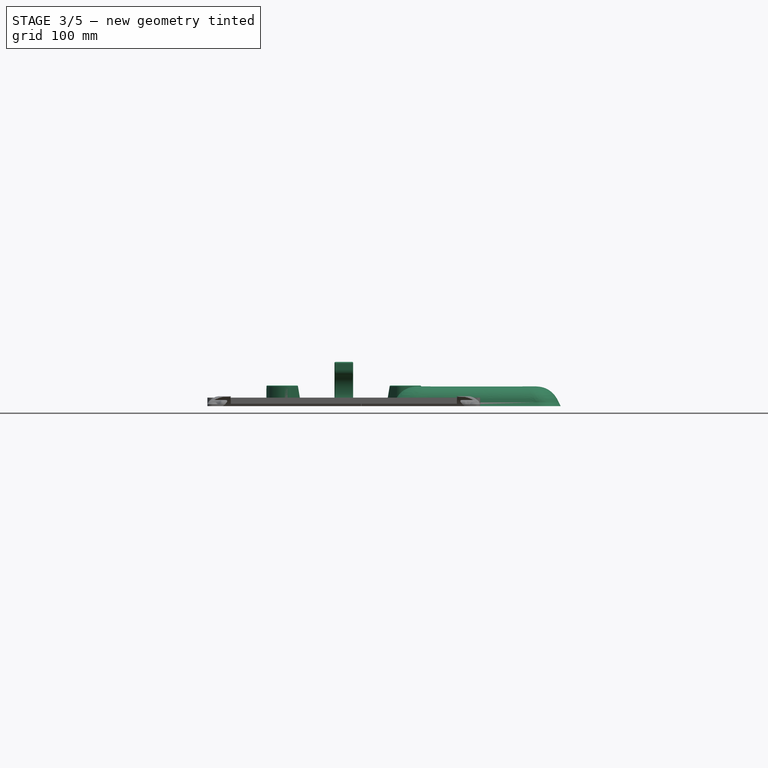
[diagram: stage 3 of 5 — front view after this stage's code; geometry added in this stage tinted green]
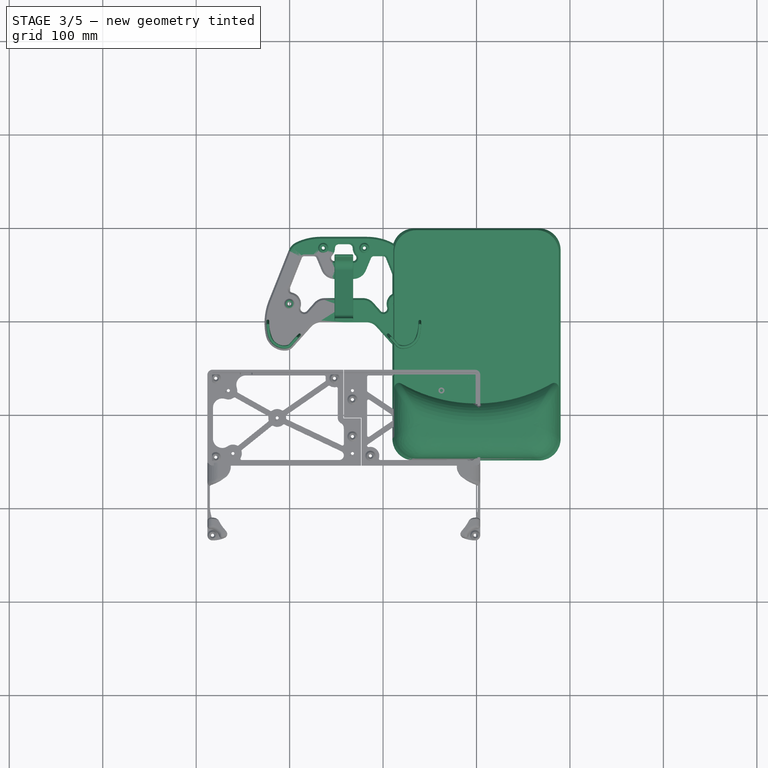
[diagram: stage 3 of 5 — top view after this stage's code; geometry added in this stage tinted green]
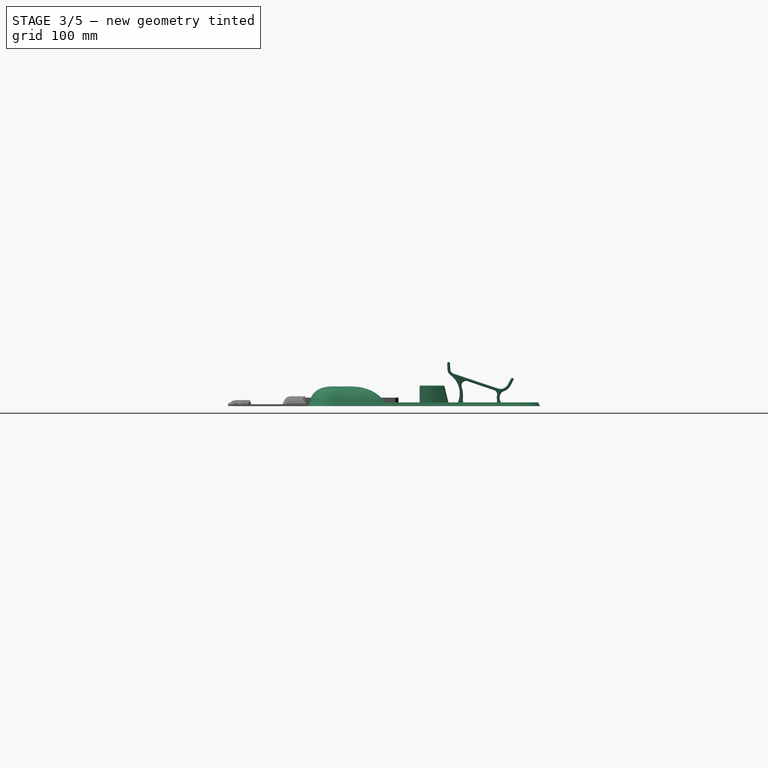
[diagram: stage 3 of 5 — right view after this stage's code; geometry added in this stage tinted green]
FEATURE [PartDesign::Body] Body002  label="cup_plug"
  Group = -> [Binder,Sketch004,Pad002,Thickness,Sketch005,Pad003,Sketch009,Sketch010,AdditiveLoft001,Hole,DatumLine,PolarPattern,PolarPattern001]
  Origin = -> Origin002
  Tip = -> PolarPattern001
FEATURE [Sketcher::SketchObject] Sketch011
  FullyConstrained = true
  MapMode = 5
  Support = -> [XY_Plane004]
  sketch-geometry (13):
    g0: ArcOfCircle CenterX=-66.75 CenterY=-23.25 CenterZ=0 NormalX=0 NormalY=0 NormalZ=1 AngleXU=0 Radius=23.25 StartAngle=1.5708 EndAngle=3.14159
    g1: LineSegment StartX=-66.75 StartY=0 StartZ=0 EndX=66.75 EndY=0 EndZ=0
    g2: ArcOfCircle CenterX=66.75 CenterY=-23.25 CenterZ=0 NormalX=0 NormalY=0 NormalZ=1 AngleXU=0 Radius=23.25 StartAngle=1e-16 EndAngle=1.5708
    g3: LineSegment StartX=90 StartY=-23.25 StartZ=0 EndX=90 EndY=-225.25 EndZ=0
    g4: ArcOfCircle CenterX=66.75 CenterY=-225.25 CenterZ=0 NormalX=0 NormalY=0 NormalZ=1 AngleXU=0 Radius=23.25 StartAngle=4.71239 EndAngle=6.28319
    g5: LineSegment StartX=66.75 StartY=-248.5 StartZ=0 EndX=-66.75 EndY=-248.5 EndZ=0
    g6: ArcOfCircle CenterX=-66.75 CenterY=-225.25 CenterZ=0 NormalX=0 NormalY=0 NormalZ=1 AngleXU=0 Radius=23.25 StartAngle=3.14159 EndAngle=4.71239
    g7: LineSegment StartX=-90 StartY=-225.25 StartZ=0 EndX=-90 EndY=-23.25 EndZ=0
    g8: GeomPoint X=-90 Y=0 Z=0
    g9: GeomPoint X=90 Y=-248.5 Z=0
    g10: LineSegment StartX=0 StartY=0 StartZ=0 EndX=0 EndY=-248.5 EndZ=0
    g11: LineSegment StartX=-90 StartY=-124.25 StartZ=0 EndX=90 EndY=-124.25 EndZ=0
    g12: GeomPoint X=0 Y=-124.25 Z=0
  constraints (31):
    c: Tangent(g0,g1) = 1.5708
    c: Tangent(g1,g2) = 1.5708
    c: Tangent(g2,g3) = 1.5708
    c: Tangent(g3,g4) = 1.5708
    c: Tangent(g4,g5) = 1.5708
    c: Tangent(g5,g6) = 1.5708
    c: Tangent(g6,g7) = 1.5708
    c: Tangent(g7,g0) = 1.5708
    c: Horizontal(g1)
    c: Horizontal(g5)
    c: Vertical(g3)
    c: Vertical(g7)
    c: Equal(g0,g2)
    c: Equal(g2,g4)
    c: Equal(g4,g6)
    c: PointOnObject(g8,g1)
    c: PointOnObject(g8,g7)
    c: PointOnObject(g9,g3)
    c: PointOnObject(g9,g5)
    c: DistanceY(g5,g0) = 248.5  'pad_length'
    c: Symmetric(g0,g1,g-1)
    c: DistanceX(g0,g2) = 180  'pad_width'
    c: DistanceY(g6,g0) = 202  'pad_inner_length'
    c: Coincident(g10,g-1)
    c: PointOnObject(g10,g5)
    c: Vertical(g10)
    c: PointOnObject(g11,g3)
    c: Horizontal(g11)
    c: Symmetric(g0,g6,g11)
    c: PointOnObject(g12,g11)
    c: PointOnObject(g12,g10)
FEATURE [Sketcher::SketchObject] Sketch012
  AttachmentOffset = pos=(0,0,4) rot=(0,0,1;0rad)
  ExternalGeometry = -> [Sketch011]
  FullyConstrained = true
  MapMode = 5
  Placement = pos=(0,0,4) rot=(0,0,1;0rad)
  Support = -> [XY_Plane004]
  expr: Constraints[15] = Sketch011.Constraints.pad_length - 2 * 2 mm
  expr: Constraints[28] = .Constraints.gap_in
  sketch-geometry (12):
    g0: ArcOfCircle CenterX=-64.3358 CenterY=-25.6642 CenterZ=0 NormalX=0 NormalY=0 NormalZ=1 AngleXU=0 Radius=23.6642 StartAngle=1.5708 EndAngle=3.14159
    g1: LineSegment StartX=-64.3358 StartY=-2 StartZ=0 EndX=64.3358 EndY=-2 EndZ=0
    g2: ArcOfCircle CenterX=64.3358 CenterY=-25.6642 CenterZ=0 NormalX=0 NormalY=0 NormalZ=1 AngleXU=0 Radius=23.6642 StartAngle=1e-16 EndAngle=1.5708
    g3: LineSegment StartX=88 StartY=-25.6642 StartZ=0 EndX=88 EndY=-222.836 EndZ=0
    g4: ArcOfCircle CenterX=64.3358 CenterY=-222.836 CenterZ=0 NormalX=0 NormalY=0 NormalZ=1 AngleXU=0 Radius=23.6642 StartAngle=4.71239 EndAngle=6.28319
    g5: LineSegment StartX=64.3358 StartY=-246.5 StartZ=0 EndX=-64.3358 EndY=-246.5 EndZ=0
    g6: ArcOfCircle CenterX=-64.3358 CenterY=-222.836 CenterZ=0 NormalX=0 NormalY=0 NormalZ=1 AngleXU=0 Radius=23.6642 StartAngle=3.14159 EndAngle=4.71239
    g7: LineSegment StartX=-88 StartY=-222.836 StartZ=0 EndX=-88 EndY=-25.6642 EndZ=0
    g8: GeomPoint X=-88 Y=-2 Z=0
    g9: GeomPoint X=88 Y=-246.5 Z=0
    g10: LineSegment StartX=-81.0689 StartY=-8.93109 StartZ=0 EndX=-83.1902 EndY=-6.80977 EndZ=0
    g11: LineSegment StartX=-88 StartY=-25.6642 StartZ=0 EndX=-64.3358 EndY=-25.6642 EndZ=0
  constraints (29):
    c: Tangent(g0,g1) = 1.5708
    c: Tangent(g1,g2) = 1.5708
    c: Tangent(g2,g3) = 1.5708
    c: Tangent(g3,g4) = 1.5708
    c: Tangent(g4,g5) = 1.5708
    c: Tangent(g5,g6) = 1.5708
    c: Tangent(g6,g7) = 1.5708
    c: Tangent(g7,g0) = 1.5708
    c: Horizontal(g5)
    c: Vertical(g3)
    c: Vertical(g7)
    c: PointOnObject(g8,g1)
    c: PointOnObject(g8,g7)
    c: PointOnObject(g9,g3)
    c: PointOnObject(g9,g5)
    c: DistanceY(g5,g0) = 244.5
    c: Symmetric(g0,g1,g-2)
    c: DistanceY(g0,g-1) = 2  'gap_in'
    c: Equal(g0,g2)
    c: Equal(g0,g6)
    c: Equal(g0,g4)
    c: PointOnObject(g10,g0)
    c: PointOnObject(g10,g-4)
    c: Distance(g10) = 3
    c: Perpendicular(g0,g10)
    c: Coincident(g11,g0)
    c: Coincident(g11,g0)
    c: Angle(g10,g11) = 0.785398
    c: DistanceX(g-4,g0) = 2
FEATURE [PartDesign::AdditiveLoft] AdditiveLoft002
  Closed = false
  Profile = -> Sketch011
  Ruled = false
  Sections = -> [Sketch012]
FEATURE [Sketcher::SketchObject] Sketch013
  AttachmentOffset = pos=(0,0,4) rot=(0,0,1;0rad)
  ExternalGeometry = -> [AdditiveLoft002]
  FullyConstrained = true
  MapMode = 5
  Placement = pos=(0,0,4) rot=(0,0,1;0rad)
  Support = -> [XY_Plane004]
  sketch-geometry (11):
    g0: ArcOfCircle CenterX=-64.3358 CenterY=-222.836 CenterZ=0 NormalX=0 NormalY=0 NormalZ=1 AngleXU=0 Radius=23.6642 StartAngle=3.14159 EndAngle=4.71239
    g1: LineSegment StartX=-88 StartY=-222.836 StartZ=0 EndX=-88 EndY=-170.5 EndZ=0
    g2: ArcOfCircle CenterX=-83 CenterY=-170.5 CenterZ=0 NormalX=0 NormalY=0 NormalZ=1 AngleXU=0 Radius=5 StartAngle=1.05259 EndAngle=3.14159
    g3: ArcOfCircle CenterX=83 CenterY=-170.5 CenterZ=0 NormalX=0 NormalY=0 NormalZ=1 AngleXU=0 Radius=5 StartAngle=1.6e-15 EndAngle=2.089
    g4: LineSegment StartX=88 StartY=-170.5 StartZ=0 EndX=88 EndY=-222.836 EndZ=0
    g5: ArcOfCircle CenterX=64.3358 CenterY=-222.836 CenterZ=0 NormalX=0 NormalY=0 NormalZ=1 AngleXU=0 Radius=23.6642 StartAngle=4.71239 EndAngle=6.28319
    g6: LineSegment StartX=64.3358 StartY=-246.5 StartZ=0 EndX=-64.3358 EndY=-246.5 EndZ=0
    g7: GeomPoint X=-88 Y=-246.5 Z=0
    g8: ArcOfCircle CenterX=-2.18e-14 CenterY=-24.9318 CenterZ=0 NormalX=0 NormalY=0 NormalZ=1 AngleXU=0 Radius=162.568 StartAngle=4.19418 EndAngle=5.23059
    g9: GeomPoint X=0 Y=-187.5 Z=0
    g10: LineSegment StartX=-83 StartY=-170.5 StartZ=0 EndX=-83 EndY=-165.5 EndZ=0
  constraints (25):
    c: Tangent(g0,g1) = 1.5708
    c: Tangent(g1,g2) = 1.5708
    c: Tangent(g3,g4) = 1.5708
    c: Tangent(g4,g5) = 1.5708
    c: Tangent(g5,g6) = 1.5708
    c: Tangent(g6,g0) = 1.5708
    c: Vertical(g4)
    c: PointOnObject(g7,g1)
    c: PointOnObject(g7,g6)
    c: Coincident(g0,g-4)
    c: Coincident(g5,g-5)
    c: Coincident(g0,g-4)
    c: Equal(g0,g5)
    c: Radius(g2) = 5
    c: Equal(g2,g3)
    c: PointOnObject(g9,g8)
    c: PointOnObject(g9,g-2)
    c: Coincident(g10,g2)
    c: PointOnObject(g10,g2)
    c: Vertical(g10)
    c: DistanceY(g9,g10) = 22
    c: Horizontal(g2,g3)
    c: DistanceY(g0,g10) = 81
    c: Tangent(g8,g2) = 1.5708
    c: Tangent(g8,g3) = 1.5708
FEATURE [Sketcher::SketchObject] Sketch014
  AttachmentOffset = pos=(0,0,8) rot=(0,0,1;0rad)
  ExternalGeometry = -> [AdditiveLoft002,Sketch013]
  FullyConstrained = true
  MapMode = 5
  Placement = pos=(0,0,8) rot=(0,0,1;0rad)
  Support = -> [XY_Plane004]
  expr: .Constraints.gap_in = 2 mm
  expr: Constraints[20] = .Constraints.gap_in
  expr: Constraints[31] = .Constraints.gap_in
  sketch-geometry (13):
    g0: ArcOfCircle CenterX=-81 CenterY=-173.903 CenterZ=0 NormalX=0 NormalY=0 NormalZ=1 AngleXU=0 Radius=5 StartAngle=1.07278 EndAngle=3.14159
    g1: ArcOfCircle CenterX=81 CenterY=-173.903 CenterZ=0 NormalX=0 NormalY=0 NormalZ=1 AngleXU=0 Radius=5 StartAngle=2.8e-15 EndAngle=2.06881
    g2: LineSegment StartX=86 StartY=-173.903 StartZ=0 EndX=86 EndY=-221.836 EndZ=0
    g3: ArcOfCircle CenterX=4.76e-14 CenterY=-24.9318 CenterZ=0 NormalX=0 NormalY=0 NormalZ=1 AngleXU=0 Radius=164.568 StartAngle=4.21437 EndAngle=5.21041
    g4: GeomPoint X=0 Y=-189.5 Z=0
    g5: LineSegment StartX=-81 StartY=-173.903 StartZ=0 EndX=-81 EndY=-168.903 EndZ=0
    g6: LineSegment StartX=-86 StartY=-173.903 StartZ=0 EndX=-86 EndY=-221.836 EndZ=0
    g7: ArcOfCircle CenterX=-62.3358 CenterY=-221.836 CenterZ=0 NormalX=0 NormalY=0 NormalZ=1 AngleXU=0 Radius=23.6642 StartAngle=3.14159 EndAngle=4.71239
    g8: LineSegment StartX=-62.3358 StartY=-245.5 StartZ=0 EndX=62.3358 EndY=-245.5 EndZ=0
    g9: ArcOfCircle CenterX=62.3358 CenterY=-221.836 CenterZ=0 NormalX=0 NormalY=0 NormalZ=1 AngleXU=0 Radius=23.6642 StartAngle=4.71239 EndAngle=6.28319
    g10: GeomPoint X=0 Y=-187.5 Z=0
    g11: GeomPoint X=-83 Y=-165.5 Z=0
    g12: LineSegment StartX=-78.6116 StartY=-169.51 StartZ=0 EndX=-77.6562 EndY=-167.753 EndZ=0
  constraints (32):
    c: Tangent(g1,g2) = 1.5708
    c: Vertical(g2)
    c: Radius(g0) = 5
    c: Equal(g0,g1)
    c: PointOnObject(g4,g3)
    c: PointOnObject(g4,g-2)
    c: Coincident(g5,g0)
    c: PointOnObject(g5,g0)
    c: Vertical(g5)
    c: Tangent(g3,g0) = 1.5708
    c: Tangent(g3,g1) = 1.5708
    c: Vertical(g6)
    c: Tangent(g6,g7) = -1.5708
    c: Horizontal(g8)
    c: Tangent(g8,g9) = -1.5708
    c: Tangent(g7,g8) = -1.5708
    c: Tangent(g9,g2) = 1.5708
    c: Tangent(g6,g0) = -1.5708
    c: Equal(g7,g9)
    c: Symmetric(g0,g1,g-2)
    c: DistanceX(g-7,g0) = 2
    c: DistanceY(g-4,g7) = 1
    c: Equal(g-4,g7)
    c: PointOnObject(g10,g-6)
    c: PointOnObject(g10,g-2)
    c: DistanceY(g4,g10) = 2  'gap_in'
    c: PointOnObject(g11,g-7)
    c: Vertical(g11,g-7)
    c: Coincident(g12,g0)
    c: PointOnObject(g12,g-6)
    c: Perpendicular(g-6,g12)
    c: Distance(g12) = 2
FEATURE [Sketcher::SketchObject] Sketch015
  AttachmentOffset = pos=(0,0,21) rot=(0,0,1;0rad)
  ExternalGeometry = -> [AdditiveLoft002,Sketch013]
  FullyConstrained = true
  MapMode = 5
  Placement = pos=(0,0,21) rot=(0,0,1;0rad)
  Support = -> [XY_Plane004]
  expr: .AttachmentOffset.Base.z = 21 mm
  expr: Constraints[20] = .Constraints.gap_in
  expr: Constraints[24] = .Constraints.gap_in
  expr: Constraints[30] = .Constraints.gap_in
  sketch-geometry (13):
    g0: ArcOfCircle CenterX=-58 CenterY=-208.558 CenterZ=0 NormalX=0 NormalY=0 NormalZ=1 AngleXU=0 Radius=2 StartAngle=1.26485 EndAngle=3.14159
    g1: ArcOfCircle CenterX=58 CenterY=-208.558 CenterZ=0 NormalX=0 NormalY=0 NormalZ=1 AngleXU=0 Radius=2 StartAngle=4.3e-15 EndAngle=1.87674
    g2: LineSegment StartX=60 StartY=-208.558 StartZ=0 EndX=60 EndY=-210.5 EndZ=0
    g3: ArcOfCircle CenterX=-2.2e-15 CenterY=-24.9318 CenterZ=0 NormalX=0 NormalY=0 NormalZ=1 AngleXU=0 Radius=190.568 StartAngle=4.40645 EndAngle=5.01833
    g4: GeomPoint X=0 Y=-215.5 Z=0
    g5: LineSegment StartX=-58 StartY=-208.558 StartZ=0 EndX=-58 EndY=-206.558 EndZ=0
    g6: LineSegment StartX=-60 StartY=-208.558 StartZ=0 EndX=-60 EndY=-210.5 EndZ=0
    g7: ArcOfCircle CenterX=-52 CenterY=-210.5 CenterZ=0 NormalX=0 NormalY=0 NormalZ=1 AngleXU=0 Radius=8 StartAngle=3.14159 EndAngle=4.71239
    g8: LineSegment StartX=-52 StartY=-218.5 StartZ=0 EndX=52 EndY=-218.5 EndZ=0
    g9: ArcOfCircle CenterX=52 CenterY=-210.5 CenterZ=0 NormalX=0 NormalY=0 NormalZ=1 AngleXU=0 Radius=8 StartAngle=4.71239 EndAngle=6.28319
    g10: GeomPoint X=0 Y=-187.5 Z=0
    g11: GeomPoint X=-83 Y=-165.5 Z=0
    g12: LineSegment StartX=-57.3976 StartY=-206.651 StartZ=0 EndX=-48.9642 EndY=-179.951 EndZ=0
  constraints (32):
    c: Tangent(g1,g2) = 1.5708
    c: Vertical(g2)
    c: Radius(g0) = 2
    c: Equal(g0,g1)
    c: PointOnObject(g4,g3)
    c: PointOnObject(g4,g-2)
    c: Coincident(g5,g0)
    c: PointOnObject(g5,g0)
    c: Vertical(g5)
    c: Tangent(g3,g0) = 1.5708
    c: Tangent(g3,g1) = 1.5708
    c: Vertical(g6)
    c: Tangent(g6,g7) = -1.5708
    c: Horizontal(g8)
    c: Tangent(g8,g9) = -1.5708
    c: Tangent(g7,g8) = -1.5708
    c: Tangent(g9,g2) = 1.5708
    c: Tangent(g6,g0) = -1.5708
    c: Equal(g7,g9)
    c: Symmetric(g0,g1,g-2)
    c: DistanceX(g-7,g0) = 28
    c: DistanceY(g-4,g7) = 28  'gap_in'
    c: PointOnObject(g10,g-6)
    c: PointOnObject(g10,g-2)
    c: DistanceY(g4,g10) = 28
    c: PointOnObject(g11,g-7)
    c: Vertical(g11,g-7)
    c: Coincident(g12,g0)
    c: PointOnObject(g12,g-6)
    c: Perpendicular(g-6,g12)
    c: Distance(g12) = 28
    c: Radius(g7) = 8
FEATURE [PartDesign::AdditiveLoft] AdditiveLoft003
  BaseFeature = -> AdditiveLoft002
  Closed = false
  Profile = -> Sketch013
  Ruled = false
  Sections = -> [Sketch014,Sketch015]
FEATURE [PartDesign::Fillet] Fillet001
  Base = -> AdditiveLoft010 [Edge60]
  BaseFeature = -> AdditiveLoft010
  Radius = 1
  SupportTransform = false
  UseAllEdges = false
FEATURE [Sketcher::SketchObject] Sketch036
  ExternalGeometry = -> [Binder003,Fillet001]
  FullyConstrained = false
  MapMode = 5
  Placement = pos=(-155,-84.0173,29.2842) rot=(0.702461,-0.114442,-0.702461;2.9137rad)
  Support = -> [DatumPlane001]
  expr: Constraints[37] = .Constraints.wall_width
  expr: Constraints[49] = .Constraints.wall_width
  expr: Constraints[69] = .Constraints.wall_width
  expr: Constraints[75] = .Constraints.wall_width
  expr: Constraints[79] = .Constraints.wall_width
  sketch-geometry (43):
    g0: LineSegment StartX=2.52367 StartY=-24.8817 StartZ=0 EndX=2.52367 EndY=25.1946 EndZ=0
    g1: LineSegment StartX=-0.658508 StartY=29.8524 StartZ=0 EndX=-6.68614 EndY=32.2048 EndZ=0
    g2: GeomPoint X=-11.0851 Y=29.6278 Z=0
    g3: LineSegment StartX=1.42825 StartY=24.7442 StartZ=0 EndX=-11.0851 EndY=29.6278 EndZ=0
    g4: ArcOfCircle CenterX=-2.47633 CenterY=25.1946 CenterZ=0 NormalX=0 NormalY=0 NormalZ=1 AngleXU=0 Radius=5 StartAngle=0 EndAngle=1.1987
    g5: LineSegment StartX=1.52367 StartY=-2.33428 StartZ=0 EndX=2.52367 EndY=-2.33428 EndZ=0
    g6: GeomPoint X=-14.108 Y=-45.3818 Z=0
    g7: LineSegment StartX=-4.85806 StartY=-43.8886 StartZ=0 EndX=-14.108 EndY=-45.3818 EndZ=0
    g8: LineSegment StartX=-5.04212 StartY=-33.7667 StartZ=0 EndX=-11.869 EndY=-34.8687 EndZ=0
    g9: ArcOfCircle CenterX=-6.47633 CenterY=-24.8817 CenterZ=0 NormalX=0 NormalY=0 NormalZ=1 AngleXU=0 Radius=9 StartAngle=4.87243 EndAngle=6.28319
    g10: ArcOfCircle CenterX=-6.14079 CenterY=33.6022 CenterZ=0 NormalX=0 NormalY=0 NormalZ=1 AngleXU=0 Radius=1.5 StartAngle=1.1987 EndAngle=4.3403
    g11: LineSegment StartX=-5.59544 StartY=34.9995 StartZ=0 EndX=0.432188 EndY=32.6471 EndZ=0
    g12: ArcOfCircle CenterX=-2.47633 CenterY=25.1946 CenterZ=0 NormalX=0 NormalY=0 NormalZ=1 AngleXU=0 Radius=8 StartAngle=0.309079 EndAngle=1.1987
    g13: ArcOfCircle CenterX=28.0186 CenterY=34.932 CenterZ=0 NormalX=0 NormalY=0 NormalZ=1 AngleXU=0 Radius=24.0118 StartAngle=3.45067 EndAngle=4.90322
    g14: ArcOfCircle CenterX=-0.535354 CenterY=-50.3757 CenterZ=0 NormalX=0 NormalY=0 NormalZ=1 AngleXU=0 Radius=24.0118 StartAngle=0.733972 EndAngle=0.958826
    g15: LineSegment StartX=-4.56405 StartY=-36.7284 StartZ=0 EndX=-11.391 EndY=-37.8304 EndZ=0
    g16: ArcOfCircle CenterX=-11.63 CenterY=-36.3495 CenterZ=0 NormalX=0 NormalY=0 NormalZ=1 AngleXU=0 Radius=1.5 StartAngle=1.73084 EndAngle=4.87243
    g17: LineSegment StartX=-6.68614 StartY=32.2048 StartZ=0 EndX=-5.59544 EndY=34.9995 EndZ=0
    g18: LineSegment StartX=-2.47633 StartY=25.1946 StartZ=0 EndX=5.27104 EndY=23.2 EndZ=0
    g19: GeomPoint X=2.36577 Y=23.948 Z=0
    g20: GeomPoint X=0.46479 Y=29.2381 Z=0
    g21: ArcOfCircle CenterX=-6.47633 CenterY=-24.8817 CenterZ=0 NormalX=0 NormalY=0 NormalZ=1 AngleXU=0 Radius=12 StartAngle=4.87243 EndAngle=5.62125
    g22: ArcOfCircle CenterX=8.93142 CenterY=-36.8875 CenterZ=0 NormalX=0 NormalY=0 NormalZ=1 AngleXU=0 Radius=7.53301 StartAngle=0.958826 EndAngle=2.47966
    g23: LineSegment StartX=-6.47633 StartY=-24.8817 StartZ=0 EndX=-3.89479 EndY=-36.6007 EndZ=0
    g24: GeomPoint X=-4.54017 Y=-33.671 Z=0
    g25: LineSegment StartX=28.0186 StartY=34.932 StartZ=0 EndX=-0.535354 EndY=-50.3757 EndZ=0
    g26: LineSegment StartX=32.5731 StartY=11.3561 StartZ=0 EndX=29.8864 EndY=3.32938 EndZ=0
    g27: ArcOfCircle CenterX=10.3189 CenterY=8.5109 CenterZ=0 NormalX=0 NormalY=0 NormalZ=1 AngleXU=0 Radius=4.7952 StartAngle=0.948695 EndAngle=3.14159
    g28: LineSegment StartX=5.52367 StartY=8.5109 StartZ=0 EndX=5.52367 EndY=-21.6519 EndZ=0
    g29: ArcOfCircle CenterX=10.3189 CenterY=-21.6519 CenterZ=0 NormalX=0 NormalY=0 NormalZ=1 AngleXU=0 Radius=4.7952 StartAngle=3.14159 EndAngle=4.63809
    g30: LineSegment StartX=19.5748 StartY=-27.4774 StartZ=0 EndX=17.2939 EndY=-34.292 EndZ=0
    g31: ArcOfCircle CenterX=31.6242 CenterY=38.2219 CenterZ=0 NormalX=0 NormalY=0 NormalZ=1 AngleXU=0 Radius=31.7652 StartAngle=4.09029 EndAngle=4.49274
    g32: ArcOfCircle CenterX=22.9877 CenterY=-0.463632 CenterZ=0 NormalX=0 NormalY=0 NormalZ=1 AngleXU=0 Radius=7.87267 StartAngle=0.502702 EndAngle=1.35115
    g33: ArcOfCircle CenterX=9.25727 CenterY=-35.914 CenterZ=0 NormalX=0 NormalY=0 NormalZ=1 AngleXU=0 Radius=9.50643 StartAngle=1.04267 EndAngle=1.4965
    g34: ArcOfCircle CenterX=16.635 CenterY=-23.2678 CenterZ=0 NormalX=0 NormalY=0 NormalZ=1 AngleXU=0 Radius=5.13453 StartAngle=4.18427 EndAngle=5.32201
    g35: LineSegment StartX=13.1132 StartY=12.4077 StartZ=0 EndX=14.8615 EndY=14.8457 EndZ=0
    g36: GeomPoint X=11.3225 Y=-29.744 Z=0
    g37: LineSegment StartX=8.93142 StartY=-36.8875 StartZ=0 EndX=12.2747 EndY=-26.8992 EndZ=0
    g38: LineSegment StartX=5.52367 StartY=8.5109 StartZ=0 EndX=2.52367 EndY=8.5109 EndZ=0
    g39: GeomPoint X=0 Y=12 Z=0
    g40: GeomPoint X=0 Y=-24 Z=0
    g41: LineSegment StartX=-4.85806 StartY=-43.8886 StartZ=0 EndX=-6.45513 EndY=-33.9948 EndZ=0
    g42: LineSegment StartX=-6.68614 StartY=32.2048 StartZ=0 EndX=-8.1404 EndY=28.4786 EndZ=0
  constraints (97):
    c: Vertical(g0)
    c: PointOnObject(g2,g-4)
    c: Coincident(g3,g-5)
    c: Coincident(g3,g2)
    c: Parallel(g3,g1)
    c: Tangent(g0,g4) = -1.5708
    c: Tangent(g1,g4) = -1.5708
    c: Coincident(g5,g-3)
    c: PointOnObject(g5,g0)
    c: Horizontal(g5)
    c: Distance(g5) = 1
    c: PointOnObject(g6,g-7)
    c: Coincident(g7,g-6)
    c: Coincident(g7,g6)
    c: Tangent(g0,g9) = -1.5708
    c: Tangent(g8,g9) = 1.5708
    c: Parallel(g7,g8)
    c: Tangent(g1,g10) = 1.5708
    c: Tangent(g11,g12) = 1.5708
    c: Tangent(g12,g13) = 1.5708
    c: Tangent(g15,g16) = 1.5708
    c: PointOnObject(g13,g-8)
    c: PointOnObject(g14,g-8)
    c: Coincident(g17,g1)
    c: Distance(g17) = 3  'wall_width'
    c: Parallel(g1,g11)
    c: Tangent(g10,g11) = 1.5708
    c: Coincident(g17,g10)
    c: Coincident(g18,g4)
    c: PointOnObject(g18,g12)
    c: Radius(g4) = 5
    c: PointOnObject(g12,g18)
    c: PointOnObject(g19,g18)
    c: PointOnObject(g20,g4)
    c: PointOnObject(g19,g4)
    c: Distance(g18,g19) = 3
    c: Equal(g13,g14)
    c: Distance(g8,g15) = 3
    c: Parallel(g8,g15)
    c: Tangent(g16,g8) = -1.5708
    c: Tangent(g21,g15) = 1.5708
    c: Tangent(g22,g21) = 1.5708
    c: Tangent(g22,g14) = -1.5708
    c: Coincident(g23,g9)
    c: PointOnObject(g23,g21)
    c: PointOnObject(g21,g23)
    c: PointOnObject(g24,g9)
    c: PointOnObject(g24,g23)
    c: Radius(g9) = 9
    c: Distance(g24,g23) = 3
    c: Coincident(g25,g13)
    c: Coincident(g25,g14)
    c: Parallel(g25,g-8)
    c: Coincident(g13,g26)
    c: Vertical(g28)
    c: Tangent(g28,g29) = -1.5708
    c: PointOnObject(g30,g-8)
    c: Coincident(g30,g14)
    c: PointOnObject(g32,g-8)
    c: Coincident(g26,g32)
    c: Tangent(g32,g31) = 1.5708
    c: Tangent(g31,g27) = 1.5708
    c: Tangent(g27,g28) = -1.5708
    c: Coincident(g34,g30)
    c: Tangent(g34,g33) = 1.5708
    c: Tangent(g33,g29) = 1.5708
    c: Coincident(g35,g27)
    c: PointOnObject(g35,g13)
    c: Perpendicular(g31,g35)
    c: Distance(g35) = 3
    c: PointOnObject(g36,g22)
    c: Coincident(g37,g22)
    c: PointOnObject(g37,g33)
    c: PointOnObject(g36,g37)
    c: Parallel(g37,g-8)
    c: Distance(g36,g37) = 3
    c: Coincident(g38,g27)
    c: PointOnObject(g38,g0)
    c: Perpendicular(g0,g38)
    c: Distance(g38) = 3
    c: PointOnObject(g39,g-2)
    c: DistanceY(g39,g1) = 17.8524
    c: DistanceY(g-1,g39) = 12
    c: Equal(g29,g27)
    c: PointOnObject(g40,g-2)
    c: DistanceY(g8,g40) = 9.76669
    c: DistanceY(g40,g-1) = 24
    c: DistanceX(g16,g-1) = 11.63
    c: PointOnObject(g33,g37)
    c: Coincident(g41,g7)
    c: PointOnObject(g41,g8)
    c: Perpendicular(g41,g8)
    c: Distance(g41) = 10.0219
    c: Coincident(g42,g1)
    c: PointOnObject(g42,g3)
    c: Perpendicular(g42,g1)
    c: Distance(g42) = 4
FEATURE [PartDesign::Pad] Pad008
  BaseFeature = -> Fillet001
  Direction = (-1,-9.2e-15,3e-16)
  Length = 10
  Length2 = 10
  Profile = -> Sketch036
  ReferenceAxis = -> Sketch036 [N_Axis]
  Type = 0
FEATURE [Sketcher::SketchObject] Sketch037
  AttachmentOffset = pos=(0,0,2) rot=(0,0,1;0rad)
  ExternalGeometry = -> [Pad008]
  FullyConstrained = true
  MapMode = 5
  Placement = pos=(0,0,2) rot=(0,0,1;0rad)
  Support = -> [XY_Plane017]
  sketch-geometry (1):
    g0: Circle CenterX=-177 CenterY=-37.0447 CenterZ=0 NormalX=0 NormalY=0 NormalZ=1 AngleXU=0 Radius=5.5
  constraints (3):
    c: Diameter(g0) = 11
    c: DistanceY(g0,g-3) = 10
    c: DistanceX(g0,g-4) = 12
FEATURE [Sketcher::SketchObject] Sketch038
  AttachmentOffset = pos=(0,0,4) rot=(0,0,1;0rad)
  ExternalGeometry = -> [Sketch037]
  FullyConstrained = true
  MapMode = 5
  Placement = pos=(0,0,4) rot=(0,0,1;0rad)
  Support = -> [XY_Plane017]
  sketch-geometry (1):
    g0: Circle CenterX=-177 CenterY=-37.0447 CenterZ=0 NormalX=0 NormalY=0 NormalZ=1 AngleXU=0 Radius=4
  constraints (2):
    c: Coincident(g0,g-3)
    c: Diameter(g0) = 8
FEATURE [PartDesign::AdditiveLoft] AdditiveLoft011
  BaseFeature = -> Pad008
  Closed = false
  Profile = -> Sketch037
  Ruled = true
  Sections = -> [Sketch038]
FEATURE [PartDesign::Hole] Hole004
  BaseFeature = -> AdditiveLoft011
  CustomThreadClearance = 0
  Depth = 25
  DepthType = 0
  Diameter = 3.3
  DrillForDepth = false
  DrillPoint = 1
  DrillPointAngle = 118
  HoleCutCountersinkAngle = 90
  HoleCutCustomValues = false
  HoleCutDepth = 0
  HoleCutDiameter = 6.5
  HoleCutType = 2
  ModelThread = false
  Profile = -> AdditiveLoft011 [Face59]
  Tapered = false
  TaperedAngle = 90
  ThreadClass = 0
  ThreadDepth = 25
  ThreadDepthType = 0
  ThreadDirection = 0
  ThreadFit = 0
  ThreadSize = 3
  ThreadType = 3
  Threaded = false
  UseCustomThreadClearance = false
FEATURE [Sketcher::SketchObject] Sketch039
  AttachmentOffset = pos=(0,0,2) rot=(0,0,1;0rad)
  ExternalGeometry = -> [Hole004]
  FullyConstrained = true
  MapMode = 5
  Placement = pos=(0,0,2) rot=(0,0,1;0rad)
  Support = -> [XY_Plane017]
  sketch-geometry (2):
    g0: Circle CenterX=-213.277 CenterY=-96.8943 CenterZ=0 NormalX=0 NormalY=0 NormalZ=1 AngleXU=0 Radius=5.5
    g1: LineSegment StartX=-218.277 StartY=-126.221 StartZ=0 EndX=-218.277 EndY=-146.894 EndZ=0
  constraints (6):
    c: Diameter(g0) = 11
    c: Coincident(g1,g-3)
    c: PointOnObject(g1,g-3)
    c: Vertical(g1)
    c: DistanceY(g1,g0) = 50
    c: DistanceX(g1,g0) = 5
FEATURE [Sketcher::SketchObject] Sketch040
  AttachmentOffset = pos=(0,0,4) rot=(0,0,1;0rad)
  ExternalGeometry = -> [Sketch039]
  FullyConstrained = true
  MapMode = 5
  Placement = pos=(0,0,4) rot=(0,0,1;0rad)
  Support = -> [XY_Plane017]
  sketch-geometry (1):
    g0: Circle CenterX=-213.277 CenterY=-96.8943 CenterZ=0 NormalX=0 NormalY=0 NormalZ=1 AngleXU=0 Radius=4
  constraints (2):
    c: Coincident(g0,g-3)
    c: Diameter(g0) = 8
FEATURE [PartDesign::AdditiveLoft] AdditiveLoft012
  BaseFeature = -> Hole004
  Closed = false
  Profile = -> Sketch039
  Ruled = true
  Sections = -> [Sketch040]
FEATURE [PartDesign::Hole] Hole005
  BaseFeature = -> AdditiveLoft012
  CustomThreadClearance = 0
  Depth = 25
  DepthType = 0
  Diameter = 3.3
  DrillForDepth = false
  DrillPoint = 1
  DrillPointAngle = 118
  HoleCutCountersinkAngle = 90
  HoleCutCustomValues = false
  HoleCutDepth = 0
  HoleCutDiameter = 6.5
  HoleCutType = 2
  ModelThread = false
  Profile = -> AdditiveLoft012 [Face62]
  Tapered = false
  TaperedAngle = 90
  ThreadClass = 0
  ThreadDepth = 25
  ThreadDepthType = 0
  ThreadDirection = 0
  ThreadFit = 0
  ThreadSize = 3
  ThreadType = 3
  Threaded = false
  UseCustomThreadClearance = false
FEATURE [Sketcher::SketchObject] Sketch041
  AttachmentOffset = pos=(0,0,2) rot=(0,0,1;0rad)
  ExternalGeometry = -> [DatumPlane001,Hole005]
  FullyConstrained = false
  MapMode = 5
  Placement = pos=(0,0,2) rot=(0,0,1;0rad)
  Support = -> [XY_Plane017]
  sketch-geometry (22):
    g0: LineSegment StartX=-155 StartY=-92.6607 StartZ=0 EndX=-175.511 EndY=-92.6607 EndZ=0
    g1: ArcOfCircle CenterX=-175.511 CenterY=-105.365 CenterZ=0 NormalX=0 NormalY=0 NormalZ=1 AngleXU=0 Radius=12.7045 StartAngle=1.5708 EndAngle=2.41244
    g2: LineSegment StartX=-184.985 StartY=-96.901 StartZ=0 EndX=-192.902 EndY=-105.762 EndZ=0
    g3: ArcOfCircle CenterX=-197.427 CenterY=-101.719 CenterZ=0 NormalX=0 NormalY=0 NormalZ=1 AngleXU=0 Radius=6.06813 StartAngle=2.84611 EndAngle=5.55403
    g4: ArcOfCircle CenterX=-213.277 CenterY=-96.8943 CenterZ=0 NormalX=0 NormalY=0 NormalZ=1 AngleXU=0 Radius=10.5 StartAngle=5.9877 EndAngle=7.63048
    g5: ArcOfCircle CenterX=-209.762 CenterY=-81.4285 CenterZ=0 NormalX=0 NormalY=0 NormalZ=1 AngleXU=0 Radius=5.3602 StartAngle=2.70794 EndAngle=4.48889
    g6: LineSegment StartX=-214.626 StartY=-79.1762 StartZ=0 EndX=-201.936 EndY=-47.2234 EndZ=0
    g7: ArcOfCircle CenterX=-196.954 CenterY=-49.2018 CenterZ=0 NormalX=0 NormalY=0 NormalZ=1 AngleXU=0 Radius=5.3602 StartAngle=1.5708 EndAngle=2.76356
    g8: LineSegment StartX=-196.954 StartY=-43.8416 StartZ=0 EndX=-187.186 EndY=-43.8416 EndZ=0
    g9: ArcOfCircle CenterX=-187.186 CenterY=-49.2018 CenterZ=0 NormalX=0 NormalY=0 NormalZ=1 AngleXU=0 Radius=5.3602 StartAngle=0.39506 EndAngle=1.5708
    g10: LineSegment StartX=-182.238 StartY=-47.1388 StartZ=0 EndX=-176.726 EndY=-60.359 EndZ=0
    g11: ArcOfCircle CenterX=-165 CenterY=-55.4695 CenterZ=0 NormalX=0 NormalY=0 NormalZ=1 AngleXU=0 Radius=12.7045 StartAngle=3.53665 EndAngle=4.71239
    g12: LineSegment StartX=-165 StartY=-68.174 StartZ=0 EndX=-155 EndY=-68.174 EndZ=0
    g13: LineSegment StartX=-201.936 StartY=-47.2234 StartZ=0 EndX=-213.089 EndY=-42.7942 EndZ=0
    g14: LineSegment StartX=-213.277 StartY=-96.8943 StartZ=0 EndX=-210.95 EndY=-86.6554 EndZ=0
    g15: LineSegment StartX=-213.277 StartY=-96.8943 StartZ=0 EndX=-203.232 EndY=-99.9519 EndZ=0
    g16: GeomPoint X=-212.058 Y=-91.5311 Z=0
    g17: GeomPoint X=-208.015 Y=-98.4959 Z=0
    g18: LineSegment StartX=-177 StartY=-37.0447 StartZ=0 EndX=-183.743 EndY=-45.0931 EndZ=0
    g19: GeomPoint X=-180.532 Y=-41.2605 Z=0
    g20: LineSegment StartX=-183.743 StartY=-45.0931 StartZ=0 EndX=-187.186 EndY=-49.2018 EndZ=0
    g21: LineSegment StartX=-155 StartY=-68.174 StartZ=0 EndX=-155 EndY=-92.6607 EndZ=0
  constraints (50):
    c: PointOnObject(g0,g-3)
    c: Horizontal(g0)
    c: Tangent(g0,g1) = -1.5708
    c: Tangent(g2,g1) = -1.5708
    c: Tangent(g2,g3) = 1.5708
    c: Tangent(g3,g4) = 1.5708
    c: Tangent(g4,g5) = 1.5708
    c: Coincident(g5,g6)
    c: Tangent(g6,g7) = 1.5708
    c: Horizontal(g8)
    c: Tangent(g8,g9) = 1.5708
    c: Tangent(g10,g11) = -1.5708
    c: PointOnObject(g12,g-3)
    c: Coincident(g13,g6)
    c: PointOnObject(g13,g-6)
    c: Perpendicular(g13,g-6)
    c: Distance(g13) = 12
    c: Coincident(g14,g-4)
    c: Coincident(g14,g4)
    c: Coincident(g15,g14)
    c: Coincident(g15,g3)
    c: PointOnObject(g16,g-4)
    c: PointOnObject(g17,g-4)
    c: PointOnObject(g16,g14)
    c: PointOnObject(g17,g15)
    c: Distance(g16,g4) = 5
    c: Tangent(g12,g11) = -1.5708
    c: Horizontal(g12)
    c: DistanceY(g12,g-8) = 4
    c: DistanceY(g-7,g0) = 4
    c: Equal(g7,g9)
    c: Tangent(g7,g8) = 1.5708
    c: Coincident(g18,g-5)
    c: PointOnObject(g18,g9)
    c: PointOnObject(g19,g-5)
    c: PointOnObject(g19,g18)
    c: Distance(g19,g18) = 5
    c: Coincident(g11,g12)
    c: Equal(g11,g1)
    c: Tangent(g10,g9) = 1.5708
    c: Vertical(g11,g-8)
    c: Equal(g7,g5)
    c: Parallel(g6,g-6)
    c: Parallel(g-9,g2)
    c: Coincident(g4,g14)
    c: Coincident(g20,g18)
    c: Coincident(g20,g9)
    c: Parallel(g18,g20)
    c: Coincident(g21,g12)
    c: Coincident(g21,g0)
FEATURE [PartDesign::Pocket] Pocket002
  BaseFeature = -> Hole005
  Direction = (0,0,-1)
  Length = 5
  Length2 = 5
  Profile = -> Sketch041
  ReferenceAxis = -> Sketch041 [N_Axis]
  TaperAngle = -45
  Type = 0
FEATURE [Sketcher::SketchObject] Sketch042
  ExternalGeometry = -> [Pocket002]
  FullyConstrained = true
  MapMode = 5
  Placement = pos=(-155,-84.0173,29.2842) rot=(0.702461,-0.114442,-0.702461;2.9137rad)
  Support = -> [DatumPlane001]
  sketch-geometry (4):
    g0: LineSegment StartX=28.6168 StartY=-0.463776 StartZ=0 EndX=29.8785 EndY=-2.99517 EndZ=0
    g1: LineSegment StartX=29.8785 StartY=-2.99517 StartZ=0 EndX=23.3759 EndY=-22.4225 EndZ=0
    g2: LineSegment StartX=23.3759 StartY=-22.4225 StartZ=0 EndX=20.8445 EndY=-23.6843 EndZ=0
    g3: LineSegment StartX=20.8445 StartY=-23.6843 StartZ=0 EndX=28.6168 EndY=-0.463776 EndZ=0
  constraints (8):
    c: Coincident(g0,g-5)
    c: Coincident(g0,g-5)
    c: Coincident(g1,g0)
    c: Coincident(g1,g-6)
    c: Coincident(g2,g1)
    c: Coincident(g2,g-6)
    c: Coincident(g3,g2)
    c: Coincident(g3,g0)
FEATURE [PartDesign::Pocket] Pocket003
  BaseFeature = -> Pocket002
  Direction = (1,9.2e-15,-3e-16)
  Length = 5
  Length2 = 5
  Profile = -> Sketch042
  ReferenceAxis = -> Sketch042 [N_Axis]
  Reversed = true
  Type = 0
FEATURE [Sketcher::SketchObject] Sketch043
  AttachmentOffset = pos=(0,0,2) rot=(0,0,1;0rad)
  ExternalGeometry = -> [Pocket003,DatumPlane001]
  FullyConstrained = false
  MapMode = 5
  Placement = pos=(0,0,2) rot=(0,0,1;0rad)
  Support = -> [XY_Plane017]
  sketch-geometry (8):
    g0: LineSegment StartX=-155 StartY=-52.9878 StartZ=0 EndX=-165 EndY=-52.9878 EndZ=0
    g1: ArcOfCircle CenterX=-165 CenterY=-47.4927 CenterZ=0 NormalX=0 NormalY=0 NormalZ=1 AngleXU=0 Radius=5.49516 StartAngle=2.56721 EndAngle=4.71239
    g2: ArcOfCircle CenterX=-177 CenterY=-37.0447 CenterZ=0 NormalX=0 NormalY=0 NormalZ=1 AngleXU=0 Radius=10.5 StartAngle=5.49269 EndAngle=6.26833
    g3: ArcOfCircle CenterX=-160.253 CenterY=-37.2934 CenterZ=0 NormalX=0 NormalY=0 NormalZ=1 AngleXU=0 Radius=6.24872 StartAngle=1.5708 EndAngle=3.12674
    g4: LineSegment StartX=-160.253 StartY=-31.0447 StartZ=0 EndX=-155 EndY=-31.0447 EndZ=0
    g5: LineSegment StartX=-177 StartY=-37.0447 StartZ=0 EndX=-166.5 EndY=-37.0447 EndZ=0
    g6: GeomPoint X=-171.5 Y=-37.0447 Z=0
    g7: LineSegment StartX=-155 StartY=-31.0447 StartZ=0 EndX=-155 EndY=-52.9878 EndZ=0
  constraints (20):
    c: PointOnObject(g0,g-6)
    c: Horizontal(g0)
    c: Tangent(g0,g1) = 1.5708
    c: Tangent(g2,g3) = 1.5708
    c: Horizontal(g4)
    c: PointOnObject(g4,g-6)
    c: Coincident(g2,g-7)
    c: Coincident(g5,g2)
    c: PointOnObject(g5,g2)
    c: Horizontal(g5)
    c: PointOnObject(g6,g-7)
    c: PointOnObject(g6,g5)
    c: DistanceY(g-4,g0) = 4
    c: Tangent(g3,g4) = 1.5708
    c: DistanceY(g4,g-3) = 4
    c: Distance(g6,g5) = 5
    c: Vertical(g0,g-4)
    c: Coincident(g7,g4)
    c: Coincident(g7,g0)
    c: Coincident(g1,g2)
FEATURE [PartDesign::Pocket] Pocket004
  BaseFeature = -> Pocket003
  Direction = (0,0,-1)
  Length = 5
  Length2 = 5
  Profile = -> Sketch043
  ReferenceAxis = -> Sketch043 [N_Axis]
  TaperAngle = -45
  Type = 0
FEATURE [Sketcher::SketchObject] Sketch044
  ExternalGeometry = -> [Pocket004]
  FullyConstrained = true
  MapMode = 5
  Placement = pos=(-155,-84.0173,29.2842) rot=(0.702461,-0.114442,-0.702461;2.9137rad)
  Support = -> [DatumPlane001]
  sketch-geometry (4):
    g0: LineSegment StartX=16.0243 StartY=-38.0852 StartZ=0 EndX=9.05931 EndY=-58.8936 EndZ=0
    g1: LineSegment StartX=9.05931 StartY=-58.8936 StartZ=0 EndX=11.5907 EndY=-57.6319 EndZ=0
    g2: LineSegment StartX=11.5907 StartY=-57.6319 StartZ=0 EndX=17.286 EndY=-40.6166 EndZ=0
    g3: LineSegment StartX=17.286 StartY=-40.6166 StartZ=0 EndX=16.0243 EndY=-38.0852 EndZ=0
  constraints (8):
    c: Coincident(g0,g-3)
    c: Coincident(g0,g-4)
    c: Coincident(g0,g1)
    c: Coincident(g1,g-4)
    c: Coincident(g1,g2)
    c: Coincident(g2,g-3)
    c: Coincident(g2,g3)
    c: Coincident(g3,g0)
FEATURE [PartDesign::Pocket] Pocket005
  BaseFeature = -> Pocket004
  Direction = (1,9.2e-15,-3e-16)
  Length = 2
  Length2 = 5
  Profile = -> Sketch044
  ReferenceAxis = -> Sketch044 [N_Axis]
  Reversed = true
  Type = 0
FEATURE [PartDesign::Fillet] Fillet002
  Base = -> Pocket005 [Edge193,Edge178]
  BaseFeature = -> Pocket005
  Radius = 1
  SupportTransform = false
  UseAllEdges = false
FEATURE [PartDesign::Body] Body007  label="xbox_controller_holder"
  Group = -> [Binder003,DatumPlane001,Sketch032,Sketch033,AdditiveLoft009,Sketch034,Sketch035,AdditiveLoft010,Fillet001,Sketch036,Pad008,Sketch037,Sketch038,AdditiveLoft011,Hole004,Sketch039,Sketch040,AdditiveLoft012,Hole005,Sketch041,Pocket002,Sketch042,Pocket003,Sketch043,Pocket004,Sketch044,Pocket005,Fillet002]
  Origin = -> Origin017
  Tip = -> Fillet002
FEATURE [Part::Mirroring] Part__Mirroring  label="xbox_controller_holder (Mirror #1)"
  Base = (0,0,0)
  Normal = (1,0,0)
  Placement = pos=(-310,0,0) rot=(0,0,1;0rad)
  Source = -> Body007
FEATURE [Part::MultiFuse] Fusion  label="xbox_controller_holder_final"
  Placement = pos=(13,16,0) rot=(0,0,1;0rad)
  Shapes = -> [Part__Mirroring,Body007]
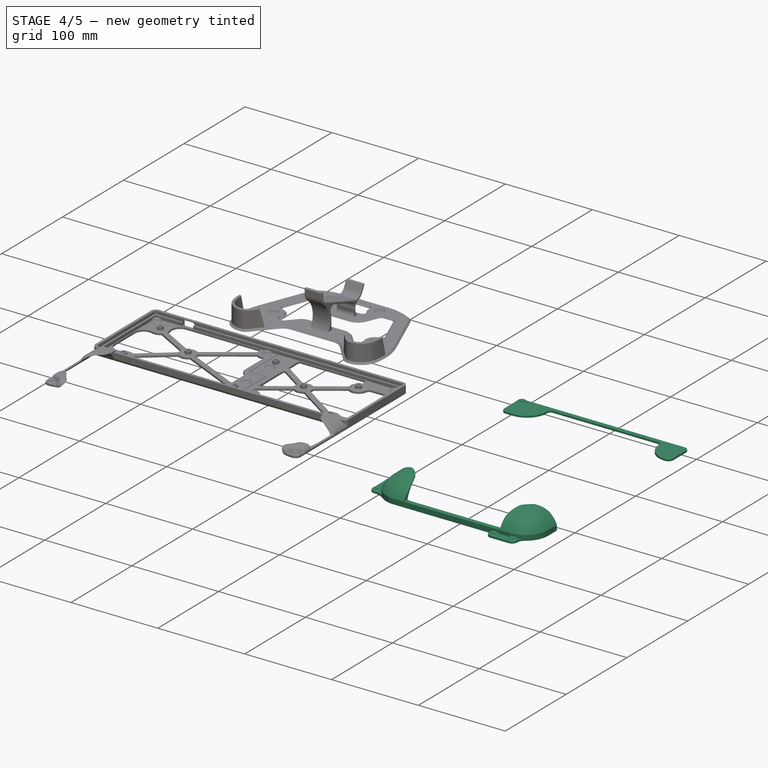
[diagram: stage 4 of 5 — iso view after this stage's code; geometry added in this stage tinted green]
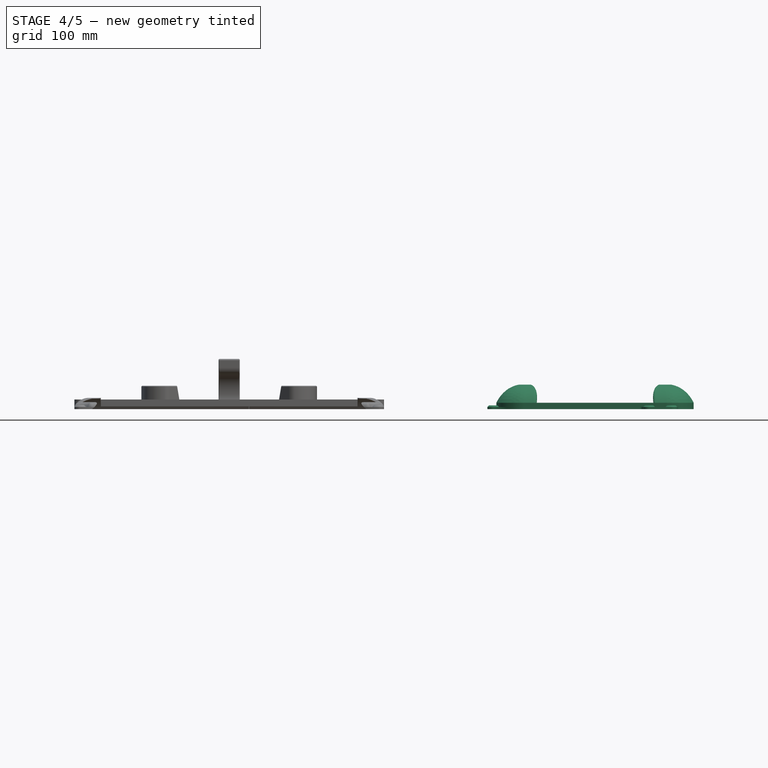
[diagram: stage 4 of 5 — front view after this stage's code; geometry added in this stage tinted green]
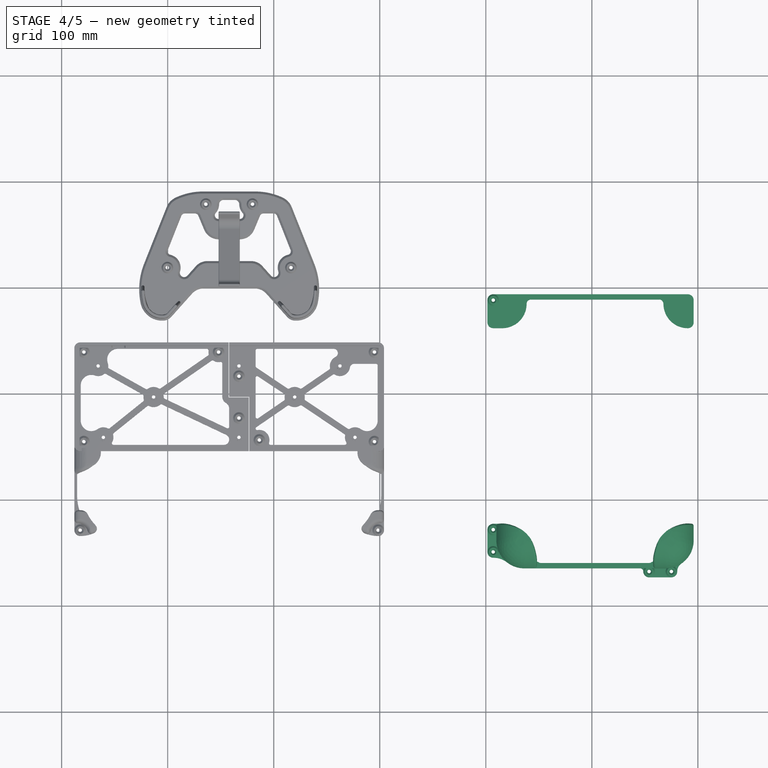
[diagram: stage 4 of 5 — top view after this stage's code; geometry added in this stage tinted green]
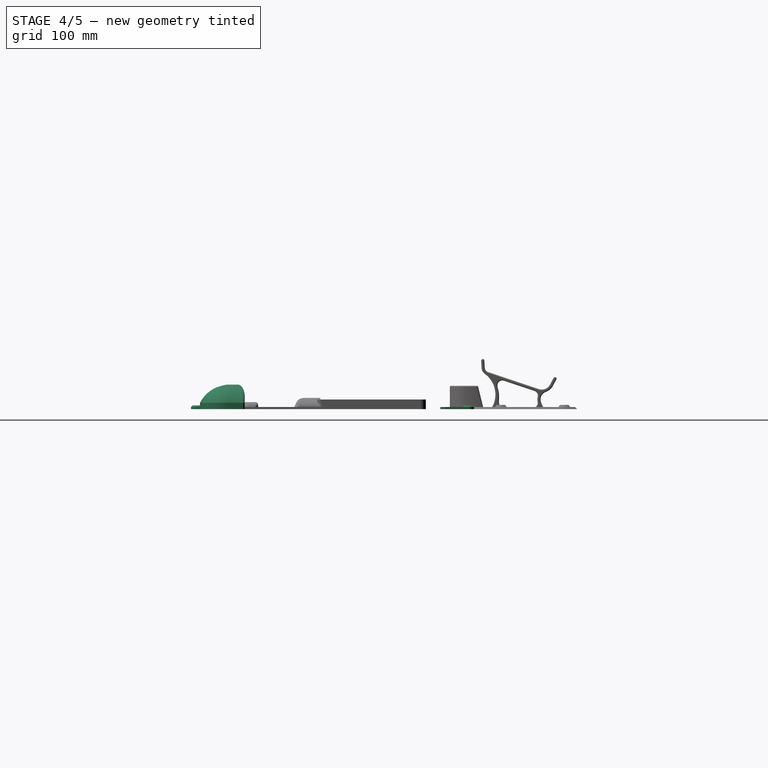
[diagram: stage 4 of 5 — right view after this stage's code; geometry added in this stage tinted green]
FEATURE [PartDesign::Body] Body004  label="mouse_pad"
  Group = -> [Sketch011,Sketch012,AdditiveLoft002,Sketch013,Sketch014,Sketch015,AdditiveLoft003]
  Origin = -> Origin004
  Placement = pos=(203,-111,0) rot=(0,0,1;0rad)
  Tip = -> AdditiveLoft003
FEATURE [PartDesign::SubShapeBinder] Binder001
  BindCopyOnChange = 0
  BindMode = 0
  ClaimChildren = false
  Context = -> Body005 [Binder001.]
  Fuse = false
  MakeFace = true
  OffsetFill = false
  OffsetIntersection = false
  OffsetJoinType = 0
  OffsetOpenResult = false
  PartialLoad = false
  Relative = true
  Support = -> [Body004[AdditiveLoft003.]]
  _Version = 2
FEATURE [Sketcher::SketchObject] Sketch016
  ExternalGeometry = -> [Binder001]
  FullyConstrained = true
  MapMode = 5
  Support = -> [XY_Plane005]
  expr: Constraints[43] = .Constraints.tab_length
  sketch-geometry (19):
    g0: ArcOfCircle CenterX=107 CenterY=-111.5 CenterZ=0 NormalX=0 NormalY=0 NormalZ=1 AngleXU=0 Radius=5.5 StartAngle=1.5708 EndAngle=3.14159
    g1: LineSegment StartX=107 StartY=-106 StartZ=0 EndX=290.5 EndY=-106 EndZ=0
    g2: ArcOfCircle CenterX=290.5 CenterY=-111.5 CenterZ=0 NormalX=0 NormalY=0 NormalZ=1 AngleXU=0 Radius=5.5 StartAngle=5e-16 EndAngle=1.5708
    g3: LineSegment StartX=296 StartY=-111.5 StartZ=0 EndX=296 EndY=-132.5 EndZ=0
    g4: ArcOfCircle CenterX=290.5 CenterY=-132.5 CenterZ=0 NormalX=0 NormalY=0 NormalZ=1 AngleXU=0 Radius=5.5 StartAngle=4.71239 EndAngle=6.28319
    g5: ArcOfCircle CenterX=107 CenterY=-132.5 CenterZ=0 NormalX=0 NormalY=0 NormalZ=1 AngleXU=0 Radius=5.5 StartAngle=3.14159 EndAngle=4.71239
    g6: LineSegment StartX=101.5 StartY=-132.5 StartZ=0 EndX=101.5 EndY=-111.5 EndZ=0
    g7: GeomPoint X=101.5 Y=-106 Z=0
    g8: Circle CenterX=290.5 CenterY=-111.5 CenterZ=0 NormalX=0 NormalY=0 NormalZ=1 AngleXU=0 Radius=5.5
    g9: Circle CenterX=107 CenterY=-111.5 CenterZ=0 NormalX=0 NormalY=0 NormalZ=1 AngleXU=0 Radius=5.5
    g10: Circle CenterX=107 CenterY=-132.5 CenterZ=0 NormalX=0 NormalY=0 NormalZ=1 AngleXU=0 Radius=5.5
    g11: LineSegment StartX=107 StartY=-132.5 StartZ=0 EndX=112.5 EndY=-132.5 EndZ=0
    g12: ArcOfCircle CenterX=115.5 CenterY=-115 CenterZ=0 NormalX=0 NormalY=0 NormalZ=1 AngleXU=0 Radius=23 StartAngle=4.71239 EndAngle=6.28319
    g13: ArcOfCircle CenterX=290.5 CenterY=-115 CenterZ=0 NormalX=0 NormalY=0 NormalZ=1 AngleXU=0 Radius=23 StartAngle=3.14159 EndAngle=4.71239
    g14: LineSegment StartX=142.5 StartY=-111 StartZ=0 EndX=263.5 EndY=-111 EndZ=0
    g15: ArcOfCircle CenterX=142.5 CenterY=-115 CenterZ=0 NormalX=0 NormalY=0 NormalZ=1 AngleXU=0 Radius=4 StartAngle=1.5708 EndAngle=3.14159
    g16: ArcOfCircle CenterX=263.5 CenterY=-115 CenterZ=0 NormalX=0 NormalY=0 NormalZ=1 AngleXU=0 Radius=4 StartAngle=7e-16 EndAngle=1.5708
    g17: LineSegment StartX=107 StartY=-138 StartZ=0 EndX=115.5 EndY=-138 EndZ=0
    g18: GeomPoint X=203 Y=-111 Z=0
  constraints (46):
    c: Tangent(g0,g1) = 1.5708
    c: Tangent(g1,g2) = 1.5708
    c: Tangent(g2,g3) = 1.5708
    c: Tangent(g3,g4) = 1.5708
    c: Tangent(g5,g6) = 1.5708
    c: Tangent(g6,g0) = 1.5708
    c: Horizontal(g1)
    c: Vertical(g3)
    c: Vertical(g6)
    c: Equal(g0,g2)
    c: Equal(g2,g4)
    c: Equal(g4,g5)
    c: PointOnObject(g7,g1)
    c: PointOnObject(g7,g6)
    c: DistanceX(g-5,g3) = 3
    c: Radius(g0) = 5.5
    c: Coincident(g8,g2)
    c: Diameter(g8) = 11
    c: Coincident(g9,g0)
    c: Coincident(g10,g5)
    c: Equal(g8,g9)
    c: Equal(g8,g10)
    c: Coincident(g11,g5)
    c: PointOnObject(g11,g10)
    c: Horizontal(g11)
    c: DistanceX(g5,g-4) = 6
    c: DistanceY(g-5,g1) = 5
    c: Equal(g12,g13)
    c: Vertical(g5,g5)
    c: Vertical(g4,g4)
    c: Tangent(g13,g4) = -1.5708
    c: Tangent(g12,g15) = 1.5708
    c: Tangent(g14,g15) = 1.5708
    c: Tangent(g13,g16) = 1.5708
    c: Tangent(g14,g16) = 1.5708
    c: PointOnObject(g14,g-3)
    c: Equal(g15,g16)
    c: Radius(g15) = 4
    c: Coincident(g17,g5)
    c: Horizontal(g17)
    c: Symmetric(g-4,g-5,g18)
    c: Symmetric(g14,g14,g18)
    c: DistanceY(g4,g1) = 32  'tab_length'
    c: DistanceY(g5,g0) = 32
    c: Tangent(g17,g12) = -1.5708
    c: Horizontal(g12,g12)
FEATURE [PartDesign::Pad] Pad004
  Direction = (0,0,1)
  Length = 2
  Length2 = 10
  Profile = -> Sketch016
  ReferenceAxis = -> Sketch016 [N_Axis]
  Type = 0
FEATURE [Sketcher::SketchObject] Sketch017
  AttachmentOffset = pos=(0,0,2) rot=(0,0,1;0rad)
  ExternalGeometry = -> [Sketch016]
  FullyConstrained = true
  MapMode = 5
  Placement = pos=(0,0,2) rot=(0,0,1;0rad)
  Support = -> [XY_Plane005]
  sketch-geometry (1):
    g0: Circle CenterX=107 CenterY=-111.5 CenterZ=0 NormalX=0 NormalY=0 NormalZ=1 AngleXU=0 Radius=5.5
  constraints (2):
    c: Coincident(g0,g-3)
    c: PointOnObject(g-3,g0)
FEATURE [Sketcher::SketchObject] Sketch018
  AttachmentOffset = pos=(0,0,3.5) rot=(0,0,1;0rad)
  ExternalGeometry = -> [Sketch017]
  FullyConstrained = true
  MapMode = 5
  Placement = pos=(0,0,3.5) rot=(0,0,1;0rad)
  Support = -> [XY_Plane005]
  sketch-geometry (1):
    g0: Circle CenterX=107 CenterY=-111.5 CenterZ=0 NormalX=0 NormalY=0 NormalZ=1 AngleXU=0 Radius=4
  constraints (2):
    c: Coincident(g0,g-3)
    c: Diameter(g0) = 8
FEATURE [PartDesign::AdditiveLoft] AdditiveLoft004
  BaseFeature = -> Pad004
  Closed = false
  Profile = -> Sketch017
  Ruled = true
  Sections = -> [Sketch018]
FEATURE [PartDesign::Hole] Hole001
  BaseFeature = -> AdditiveLoft004
  CustomThreadClearance = 0
  Depth = 25
  DepthType = 0
  Diameter = 3.3
  DrillForDepth = false
  DrillPoint = 1
  DrillPointAngle = 118
  HoleCutCountersinkAngle = 90
  HoleCutCustomValues = false
  HoleCutDepth = 0
  HoleCutDiameter = 6.1
  HoleCutType = 2
  ModelThread = false
  Profile = -> AdditiveLoft004 [Face17]
  Tapered = false
  TaperedAngle = 90
  ThreadClass = 0
  ThreadDepth = 25
  ThreadDepthType = 0
  ThreadDirection = 0
  ThreadFit = 0
  ThreadSize = 3
  ThreadType = 3
  Threaded = false
  UseCustomThreadClearance = false
FEATURE [PartDesign::Body] Body005  label="mouse_pad_holder_top"
  Group = -> [Binder001,Sketch016,Pad004,Sketch017,Sketch018,AdditiveLoft004,Hole001,LinearPattern,LinearPattern001,Sketch019,Pad005]
  Origin = -> Origin005
  Tip = -> Pad005
FEATURE [Part::FeaturePython] Clone  label="mouse_pad001"  # Draft clone (typed FeaturePython)
  AttacherType = Attacher::AttachEngine3D
  Fuse = false
  Objects = -> [Body004]
  Placement = pos=(203,-109.757,0) rot=(0,0,1;0rad)
  Scale = (1.01,1.01,1.01)
FEATURE [PartDesign::SubShapeBinder] Binder002
  BindCopyOnChange = 0
  BindMode = 0
  ClaimChildren = false
  Context = -> Body006 [Binder002.]
  Fuse = false
  MakeFace = true
  OffsetFill = false
  OffsetIntersection = false
  OffsetJoinType = 0
  OffsetOpenResult = false
  PartialLoad = false
  Relative = true
  Support = -> [Body004]
  _Version = 2
FEATURE [Sketcher::SketchObject] Sketch021  label="Sketch020"
  ExternalGeometry = -> [Binder002]
  FullyConstrained = true
  MapMode = 5
  Support = -> [XY_Plane006]
  sketch-geometry (37):
    g0: ArcOfCircle CenterX=107 CenterY=-328 CenterZ=0 NormalX=0 NormalY=0 NormalZ=1 AngleXU=0 Radius=5.5 StartAngle=1.5708 EndAngle=3.14159
    g1: Circle CenterX=107 CenterY=-328 CenterZ=0 NormalX=0 NormalY=0 NormalZ=1 AngleXU=0 Radius=5.5
    g2: ArcOfCircle CenterX=291 CenterY=-355.5 CenterZ=0 NormalX=0 NormalY=0 NormalZ=1 AngleXU=0 Radius=33 StartAngle=1.5708 EndAngle=3.14159
    g3: LineSegment StartX=152 StartY=-359.5 StartZ=0 EndX=254 EndY=-359.5 EndZ=0
    g4: ArcOfCircle CenterX=152 CenterY=-355.5 CenterZ=0 NormalX=0 NormalY=0 NormalZ=1 AngleXU=0 Radius=4 StartAngle=3.14159 EndAngle=4.71239
    g5: ArcOfCircle CenterX=254 CenterY=-355.5 CenterZ=0 NormalX=0 NormalY=0 NormalZ=1 AngleXU=0 Radius=4 StartAngle=4.71239 EndAngle=6.28319
    g6: LineSegment StartX=107 StartY=-322.5 StartZ=0 EndX=115 EndY=-322.5 EndZ=0
    g7: GeomPoint X=203 Y=-359.5 Z=0
    g8: Circle CenterX=275 CenterY=-367.5 CenterZ=0 NormalX=0 NormalY=0 NormalZ=1 AngleXU=0 Radius=5.5
    g9: Circle CenterX=254 CenterY=-367.5 CenterZ=0 NormalX=0 NormalY=0 NormalZ=1 AngleXU=0 Radius=5.5
    g10: ArcOfCircle CenterX=275 CenterY=-367.5 CenterZ=0 NormalX=0 NormalY=0 NormalZ=1 AngleXU=0 Radius=5.5 StartAngle=4.71239 EndAngle=6.28319
    g11: LineSegment StartX=275 StartY=-373 StartZ=0 EndX=254 EndY=-373 EndZ=0
    g12: ArcOfCircle CenterX=254 CenterY=-367.5 CenterZ=0 NormalX=0 NormalY=0 NormalZ=1 AngleXU=0 Radius=5.5 StartAngle=3.14159 EndAngle=4.71239
    g13: ArcOfCircle CenterX=245.5 CenterY=-367.5 CenterZ=0 NormalX=0 NormalY=0 NormalZ=1 AngleXU=0 Radius=3 StartAngle=0 EndAngle=1.5708
    g14: GeomPoint X=275 Y=-373 Z=0
    g15: GeomPoint X=269.5 Y=-367.5 Z=0
    g16: ArcOfCircle CenterX=294 CenterY=-324.5 CenterZ=0 NormalX=0 NormalY=0 NormalZ=1 AngleXU=0 Radius=2 StartAngle=-9e-16 EndAngle=1.5708
    g17: LineSegment StartX=294 StartY=-322.5 StartZ=0 EndX=291 EndY=-322.5 EndZ=0
    g18: Circle CenterX=107 CenterY=-349 CenterZ=0 NormalX=0 NormalY=0 NormalZ=1 AngleXU=0 Radius=5.5
    g19: GeomPoint X=107 Y=-322.5 Z=0
    g20: GeomPoint X=107 Y=-354.5 Z=0
    g21: LineSegment StartX=101.5 StartY=-328 StartZ=0 EndX=101.5 EndY=-349 EndZ=0
    g22: ArcOfCircle CenterX=107 CenterY=-349 CenterZ=0 NormalX=0 NormalY=0 NormalZ=1 AngleXU=0 Radius=5.5 StartAngle=3.14159 EndAngle=4.71239
    g23: LineSegment StartX=136.25 StartY=-364.5 StartZ=0 EndX=245.5 EndY=-364.5 EndZ=0
    g24: Circle CenterX=254 CenterY=-367.5 CenterZ=0 NormalX=0 NormalY=0 NormalZ=1 AngleXU=0 Radius=3
    g25: ArcOfCircle CenterX=115 CenterY=-355.5 CenterZ=0 NormalX=0 NormalY=0 NormalZ=1 AngleXU=0 Radius=33 StartAngle=9e-16 EndAngle=1.5708
    g26: LineSegment StartX=296 StartY=-324.5 StartZ=0 EndX=296 EndY=-338.25 EndZ=0
    g27: ArcOfCircle CenterX=269.75 CenterY=-338.25 CenterZ=0 NormalX=0 NormalY=0 NormalZ=1 AngleXU=0 Radius=26.25 StartAngle=4.71239 EndAngle=6.28319
    g28: ArcOfCircle CenterX=269.75 CenterY=-338.25 CenterZ=0 NormalX=0 NormalY=0 NormalZ=1 AngleXU=0 Radius=26.25 StartAngle=5.3086 EndAngle=6.28319
    g29: LineSegment StartX=245.5 StartY=-364.5 StartZ=0 EndX=269.75 EndY=-364.5 EndZ=0
    g30: ArcOfCircle CenterX=136.25 CenterY=-338.25 CenterZ=0 NormalX=0 NormalY=0 NormalZ=1 AngleXU=0 Radius=26.25 StartAngle=3.14159 EndAngle=4.71239
    g31: LineSegment StartX=115 StartY=-322.5 StartZ=0 EndX=112 EndY=-322.5 EndZ=0
    g32: ArcOfCircle CenterX=112 CenterY=-324.5 CenterZ=0 NormalX=0 NormalY=0 NormalZ=1 AngleXU=0 Radius=2 StartAngle=1.5708 EndAngle=3.14159
    g33: LineSegment StartX=110 StartY=-324.5 StartZ=0 EndX=110 EndY=-338.25 EndZ=0
    g34: ArcOfCircle CenterX=136.25 CenterY=-338.25 CenterZ=0 NormalX=0 NormalY=0 NormalZ=1 AngleXU=0 Radius=26.25 StartAngle=4.05354 EndAngle=4.71239
    g35: ArcOfCircle CenterX=107 CenterY=-376.028 CenterZ=0 NormalX=0 NormalY=0 NormalZ=1 AngleXU=0 Radius=21.5281 StartAngle=0.91195 EndAngle=1.5708
    g36: ArcOfCircle CenterX=289.599 CenterY=-367.5 CenterZ=0 NormalX=0 NormalY=0 NormalZ=1 AngleXU=0 Radius=9.09879 StartAngle=2.16701 EndAngle=3.14159
  constraints (93):
    c: Coincident(g1,g0)
    c: Tangent(g3,g4) = -1.5708
    c: Tangent(g2,g5) = 1.5708
    c: Tangent(g3,g5) = -1.5708
    c: Equal(g4,g5)
    c: Radius(g4) = 4
    c: Coincident(g6,g0)
    c: Horizontal(g6)
    c: Symmetric(g3,g3,g7)
    c: PointOnObject(g3,g-4)
    c: PointOnObject(g3,g-4)
    c: Vertical(g0,g0)
    c: Diameter(g1) = 11
    c: Equal(g1,g8) = 11
    c: Horizontal(g9,g8)
    c: Horizontal(g11)
    c: Tangent(g11,g12) = 1.5708
    c: Tangent(g12,g13) = 1.5708
    c: Tangent(g10,g11) = 1.5708
    c: Vertical(g13,g13)
    c: Horizontal(g13,g12)
    c: Horizontal(g10,g10)
    c: Equal(g12,g10)
    c: Radius(g10) = 5.5
    c: PointOnObject(g14,g8)
    c: Vertical(g8,g14)
    c: Coincident(g14,g10)
    c: Vertical(g9,g11)
    c: PointOnObject(g15,g8)
    c: Horizontal(g10,g15)
    c: Horizontal(g5,g2)
    c: Horizontal(g17)
    c: Tangent(g16,g17) = -1.5708
    c: Radius(g16) = 2
    c: Tangent(g17,g2) = -1.5708
    c: PointOnObject(g2,g-6)
    c: Equal(g1,g18)
    c: Vertical(g0,g18)
    c: PointOnObject(g19,g1)
    c: Coincident(g19,g0)
    c: DistanceX(g0,g-5) = 6
    c: PointOnObject(g20,g18)
    c: DistanceY(g20,g0) = 32
    c: DistanceX(g12,g10) = 32
    c: Tangent(g0,g21) = -1.5708
    c: Tangent(g21,g22) = -1.5708
    c: Coincident(g22,g20)
    c: Coincident(g23,g13)
    c: Horizontal(g23)
    c: Coincident(g22,g18)
    c: Vertical(g22,g22)
    c: Coincident(g30,g23) = -1.5708
    c: Equal(g1,g9)
    c: DistanceY(g13,g3) = 5
    c: Coincident(g24,g12)
    c: Diameter(g24) = 6
    c: DistanceY(g12,g13) = 3
    c: Horizontal(g6,g2)
    c: Tangent(g25,g6) = 1.5708
    c: Horizontal(g4,g4)
    c: PointOnObject(g6,g-8)
    c: Tangent(g25,g4) = 1.5708
    c: Vertical(g26)
    c: DistanceY(g30,g0) = 42
    c: DistanceX(g-3,g26) = 3
    c: Tangent(g26,g16) = 1.5708
    c: Tangent(g27,g26) = 1.5708
    c: Horizontal(g13,g27)
    c: Coincident(g28,g26)
    c: PointOnObject(g28,g27)
    c: Vertical(g-4,g27)
    c: Coincident(g29,g13)
    c: Tangent(g29,g27) = -1.5708
    c: Coincident(g31,g6)
    c: PointOnObject(g31,g6)
    c: Coincident(g32,g31)
    c: Vertical(g33)
    c: Tangent(g32,g6)
    c: Tangent(g33,g32) = -1.5708
    c: Equal(g32,g16)
    c: DistanceX(g30,g-5) = 3
    c: Tangent(g33,g30) = -1.5708
    c: Tangent(g30,g23)
    c: Coincident(g34,g23)
    c: PointOnObject(g34,g30)
    c: Vertical(g-5,g23)
    c: Tangent(g35,g22) = 1.5708
    c: Tangent(g35,g34) = 1.5708
    c: Equal(g30,g34)
    c: Vertical(g12,g3)
    c: Equal(g28,g27)
    c: Tangent(g36,g10) = 1.5708
    c: Tangent(g36,g28) = 1.5708
FEATURE [PartDesign::Pad] Pad006
  Direction = (0,0,1)
  Length = 2
  Length2 = 10
  Profile = -> Sketch021
  ReferenceAxis = -> Sketch021 [N_Axis]
  Type = 0
FEATURE [Sketcher::SketchObject] Sketch022
  AttachmentOffset = pos=(0,0,2) rot=(0,0,1;0rad)
  ExternalGeometry = -> [Sketch021]
  FullyConstrained = true
  MapMode = 5
  Placement = pos=(0,0,2) rot=(0,0,1;0rad)
  Support = -> [XY_Plane006]
  sketch-geometry (1):
    g0: Circle CenterX=275 CenterY=-367.5 CenterZ=0 NormalX=0 NormalY=0 NormalZ=1 AngleXU=0 Radius=5.5
  constraints (2):
    c: Coincident(g0,g-4)
    c: PointOnObject(g-4,g0)
FEATURE [Sketcher::SketchObject] Sketch023
  AttachmentOffset = pos=(0,0,3.5) rot=(0,0,1;0rad)
  ExternalGeometry = -> [Sketch022]
  FullyConstrained = true
  MapMode = 5
  Placement = pos=(0,0,3.5) rot=(0,0,1;0rad)
  Support = -> [XY_Plane006]
  sketch-geometry (1):
    g0: Circle CenterX=275 CenterY=-367.5 CenterZ=0 NormalX=0 NormalY=0 NormalZ=1 AngleXU=0 Radius=4
  constraints (2):
    c: Coincident(g0,g-3)
    c: Diameter(g0) = 8
FEATURE [PartDesign::AdditiveLoft] AdditiveLoft005
  BaseFeature = -> Pad006
  Closed = false
  Profile = -> Sketch022
  Ruled = true
  Sections = -> [Sketch023]
FEATURE [PartDesign::Hole] Hole002
  BaseFeature = -> AdditiveLoft005
  CustomThreadClearance = 0
  Depth = 25
  DepthType = 0
  Diameter = 3.3
  DrillForDepth = false
  DrillPoint = 1
  DrillPointAngle = 118
  HoleCutCountersinkAngle = 90
  HoleCutCustomValues = false
  HoleCutDepth = 0
  HoleCutDiameter = 6.1
  HoleCutType = 2
  ModelThread = false
  Profile = -> AdditiveLoft005 [Face25]
  Tapered = false
  TaperedAngle = 90
  ThreadClass = 0
  ThreadDepth = 25
  ThreadDepthType = 0
  ThreadDirection = 0
  ThreadFit = 0
  ThreadSize = 3
  ThreadType = 3
  Threaded = false
  UseCustomThreadClearance = false
FEATURE [PartDesign::LinearPattern] LinearPattern002
  BaseFeature = -> Hole002
  Direction = -> X_Axis006
  Length = 21
  Occurrences = 2
  Originals = -> [AdditiveLoft005,Hole002]
  Reversed = true
FEATURE [Sketcher::SketchObject] Sketch026
  AttachmentOffset = pos=(0,0,2) rot=(0,0,1;0rad)
  ExternalGeometry = -> [Sketch021]
  FullyConstrained = true
  MapMode = 5
  Placement = pos=(0,0,2) rot=(0,0,1;0rad)
  Support = -> [XY_Plane006]
  sketch-geometry (14):
    g0: LineSegment StartX=152 StartY=-359.5 StartZ=0 EndX=254 EndY=-359.5 EndZ=0
    g1: ArcOfCircle CenterX=254 CenterY=-355.5 CenterZ=0 NormalX=0 NormalY=0 NormalZ=1 AngleXU=0 Radius=4 StartAngle=4.71239 EndAngle=6.28319
    g2: ArcOfCircle CenterX=291 CenterY=-355.5 CenterZ=0 NormalX=0 NormalY=0 NormalZ=1 AngleXU=0 Radius=33 StartAngle=1.5708 EndAngle=3.14159
    g3: LineSegment StartX=291 StartY=-322.5 StartZ=0 EndX=294 EndY=-322.5 EndZ=0
    g4: ArcOfCircle CenterX=294 CenterY=-324.5 CenterZ=0 NormalX=0 NormalY=0 NormalZ=1 AngleXU=0 Radius=2 StartAngle=-6.2e-15 EndAngle=1.5708
    g5: LineSegment StartX=296 StartY=-324.5 StartZ=0 EndX=296 EndY=-338.25 EndZ=0
    g6: ArcOfCircle CenterX=269.75 CenterY=-338.25 CenterZ=0 NormalX=0 NormalY=0 NormalZ=1 AngleXU=0 Radius=26.25 StartAngle=4.71239 EndAngle=6.28319
    g7: LineSegment StartX=269.75 StartY=-364.5 StartZ=0 EndX=136.25 EndY=-364.5 EndZ=0
    g8: ArcOfCircle CenterX=136.25 CenterY=-338.25 CenterZ=0 NormalX=0 NormalY=0 NormalZ=1 AngleXU=0 Radius=26.25 StartAngle=3.14159 EndAngle=4.71239
    g9: LineSegment StartX=110 StartY=-338.25 StartZ=0 EndX=110 EndY=-324.5 EndZ=0
    g10: ArcOfCircle CenterX=112 CenterY=-324.5 CenterZ=0 NormalX=0 NormalY=0 NormalZ=1 AngleXU=0 Radius=2 StartAngle=1.5708 EndAngle=3.14159
    g11: ArcOfCircle CenterX=115 CenterY=-355.5 CenterZ=0 NormalX=0 NormalY=0 NormalZ=1 AngleXU=0 Radius=33 StartAngle=2.3e-15 EndAngle=1.5708
    g12: ArcOfCircle CenterX=152 CenterY=-355.5 CenterZ=0 NormalX=0 NormalY=0 NormalZ=1 AngleXU=0 Radius=4 StartAngle=3.14159 EndAngle=4.71239
    g13: LineSegment StartX=112 StartY=-322.5 StartZ=0 EndX=115 EndY=-322.5 EndZ=0
  constraints (29):
    c: Coincident(g-5,g0)
    c: Coincident(g0,g-6)
    c: Tangent(g0,g1) = -1.5708
    c: Coincident(g1,g-7)
    c: Tangent(g1,g2) = 1.5708
    c: Coincident(g2,g-8)
    c: Tangent(g2,g3) = 1.5708
    c: Tangent(g3,g4) = 1.5708
    c: Coincident(g4,g-10)
    c: Tangent(g4,g5) = 1.5708
    c: Tangent(g5,g6) = 1.5708
    c: Coincident(g7,g-13)
    c: Horizontal(g7)
    c: Tangent(g7,g8) = 1.5708
    c: Vertical(g9)
    c: Tangent(g9,g10) = 1.5708
    c: Coincident(g11,g-4)
    c: Coincident(g12,g0)
    c: Coincident(g11,g-3)
    c: Equal(g10,g4)
    c: Coincident(g13,g11)
    c: Tangent(g13,g10) = 1.5708
    c: Horizontal(g13)
    c: Equal(g-3,g11)
    c: Coincident(g5,g-11)
    c: Tangent(g6,g7) = 1.5708
    c: Equal(g8,g6)
    c: Tangent(g8,g9) = 1.5708
    c: Tangent(g12,g11) = 1.5708
FEATURE [Sketcher::SketchObject] Sketch027
  AttachmentOffset = pos=(0,0,6) rot=(0,0,1;0rad)
  ExternalGeometry = -> [Sketch026]
  FullyConstrained = true
  MapMode = 5
  Placement = pos=(0,0,6) rot=(0,0,1;0rad)
  Support = -> [XY_Plane006]
  sketch-geometry (8):
    g0: ArcOfCircle CenterX=115 CenterY=-355.5 CenterZ=0 NormalX=0 NormalY=0 NormalZ=1 AngleXU=0 Radius=33 StartAngle=2.4e-15 EndAngle=1.5708
    g1: LineSegment StartX=148 StartY=-355.5 StartZ=0 EndX=148 EndY=-362.5 EndZ=0
    g2: ArcOfCircle CenterX=146 CenterY=-362.5 CenterZ=0 NormalX=0 NormalY=0 NormalZ=1 AngleXU=0 Radius=2 StartAngle=4.71239 EndAngle=6.28319
    g3: LineSegment StartX=146 StartY=-364.5 StartZ=0 EndX=136.25 EndY=-364.5 EndZ=0
    g4: ArcOfCircle CenterX=136.25 CenterY=-338.25 CenterZ=0 NormalX=0 NormalY=0 NormalZ=1 AngleXU=0 Radius=26.25 StartAngle=3.14159 EndAngle=4.71239
    g5: LineSegment StartX=110 StartY=-338.25 StartZ=0 EndX=110 EndY=-324.5 EndZ=0
    g6: ArcOfCircle CenterX=112 CenterY=-324.5 CenterZ=0 NormalX=0 NormalY=0 NormalZ=1 AngleXU=0 Radius=2 StartAngle=1.5708 EndAngle=3.14159
    g7: LineSegment StartX=112 StartY=-322.5 StartZ=0 EndX=115 EndY=-322.5 EndZ=0
  constraints (15):
    c: Tangent(g-4,g0) = 1.5708
    c: Coincident(g0,g-3)
    c: Tangent(g0,g1) = 1.5708
    c: Tangent(g1,g2) = 1.5708
    c: Tangent(g2,g3) = 1.5708
    c: Tangent(g3,g4) = 1.5708
    c: Coincident(g4,g-7)
    c: Tangent(g4,g5) = 1.5708
    c: Tangent(g5,g6) = 1.5708
    c: Coincident(g6,g-5)
    c: Tangent(g6,g7) = 1.5708
    c: Coincident(g7,g0)
    c: Coincident(g4,g-7)
    c: Equal(g6,g2)
    c: Horizontal(g3)
FEATURE [Sketcher::SketchObject] Sketch029  label="Sketch028"
  AttachmentOffset = pos=(0,0,15) rot=(0,0,1;0rad)
  ExternalGeometry = -> [Sketch027]
  FullyConstrained = true
  MapMode = 5
  Placement = pos=(0,0,15) rot=(0,0,1;0rad)
  Support = -> [XY_Plane006]
  sketch-geometry (6):
    g0: LineSegment StartX=146 StartY=-357.5 StartZ=0 EndX=136.25 EndY=-357.5 EndZ=0
    g1: ArcOfCircle CenterX=136.25 CenterY=-337.55 CenterZ=0 NormalX=0 NormalY=0 NormalZ=1 AngleXU=0 Radius=19.95 StartAngle=3.14159 EndAngle=4.71239
    g2: LineSegment StartX=116.3 StartY=-337.55 StartZ=0 EndX=116.3 EndY=-324.676 EndZ=0
    g3: ArcOfCircle CenterX=146 CenterY=-355.5 CenterZ=0 NormalX=0 NormalY=0 NormalZ=1 AngleXU=0 Radius=2 StartAngle=4.71239 EndAngle=6.28319
    g4: ArcOfCircle CenterX=115 CenterY=-355.5 CenterZ=0 NormalX=0 NormalY=0 NormalZ=1 AngleXU=0 Radius=33 StartAngle=2e-15 EndAngle=1.46414
    g5: ArcOfCircle CenterX=118.3 CenterY=-324.676 CenterZ=0 NormalX=0 NormalY=0 NormalZ=1 AngleXU=0 Radius=2 StartAngle=1.46414 EndAngle=3.14159
  constraints (16):
    c: Tangent(g0,g1) = 1.5708
    c: Tangent(g1,g2) = 1.5708
    c: Horizontal(g0)
    c: Vertical(g2)
    c: Tangent(g0,g3) = 1.5708
    c: Tangent(g3,g4) = -1.5708
    c: Vertical(g0,g-6)
    c: Radius(g3) = 2
    c: Coincident(g3,g-3)
    c: Equal(g4,g-3)
    c: Tangent(g5,g4) = -1.5708
    c: Tangent(g5,g2) = 1.5708
    c: Equal(g-4,g5)
    c: PointOnObject(g4,g-3)
    c: Equal(g-4,g3)
    c: DistanceX(g-4,g2) = 6.3
FEATURE [Sketcher::SketchObject] Sketch028  label="Sketch029"
  AttachmentOffset = pos=(0,0,23) rot=(0,0,1;0rad)
  ExternalGeometry = -> [Sketch027]
  FullyConstrained = true
  MapMode = 5
  Placement = pos=(0,0,23) rot=(0,0,1;0rad)
  Support = -> [XY_Plane006]
  sketch-geometry (6):
    g0: ArcOfCircle CenterX=115 CenterY=-355.5 CenterZ=0 NormalX=0 NormalY=0 NormalZ=1 AngleXU=0 Radius=33 StartAngle=0.593229 EndAngle=0.977567
    g1: ArcOfCircle CenterX=132.563 CenterY=-329.452 CenterZ=0 NormalX=0 NormalY=0 NormalZ=1 AngleXU=0 Radius=1.58443 StartAngle=0.977567 EndAngle=3.46331
    g2: ArcOfCircle CenterX=141.048 CenterY=-337.937 CenterZ=0 NormalX=0 NormalY=0 NormalZ=1 AngleXU=0 Radius=1.58443 StartAngle=4.39067 EndAngle=6.87641
    g3: ArcOfCircle CenterX=145.29 CenterY=-325.21 CenterZ=0 NormalX=0 NormalY=0 NormalZ=1 AngleXU=0 Radius=15 StartAngle=3.46331 EndAngle=4.39067
    g4: LineSegment StartX=115 StartY=-355.5 StartZ=0 EndX=148 EndY=-355.5 EndZ=0
    g5: LineSegment StartX=115 StartY=-355.5 StartZ=0 EndX=145.29 EndY=-325.21 EndZ=0
  constraints (15):
    c: Tangent(g1,g0) = -1.5708
    c: Tangent(g2,g0) = -1.5708
    c: Tangent(g3,g1) = -1.5708
    c: Tangent(g3,g2) = -1.5708
    c: Coincident(g4,g0)
    c: Coincident(g5,g0)
    c: Coincident(g5,g3)
    c: Angle(g4,g5) = 0.785398
    c: Radius(g3) = 15
    c: Distance(g1,g2) = 12
    c: PointOnObject(g0,g-3)
    c: Equal(g1,g2)
    c: Coincident(g0,g-3)
    c: Coincident(g4,g-4)
    c: Distance(g0,g1) = 3
FEATURE [PartDesign::Plane] DatumPlane
  AttachmentOffset = pos=(0,0,203) rot=(0,0,1;0rad)
  Length = 426.213
  MapMode = 5
  Placement = pos=(203,-4.51e-14,4.51e-14) rot=(0.57735,0.57735,0.57735;2.0944rad)
  ResizeMode = 0
  Support = -> [YZ_Plane006]
  Width = 78.2135
FEATURE [Sketcher::SketchObject] Sketch030
  AttachmentOffset = pos=(0,0,2) rot=(0,0,1;0rad)
  ExternalGeometry = -> [Sketch021]
  FullyConstrained = true
  MapMode = 5
  Placement = pos=(0,0,2) rot=(0,0,1;0rad)
  Support = -> [XY_Plane006]
  sketch-geometry (1):
    g0: Circle CenterX=107 CenterY=-328 CenterZ=0 NormalX=0 NormalY=0 NormalZ=1 AngleXU=0 Radius=5.5
  constraints (2):
    c: Coincident(g0,g-3)
    c: PointOnObject(g-3,g0)
FEATURE [Sketcher::SketchObject] Sketch031
  AttachmentOffset = pos=(0,0,3.5) rot=(0,0,1;0rad)
  ExternalGeometry = -> [Sketch030]
  FullyConstrained = true
  MapMode = 5
  Placement = pos=(0,0,3.5) rot=(0,0,1;0rad)
  Support = -> [XY_Plane006]
  sketch-geometry (1):
    g0: Circle CenterX=107 CenterY=-328 CenterZ=0 NormalX=0 NormalY=0 NormalZ=1 AngleXU=0 Radius=4
  constraints (2):
    c: Coincident(g0,g-3)
    c: Diameter(g0) = 8
FEATURE [PartDesign::AdditiveLoft] AdditiveLoft008
  BaseFeature = -> LinearPattern002
  Closed = false
  Profile = -> Sketch030
  Ruled = true
  Sections = -> [Sketch031]
FEATURE [PartDesign::Hole] Hole003
  BaseFeature = -> AdditiveLoft008
  CustomThreadClearance = 0
  Depth = 25
  DepthType = 0
  Diameter = 3.3
  DrillForDepth = false
  DrillPoint = 1
  DrillPointAngle = 118
  HoleCutCountersinkAngle = 90
  HoleCutCustomValues = false
  HoleCutDepth = 0
  HoleCutDiameter = 6.1
  HoleCutType = 2
  ModelThread = false
  Profile = -> AdditiveLoft008 [Face33]
  Tapered = false
  TaperedAngle = 90
  ThreadClass = 0
  ThreadDepth = 25
  ThreadDepthType = 0
  ThreadDirection = 0
  ThreadFit = 0
  ThreadSize = 3
  ThreadType = 3
  Threaded = false
  UseCustomThreadClearance = false
FEATURE [PartDesign::LinearPattern] LinearPattern003
  BaseFeature = -> Hole003
  Direction = -> Y_Axis006
  Length = 21
  Occurrences = 2
  Originals = -> [AdditiveLoft008,Hole003]
  Reversed = true
FEATURE [PartDesign::Pad] Pad007
  BaseFeature = -> LinearPattern003
  Direction = (0,0,1)
  Length = 4
  Length2 = 10
  Profile = -> Sketch026
  ReferenceAxis = -> Sketch026 [N_Axis]
  Type = 0
FEATURE [PartDesign::AdditiveLoft] AdditiveLoft007
  BaseFeature = -> Pad007
  Closed = false
  Profile = -> Sketch027
  Ruled = false
  Sections = -> [Sketch029,Sketch028]
FEATURE [PartDesign::Mirrored] Mirrored
  BaseFeature = -> AdditiveLoft007
  MirrorPlane = -> DatumPlane
  Originals = -> [AdditiveLoft007]
FEATURE [PartDesign::Body] Body006  label="mouse_pad_holder_bottom_body"
  Group = -> [Binder002,Sketch021,Pad006,Sketch022,Sketch023,AdditiveLoft005,Hole002,LinearPattern002,AdditiveLoft008,Sketch026,Hole003,LinearPattern003,Pad007,Sketch027,Sketch029,Sketch028,AdditiveLoft007,DatumPlane,Mirrored,Sketch030,Sketch031]
  Origin = -> Origin006
  Tip = -> Mirrored
FEATURE [Part::FeaturePython] Clone001  label="mouse_pad002"  # Draft clone (typed FeaturePython)
  AttacherType = Attacher::AttachEngine3D
  Fuse = false
  Objects = -> [Clone]
  Placement = pos=(203,-109.757,0) rot=(0,0,1;0rad)
  Scale = (1,1,1)
FEATURE [Part::Cut] Cut001  label="mouse_pad_holder_bottom_final"
  Base = -> Body006
  Tool = -> Clone001
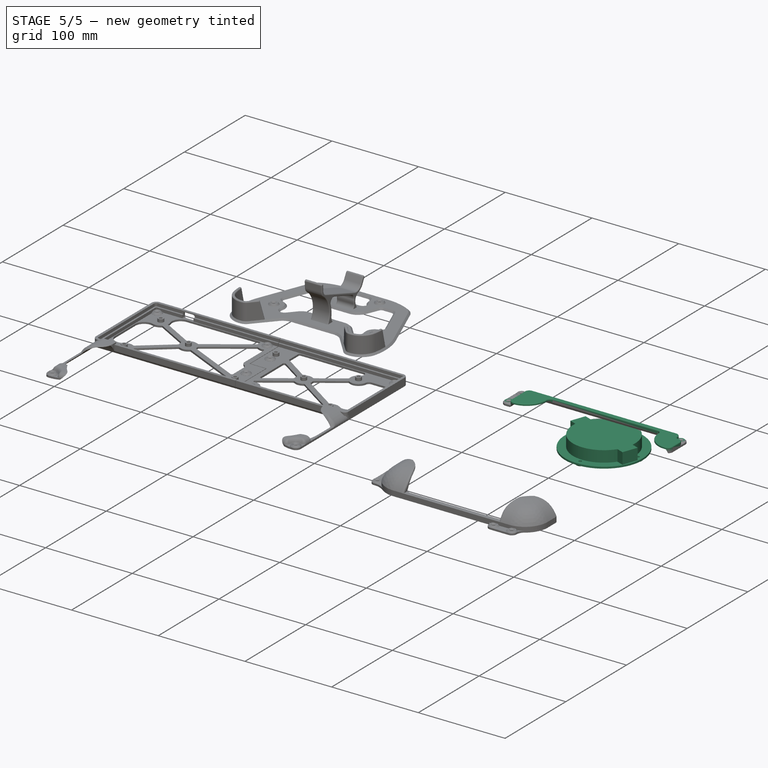
[diagram: stage 5 of 5 — iso view after this stage's code; geometry added in this stage tinted green]
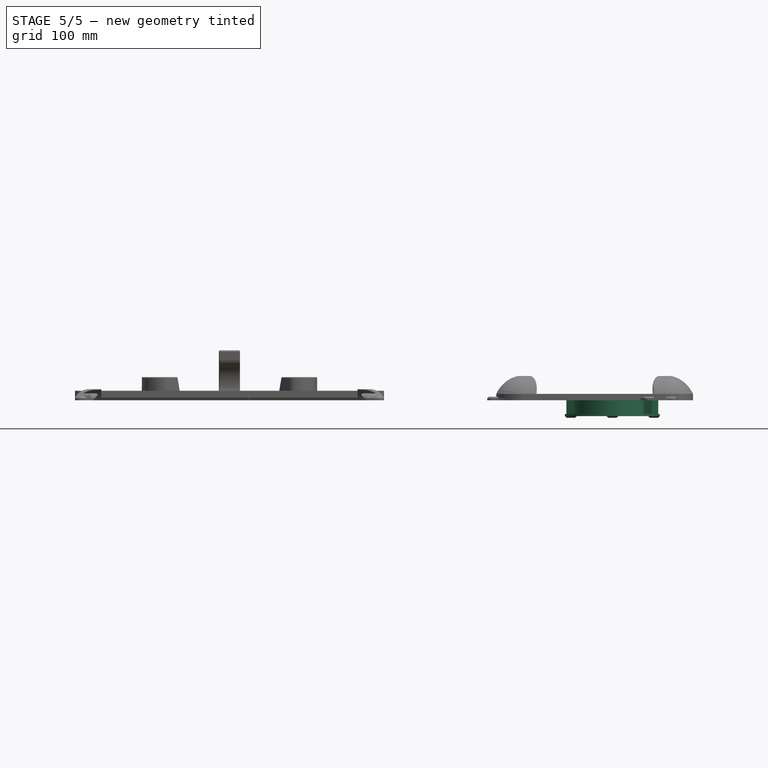
[diagram: stage 5 of 5 — front view after this stage's code; geometry added in this stage tinted green]
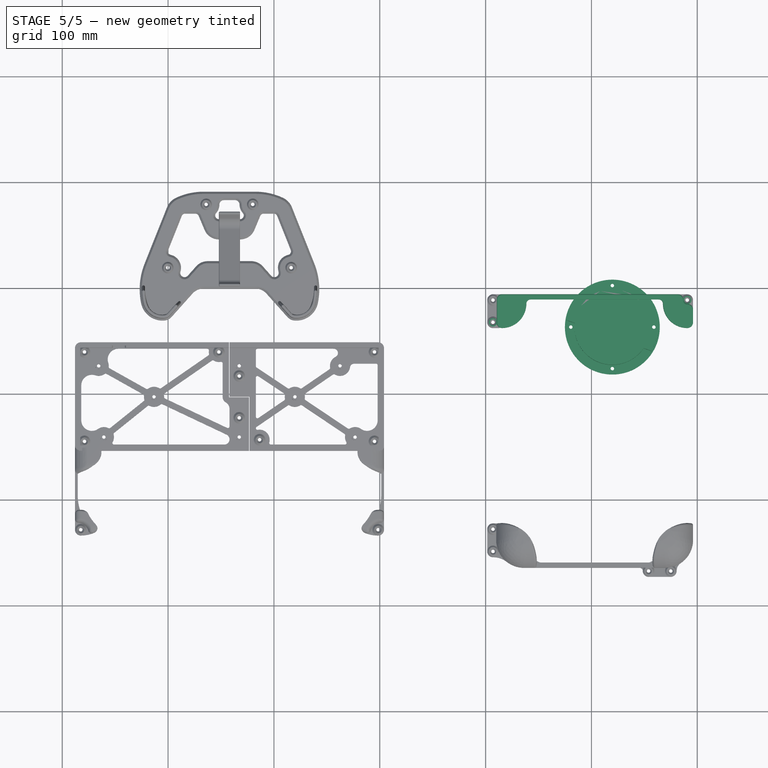
[diagram: stage 5 of 5 — top view after this stage's code; geometry added in this stage tinted green]
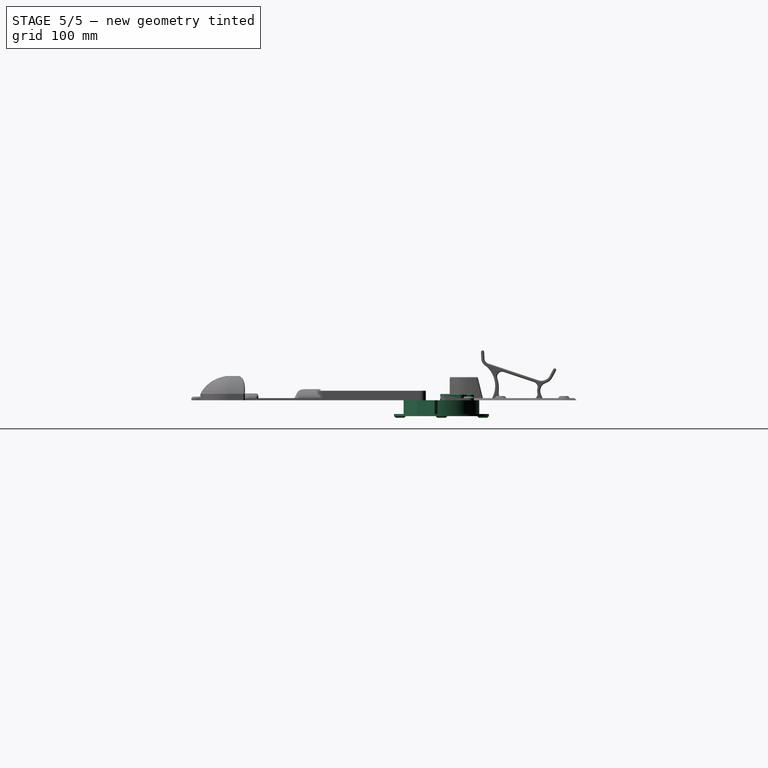
[diagram: stage 5 of 5 — right view after this stage's code; geometry added in this stage tinted green]
FEATURE [Sketcher::SketchObject] Sketch  label="lap_desk_sketch"
  FullyConstrained = true
  MapMode = 5
  Support = -> [XY_Plane]
  sketch-geometry (17):
    g0: LineSegment StartX=-250 StartY=0 StartZ=0 EndX=250 EndY=0 EndZ=0
    g1: ArcOfCircle CenterX=250 CenterY=-45.5 CenterZ=0 NormalX=0 NormalY=0 NormalZ=1 AngleXU=0 Radius=45.5 StartAngle=2e-16 EndAngle=1.5708
    g2: LineSegment StartX=295.5 StartY=-45.5 StartZ=0 EndX=295.5 EndY=-335.5 EndZ=0
    g3: ArcOfCircle CenterX=241 CenterY=-335.5 CenterZ=0 NormalX=0 NormalY=0 NormalZ=1 AngleXU=0 Radius=54.5 StartAngle=4.41442 EndAngle=6.28319
    g4: ArcOfCircle CenterX=0 CenterY=-1060.93 CenterZ=0 NormalX=0 NormalY=0 NormalZ=1 AngleXU=0 Radius=709.927 StartAngle=1.2483 EndAngle=1.89329
    g5: ArcOfCircle CenterX=-241 CenterY=-335.5 CenterZ=0 NormalX=0 NormalY=0 NormalZ=1 AngleXU=0 Radius=54.5 StartAngle=3.14159 EndAngle=5.01036
    g6: LineSegment StartX=-295.5 StartY=-335.5 StartZ=0 EndX=-295.5 EndY=-45.5 EndZ=0
    g7: ArcOfCircle CenterX=-250 CenterY=-45.5 CenterZ=0 NormalX=0 NormalY=0 NormalZ=1 AngleXU=0 Radius=45.5 StartAngle=1.5708 EndAngle=3.14159
    g8: LineSegment StartX=-250 StartY=0 StartZ=0 EndX=-250 EndY=-45.5 EndZ=0
    g9: LineSegment StartX=-295.5 StartY=-45.5 StartZ=0 EndX=-250 EndY=-45.5 EndZ=0
    g10: LineSegment StartX=250 StartY=0 StartZ=0 EndX=250 EndY=-45.5 EndZ=0
    g11: LineSegment StartX=250 StartY=-45.5 StartZ=0 EndX=295.5 EndY=-45.5 EndZ=0
    g12: LineSegment StartX=-295.5 StartY=-335.5 StartZ=0 EndX=-241 EndY=-335.5 EndZ=0
    g13: LineSegment StartX=241 StartY=-335.5 StartZ=0 EndX=295.5 EndY=-335.5 EndZ=0
    g14: GeomPoint X=-241 Y=-390 Z=0
    g15: LineSegment StartX=-241 StartY=-335.5 StartZ=0 EndX=-241 EndY=-390 EndZ=0
    g16: GeomPoint X=0 Y=-351 Z=0
  constraints (43):
    c: Horizontal(g0)
    c: Tangent(g0,g1) = 1.5708
    c: Tangent(g1,g2) = 1.5708
    c: Tangent(g2,g3) = 1.5708
    c: Coincident(g5,g6)
    c: Vertical(g6)
    c: Vertical(g2)
    c: Coincident(g7,g6)
    c: Coincident(g7,g0)
    c: Coincident(g5,g4)
    c: Coincident(g4,g3)
    c: Coincident(g8,g0)
    c: Coincident(g8,g7)
    c: Coincident(g9,g6)
    c: Coincident(g9,g7)
    c: Horizontal(g9)
    c: Coincident(g10,g0)
    c: Coincident(g10,g1)
    c: Coincident(g11,g1)
    c: Coincident(g11,g1)
    c: Vertical(g8)
    c: Symmetric(g6,g1,g-2)
    c: Coincident(g12,g5)
    c: Coincident(g12,g5)
    c: Coincident(g13,g3)
    c: Coincident(g13,g2)
    c: Horizontal(g12)
    c: Equal(g12,g13)
    c: Equal(g6,g2)
    c: DistanceX(g6,g1) = 591  'width'
    c: PointOnObject(g4,g-2)
    c: DistanceX(g0,g0) = 500
    c: DistanceY(g2,g2) = 290
    c: PointOnObject(g14,g5)
    c: Coincident(g15,g5)
    c: Coincident(g15,g14)
    c: Vertical(g15)
    c: DistanceY(g14,g0) = 390  'height'
    c: PointOnObject(g16,g-2)
    c: PointOnObject(g16,g4)
    c: DistanceY(g14,g16) = 39
    c: PointOnObject(g-1,g0)
    c: DistanceX(g4,g3) = 450
FEATURE [PartDesign::Pad] Pad  label="lap_desk_pad"
  Direction = (0,0,1)
  Length = 12
  Length2 = 10
  Profile = -> Sketch
  ReferenceAxis = -> Sketch [N_Axis]
  Reversed = true
  Type = 0
FEATURE [Sketcher::SketchObject] Sketch001
  FullyConstrained = true
  MapMode = 5
  Support = -> [XY_Plane]
  sketch-geometry (12):
    g0: ArcOfCircle CenterX=-136.5 CenterY=-39.5 CenterZ=0 NormalX=0 NormalY=0 NormalZ=1 AngleXU=0 Radius=9.5 StartAngle=1.5708 EndAngle=4.71239
    g1: ArcOfCircle CenterX=155.5 CenterY=-39.5 CenterZ=0 NormalX=0 NormalY=0 NormalZ=1 AngleXU=0 Radius=9.5 StartAngle=4.71239 EndAngle=7.85398
    g2: LineSegment StartX=-136.5 StartY=-49 StartZ=0 EndX=-20 EndY=-49 EndZ=0
    g3: LineSegment StartX=155.5 StartY=-30 StartZ=0 EndX=-136.5 EndY=-30 EndZ=0
    g4: GeomPoint X=-146 Y=-39.5 Z=0
    g5: GeomPoint X=146 Y=-39.5 Z=0
    g6: LineSegment StartX=-146 StartY=-39.5 StartZ=0 EndX=-136.5 EndY=-39.5 EndZ=0
    g7: LineSegment StartX=155.5 StartY=-39.5 StartZ=0 EndX=146 EndY=-39.5 EndZ=0
    g8: LineSegment StartX=155.5 StartY=-49 StartZ=0 EndX=20 EndY=-49 EndZ=0
    g9: ArcOfCircle CenterX=0 CenterY=-49 CenterZ=0 NormalX=0 NormalY=0 NormalZ=1 AngleXU=0 Radius=20 StartAngle=3.14159 EndAngle=6.28319
    g10: LineSegment StartX=-20 StartY=-49 StartZ=0 EndX=0 EndY=-49 EndZ=0
    g11: LineSegment StartX=0 StartY=-49 StartZ=0 EndX=20 EndY=-49 EndZ=0
  constraints (29):
    c: Tangent(g0,g2) = -1.5708
    c: Tangent(g1,g3) = -1.5708
    c: Tangent(g3,g0) = -1.5708
    c: Equal(g0,g1)
    c: Horizontal(g2)
    c: DistanceY(g0,g0) = 19
    c: PointOnObject(g4,g0)
    c: PointOnObject(g5,g1)
    c: Coincident(g6,g4)
    c: Coincident(g6,g0)
    c: Horizontal(g6)
    c: Coincident(g7,g1)
    c: Coincident(g7,g5)
    c: DistanceX(g4,g5) = 292
    c: Symmetric(g4,g5,g-2)
    c: DistanceY(g0,g-1) = 30
    c: Coincident(g8,g1)
    c: Horizontal(g8)
    c: PointOnObject(g9,g-2)
    c: Coincident(g9,g8)
    c: Coincident(g9,g2)
    c: Coincident(g10,g2)
    c: Coincident(g10,g9)
    c: Horizontal(g10)
    c: DistanceX(g2,g8) = 40
    c: Horizontal(g3)
    c: Coincident(g11,g9)
    c: Coincident(g11,g8)
    c: Horizontal(g11)
FEATURE [PartDesign::Pocket] Pocket
  BaseFeature = -> Pad
  Direction = (0,0,-1)
  Length = 12
  Length2 = 5
  Profile = -> Sketch001
  ReferenceAxis = -> Sketch001 [N_Axis]
  Type = 0
  expr: Length = <<lap_desk_pad>>.Length
FEATURE [Sketcher::SketchObject] Sketch002
  FullyConstrained = true
  MapMode = 5
  Support = -> [XY_Plane]
  expr: Constraints[35] = <<lap_desk_sketch>>.Constraints.width / 2 - 39 mm
  sketch-geometry (13):
    g0: ArcOfCircle CenterX=219.75 CenterY=-136.75 CenterZ=0 NormalX=0 NormalY=0 NormalZ=1 AngleXU=0 Radius=36.75 StartAngle=6.20264 EndAngle=8.80719
    g1: ArcOfCircle CenterX=219.75 CenterY=-136.75 CenterZ=0 NormalX=0 NormalY=0 NormalZ=1 AngleXU=0 Radius=36.75 StartAngle=3.06105 EndAngle=5.6656
    g2: LineSegment StartX=189.789 StartY=-115.469 StartZ=0 EndX=181.973 EndY=-112.625 EndZ=0
    g3: LineSegment StartX=175.304 StartY=-130.949 StartZ=0 EndX=183.119 EndY=-133.793 EndZ=0
    g4: LineSegment StartX=256.381 StartY=-139.707 StartZ=0 EndX=264.196 EndY=-142.551 EndZ=0
    g5: LineSegment StartX=257.527 StartY=-160.875 StartZ=0 EndX=249.711 EndY=-158.031 EndZ=0
    g6: LineSegment StartX=264.196 StartY=-142.551 StartZ=0 EndX=257.527 EndY=-160.875 EndZ=0
    g7: LineSegment StartX=175.304 StartY=-130.949 StartZ=0 EndX=181.973 EndY=-112.625 EndZ=0
    g8: LineSegment StartX=264.196 StartY=-142.551 StartZ=0 EndX=264.196 EndY=-172.551 EndZ=0
    g9: GeomPoint X=219.75 Y=-100 Z=0
    g10: LineSegment StartX=219.75 StartY=-100 StartZ=0 EndX=219.75 EndY=-136.75 EndZ=0
    g11: GeomPoint X=256.5 Y=-136.75 Z=0
    g12: LineSegment StartX=219.75 StartY=-136.75 StartZ=0 EndX=256.5 EndY=-136.75 EndZ=0
  constraints (36):
    c: Coincident(g2,g0)
    c: Coincident(g3,g1)
    c: Coincident(g4,g0)
    c: Coincident(g5,g1)
    c: Coincident(g6,g4)
    c: Coincident(g6,g5)
    c: Coincident(g1,g0)
    c: Diameter(g0) = 73.5
    c: Equal(g0,g1)
    c: Coincident(g7,g3)
    c: Coincident(g7,g2)
    c: Distance(g7) = 19.5
    c: Angle(g7,g2) = 1.5708
    c: Angle(g3,g7) = 1.5708
    c: Angle(g4,g6) = 1.5708
    c: Angle(g6,g5) = 1.5708
    c: Equal(g7,g6)
    c: Parallel(g7,g6)
    c: Coincident(g8,g4)
    c: Vertical(g8)
    c: DistanceY(g8,g8) = 30
    c: Angle(g6,g8) = 0.349066
    c: Distance(g3,g5) = 87.5
    c: Equal(g2,g4)
    c: Equal(g2,g3)
    c: Equal(g2,g5)
    c: PointOnObject(g9,g0)
    c: Coincident(g10,g9)
    c: Coincident(g10,g0)
    c: Vertical(g10)
    c: DistanceY(g9,g-1) = 100
    c: PointOnObject(g11,g0)
    c: Coincident(g12,g0)
    c: Coincident(g12,g11)
    c: Horizontal(g12)
    c: DistanceX(g-1,g11) = 256.5
FEATURE [PartDesign::Pocket] Pocket001
  BaseFeature = -> Pocket
  Direction = (0,0,-1)
  Length = 12
  Length2 = 5
  Profile = -> Sketch002
  ReferenceAxis = -> Sketch002 [N_Axis]
  Type = 0
  expr: Length = <<lap_desk_pad>>.Length
FEATURE [PartDesign::Body] Body001  label="keyboard"
  Group = -> [Sketch003,Pad001]
  Origin = -> Origin001
  Placement = pos=(-142,-155,6) rot=(0,0,1;0rad)
  Tip = -> Pad001
  expr: .Placement.Base.x = 0
  expr: .Placement.Base.y = -155 mm
FEATURE [PartDesign::SubShapeBinder] Binder
  BindCopyOnChange = 0
  BindMode = 0
  ClaimChildren = false
  Context = -> Body002 [Binder.]
  Fuse = false
  MakeFace = true
  OffsetFill = false
  OffsetIntersection = false
  OffsetJoinType = 0
  OffsetOpenResult = false
  PartialLoad = false
  Relative = true
  Support = -> [Body[Pocket001.Sketch002.]]
  _Version = 2
FEATURE [Sketcher::SketchObject] Sketch004
  ExternalGeometry = -> [Binder]
  FullyConstrained = true
  MapMode = 5
  Support = -> [XY_Plane002]
  expr: Constraints[11] = .Constraints.cup_hole_diameter - 2 mm
  expr: Constraints[17] = .Constraints.cup_arm_angle
  expr: Constraints[20] = .Constraints.cup_arm_length - 2 mm
  expr: Constraints[21] = .Constraints.cup_arm_width
  sketch-geometry (10):
    g0: ArcOfCircle CenterX=219.75 CenterY=-136.75 CenterZ=0 NormalX=0 NormalY=0 NormalZ=1 AngleXU=0 Radius=35.75 StartAngle=3.03979 EndAngle=5.68685
    g1: LineSegment StartX=183 StartY=-136.75 StartZ=0 EndX=256.5 EndY=-136.75 EndZ=0
    g2: LineSegment StartX=184.185 StartY=-133.117 StartZ=0 EndX=176.37 EndY=-130.272 EndZ=0
    g3: LineSegment StartX=176.37 StartY=-130.272 StartZ=0 EndX=182.355 EndY=-113.828 EndZ=0
    g4: LineSegment StartX=182.355 StartY=-113.828 StartZ=0 EndX=190.17 EndY=-116.672 EndZ=0
    g5: LineSegment StartX=255.315 StartY=-140.383 StartZ=0 EndX=263.13 EndY=-143.228 EndZ=0
    g6: LineSegment StartX=263.13 StartY=-143.228 StartZ=0 EndX=257.145 EndY=-159.672 EndZ=0
    g7: LineSegment StartX=257.145 StartY=-159.672 StartZ=0 EndX=249.33 EndY=-156.828 EndZ=0
    g8: LineSegment StartX=179.362 StartY=-122.05 StartZ=0 EndX=260.138 EndY=-151.45 EndZ=0
    g9: ArcOfCircle CenterX=219.75 CenterY=-136.75 CenterZ=0 NormalX=0 NormalY=0 NormalZ=1 AngleXU=0 Radius=35.75 StartAngle=6.18139 EndAngle=8.82844
  constraints (34):
    c: Distance(g-4) = 19.5  'cup_arm_length'
    c: Diameter(g-3) = 73.5  'cup_hole_diameter'
    c: PointOnObject(g1,g-5)
    c: PointOnObject(g1,g-3)
    c: Horizontal(g1)
    c: Angle(g1,g-7) = 2.79253  'cup_arm_angle'
    c: PointOnObject(g0,g1)
    c: Angle(g5,g6) = 1.5708
    c: Parallel(g5,g7)
    c: Parallel(g5,g4)
    c: Parallel(g5,g2)
    c: Diameter(g0) = 71.5
    c: Coincident(g0,g-5)
    c: Coincident(g3,g4)
    c: Coincident(g3,g2)
    c: Coincident(g6,g5)
    c: Coincident(g6,g7)
    c: Angle(g1,g2) = 2.79253
    c: Parallel(g6,g3)
    c: Distance(g-7) = 8.31696  'cup_arm_width'
    c: Distance(g3) = 17.5
    c: Distance(g2) = 8.31696
    c: Equal(g2,g7)
    c: Equal(g3,g6)
    c: Symmetric(g3,g2,g8)
    c: Symmetric(g5,g6,g8)
    c: PointOnObject(g0,g8)
    c: Equal(g2,g4)
    c: Coincident(g9,g4)
    c: Coincident(g0,g2)
    c: Equal(g0,g9)
    c: Coincident(g9,g5)
    c: Coincident(g0,g9)
    c: Coincident(g0,g7)
FEATURE [PartDesign::Pad] Pad002
  Direction = (0,0,1)
  Length = 13
  Length2 = 10
  Profile = -> Sketch004
  ReferenceAxis = -> Sketch004 [N_Axis]
  Reversed = true
  Type = 0
  expr: Length = <<lap_desk_pad>>.Length + 1 mm
FEATURE [PartDesign::Thickness] Thickness
  Base = -> Pad002 [Face10]
  BaseFeature = -> Pad002
  Intersection = false
  Join = 0
  Mode = 0
  Reversed = true
  SupportTransform = false
  Value = 2
FEATURE [Sketcher::SketchObject] Sketch005
  AttachmentOffset = pos=(0,0,-13) rot=(0,0,1;0rad)
  ExternalGeometry = -> [Binder]
  FullyConstrained = true
  MapMode = 5
  Placement = pos=(0,0,-13) rot=(0,0,1;0rad)
  Support = -> [XY_Plane002]
  expr: .AttachmentOffset.Base.z = -Pad002.Length
  expr: .Constraints.cup_inner_diameter = .Constraints.cup_hole_diameter - 2 mm - 2 * Thickness.Value
  expr: Constraints[7] = .Constraints.cup_arm_max_radius
  sketch-geometry (3):
    g0: Circle CenterX=219.75 CenterY=-136.75 CenterZ=0 NormalX=0 NormalY=0 NormalZ=1 AngleXU=0 Radius=33.75
    g1: Circle CenterX=219.75 CenterY=-136.75 CenterZ=0 NormalX=0 NormalY=0 NormalZ=1 AngleXU=0 Radius=44.8233
    g2: LineSegment StartX=175.304 StartY=-130.949 StartZ=0 EndX=219.75 EndY=-136.75 EndZ=0
  constraints (8):
    c: Diameter(g-3) = 73.5  'cup_hole_diameter'
    c: Coincident(g0,g-3)
    c: Diameter(g0) = 67.5  'cup_inner_diameter'
    c: Coincident(g1,g0)
    c: Coincident(g2,g-4)
    c: Coincident(g2,g0)
    c: Distance(g2) = 44.8233  'cup_arm_max_radius'
    c: Radius(g1) = 44.8233
FEATURE [PartDesign::Pad] Pad003
  BaseFeature = -> Thickness
  Direction = (0,0,1)
  Length = 2
  Length2 = 10
  Profile = -> Sketch005
  ReferenceAxis = -> Sketch005 [N_Axis]
  Reversed = true
  Type = 0
FEATURE [PartDesign::Body] Body003  label="keyboard_rest"
  Group = -> [Sketch006,Sketch007,Sketch008,AdditiveLoft]
  Origin = -> Origin003
  Placement = pos=(-142,-252.5,0) rot=(0,0,1;0rad)
  Tip = -> AdditiveLoft
  expr: .Placement.Base.x = <<keyboard>>.Placement.Base.x
  expr: .Placement.Base.y = <<keyboard>>.Placement.Base.y - Sketch003.Constraints.width - Spreadsheet.keyboard_rest_gap
FEATURE [Spreadsheet::Sheet] Spreadsheet
  cells = A1='keyboard_rest_gap; B1(keyboard_rest_gap)==2 mm
FEATURE [Sketcher::SketchObject] Sketch009
  AttachmentOffset = pos=(0,0,-15) rot=(0,0,1;0rad)
  ExternalGeometry = -> [Sketch005]
  FullyConstrained = true
  MapMode = 5
  Placement = pos=(0,0,-15) rot=(0,0,1;0rad)
  Support = -> [XY_Plane002]
  expr: .AttachmentOffset.Base.z = -Pad002.Length - Pad003.Length
  expr: .Constraints.bump_diameter = Sketch005.Constraints.cup_arm_max_radius - Sketch005.Constraints.cup_inner_diameter / 2 - 0.1 mm
  expr: Constraints[1] = Sketch005.Constraints.cup_inner_diameter / 2 + .Constraints.bump_diameter / 2
  sketch-geometry (2):
    g0: Circle CenterX=180.513 CenterY=-136.75 CenterZ=0 NormalX=0 NormalY=0 NormalZ=1 AngleXU=0 Radius=5.48663
    g1: LineSegment StartX=180.513 StartY=-136.75 StartZ=0 EndX=219.75 EndY=-136.75 EndZ=0
  constraints (5):
    c: Diameter(g0) = 10.9733  'bump_diameter'
    c: Distance(g-3,g0) = 39.2366
    c: Coincident(g1,g0)
    c: Coincident(g1,g-3)
    c: Horizontal(g1)
FEATURE [Sketcher::SketchObject] Sketch010
  AttachmentOffset = pos=(0,0,-16.5) rot=(0,0,1;0rad)
  ExternalGeometry = -> [Sketch005,Sketch009]
  FullyConstrained = true
  MapMode = 5
  Placement = pos=(0,0,-16.5) rot=(0,0,1;0rad)
  Support = -> [XY_Plane002]
  expr: .AttachmentOffset.Base.z = -Pad002.Length - Pad003.Length - 1.5 mm
  expr: Constraints[0] = 8 mm
  sketch-geometry (1):
    g0: Circle CenterX=180.513 CenterY=-136.75 CenterZ=0 NormalX=0 NormalY=0 NormalZ=1 AngleXU=0 Radius=4
  constraints (2):
    c: Diameter(g0) = 8
    c: Coincident(g0,g-4)
FEATURE [PartDesign::AdditiveLoft] AdditiveLoft001
  BaseFeature = -> Pad003
  Closed = false
  Profile = -> Sketch009
  Ruled = true
  Sections = -> [Sketch010]
FEATURE [PartDesign::Hole] Hole
  BaseFeature = -> AdditiveLoft001
  CustomThreadClearance = 0
  Depth = 25
  DepthType = 0
  Diameter = 3.3
  DrillForDepth = false
  DrillPoint = 1
  DrillPointAngle = 118
  HoleCutCountersinkAngle = 90
  HoleCutCustomValues = false
  HoleCutDepth = 0
  HoleCutDiameter = 6.1
  HoleCutType = 2
  ModelThread = false
  Profile = -> AdditiveLoft001 [Face15]
  Tapered = false
  TaperedAngle = 90
  ThreadClass = 0
  ThreadDepth = 25
  ThreadDepthType = 0
  ThreadDirection = 0
  ThreadFit = 0
  ThreadSize = 3
  ThreadType = 3
  Threaded = false
  UseCustomThreadClearance = false
FEATURE [PartDesign::Line] DatumLine
  AttacherType = Attacher::AttachEngineLine
  Length = 20
  MapMode = 42
  Placement = pos=(219.75,-136.75,0) rot=(0,0,1;0rad)
  ResizeMode = 0
  Support = -> [Hole]
FEATURE [PartDesign::PolarPattern] PolarPattern
  Angle = 360
  Axis = -> DatumLine
  BaseFeature = -> Hole
  Occurrences = 4
  Originals = -> [AdditiveLoft001]
FEATURE [PartDesign::PolarPattern] PolarPattern001
  Angle = 360
  Axis = -> DatumLine
  BaseFeature = -> PolarPattern
  Occurrences = 4
  Originals = -> [Hole]
FEATURE [PartDesign::LinearPattern] LinearPattern
  BaseFeature = -> Hole001
  Direction = -> Sketch017 [V_Axis]
  Length = 21
  Occurrences = 2
  Originals = -> [AdditiveLoft004,Hole001]
  Reversed = true
FEATURE [PartDesign::LinearPattern] LinearPattern001
  BaseFeature = -> LinearPattern
  Direction = -> Sketch017 [H_Axis]
  Length = 183.5
  Occurrences = 2
  Originals = -> [AdditiveLoft004,Hole001]
FEATURE [Sketcher::SketchObject] Sketch019
  AttachmentOffset = pos=(0,0,2) rot=(0,0,1;0rad)
  ExternalGeometry = -> [Sketch016]
  FullyConstrained = true
  MapMode = 5
  Placement = pos=(0,0,2) rot=(0,0,1;0rad)
  Support = -> [XY_Plane005]
  sketch-geometry (14):
    g0: LineSegment StartX=142.5 StartY=-111 StartZ=0 EndX=263.5 EndY=-111 EndZ=0
    g1: ArcOfCircle CenterX=263.5 CenterY=-115 CenterZ=0 NormalX=0 NormalY=0 NormalZ=1 AngleXU=0 Radius=4 StartAngle=-5.3e-15 EndAngle=1.5708
    g2: ArcOfCircle CenterX=290.5 CenterY=-115 CenterZ=0 NormalX=0 NormalY=0 NormalZ=1 AngleXU=0 Radius=23 StartAngle=3.14159 EndAngle=4.71239
    g3: ArcOfCircle CenterX=290.5 CenterY=-132.5 CenterZ=0 NormalX=0 NormalY=0 NormalZ=1 AngleXU=0 Radius=5.5 StartAngle=4.71239 EndAngle=6.28319
    g4: LineSegment StartX=296 StartY=-132.5 StartZ=0 EndX=296 EndY=-120.5 EndZ=0
    g5: ArcOfCircle CenterX=290.5 CenterY=-111.5 CenterZ=0 NormalX=0 NormalY=0 NormalZ=1 AngleXU=0 Radius=3.5 StartAngle=3.14159 EndAngle=4.71239
    g6: LineSegment StartX=281.5 StartY=-106 StartZ=0 EndX=115.5 EndY=-106 EndZ=0
    g7: ArcOfCircle CenterX=115.5 CenterY=-111 CenterZ=0 NormalX=0 NormalY=0 NormalZ=1 AngleXU=0 Radius=5 StartAngle=1.5708 EndAngle=3.14159
    g8: LineSegment StartX=110.5 StartY=-111 StartZ=0 EndX=110.5 EndY=-133 EndZ=0
    g9: ArcOfCircle CenterX=115.5 CenterY=-133 CenterZ=0 NormalX=0 NormalY=0 NormalZ=1 AngleXU=0 Radius=5 StartAngle=3.14159 EndAngle=4.71239
    g10: ArcOfCircle CenterX=115.5 CenterY=-115 CenterZ=0 NormalX=0 NormalY=0 NormalZ=1 AngleXU=0 Radius=23 StartAngle=4.71239 EndAngle=6.28319
    g11: ArcOfCircle CenterX=142.5 CenterY=-115 CenterZ=0 NormalX=0 NormalY=0 NormalZ=1 AngleXU=0 Radius=4 StartAngle=1.5708 EndAngle=3.14159
    g12: ArcOfCircle CenterX=281.5 CenterY=-111.5 CenterZ=0 NormalX=0 NormalY=0 NormalZ=1 AngleXU=0 Radius=5.5 StartAngle=1e-16 EndAngle=1.5708
    g13: ArcOfCircle CenterX=290.5 CenterY=-120.5 CenterZ=0 NormalX=0 NormalY=0 NormalZ=1 AngleXU=0 Radius=5.5 StartAngle=-9.8e-15 EndAngle=1.5708
  constraints (34):
    c: Coincident(g-3,g0)
    c: Coincident(g0,g-4)
    c: Tangent(g0,g1) = 1.5708
    c: Coincident(g1,g-5)
    c: Tangent(g1,g2) = 1.5708
    c: Coincident(g2,g-6)
    c: Tangent(g2,g3) = -1.5708
    c: Coincident(g3,g-7)
    c: Tangent(g3,g4) = -1.5708
    c: Tangent(g6,g7) = -1.5708
    c: Coincident(g7,g8)
    c: Tangent(g8,g9) = -1.5708
    c: Tangent(g9,g10) = -1.5708
    c: Tangent(g10,g11) = 1.5708
    c: Coincident(g11,g0)
    c: Vertical(g8)
    c: Horizontal(g6)
    c: Equal(g1,g11)
    c: Equal(g2,g10)
    c: Vertical(g0,g11)
    c: Horizontal(g11,g10)
    c: Vertical(g9,g9)
    c: Horizontal(g7,g7)
    c: Radius(g9) = 5
    c: Equal(g9,g7)
    c: Tangent(g6,g12) = -1.5708
    c: Tangent(g5,g12) = 1.5708
    c: Tangent(g5,g13) = 1.5708
    c: Tangent(g4,g13) = -1.5708
    c: Equal(g12,g13)
    c: PointOnObject(g6,g-9)
    c: Horizontal(g12,g5)
    c: Coincident(g5,g-8)
    c: Radius(g5) = 3.5
FEATURE [PartDesign::Pad] Pad005
  BaseFeature = -> LinearPattern001
  Direction = (0,0,1)
  Length = 4
  Length2 = 10
  Profile = -> Sketch019
  ReferenceAxis = -> Sketch019 [N_Axis]
  Type = 0
FEATURE [Part::Cut] Cut
  Base = -> Body005
  Tool = -> Clone
FEATURE [Part::Fillet] Fillet  label="mouse_pad_holder_top_final"
  Base = -> Cut
  Edges = 14 edges r=1: [Edge26,Edge66,Edge69,Edge70,Edge71,Edge72,Edge73,Edge74,Edge75,Edge76,Edge77,Edge78,Edge79,Edge80]
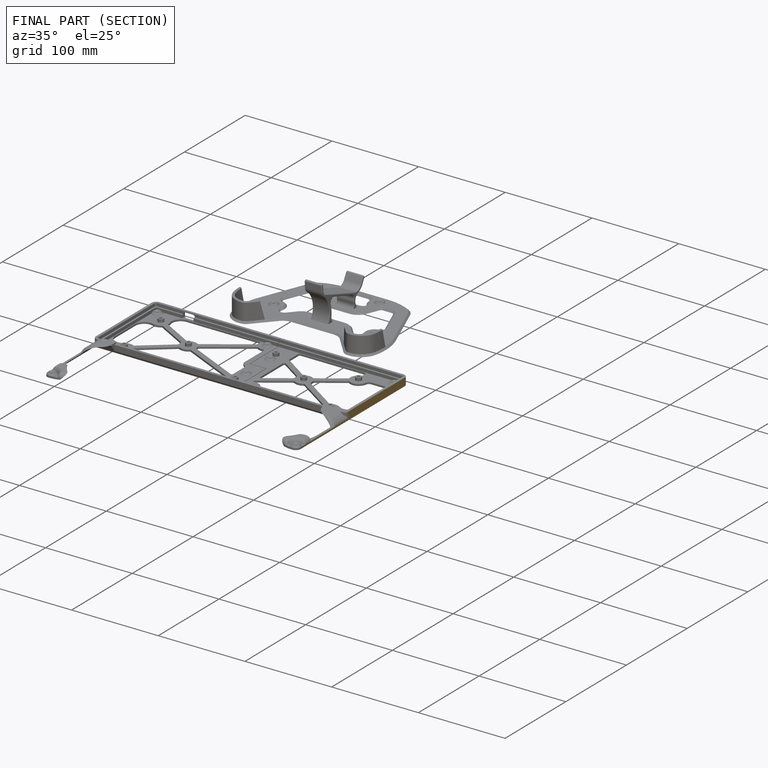
[diagram: finished part — half-section view (interior)]
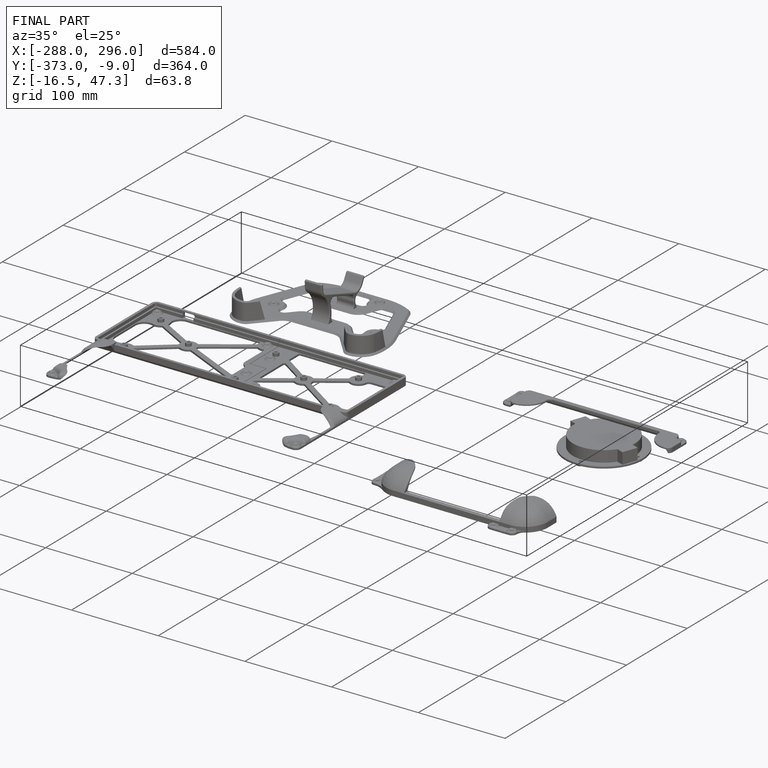
[diagram: finished part — iso view with bounding-box wireframe]
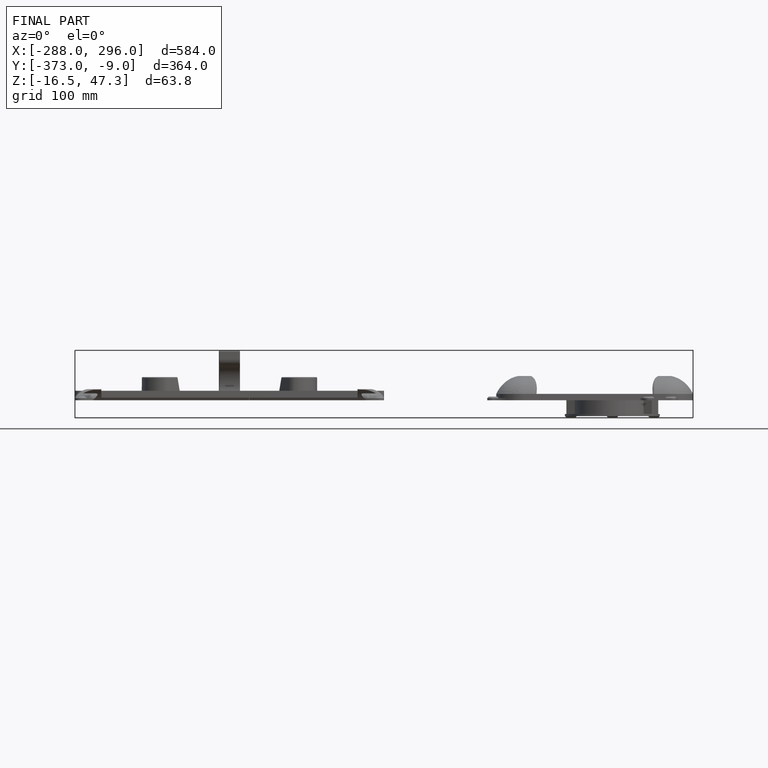
[diagram: finished part — front view with bounding-box wireframe]
